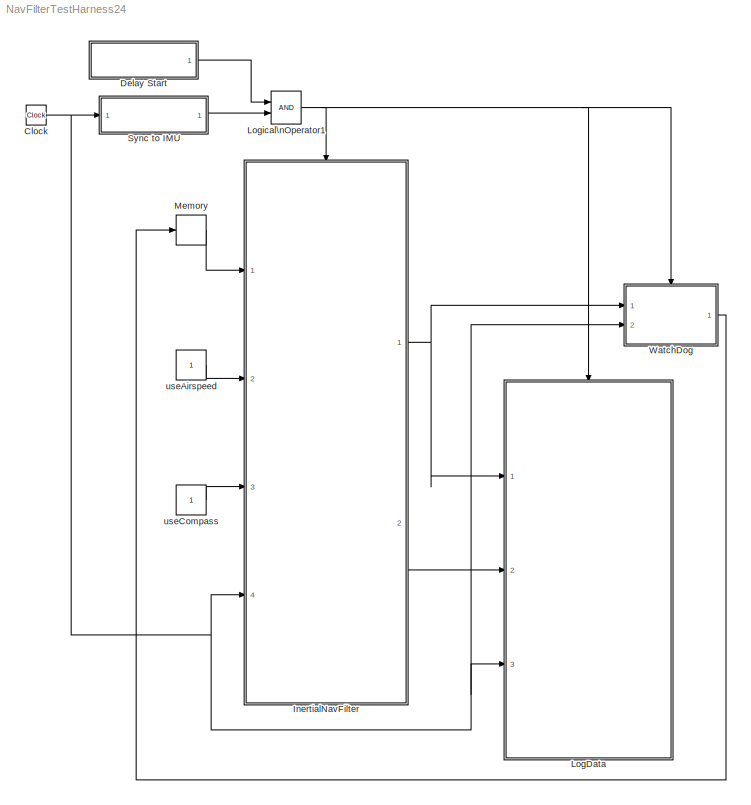
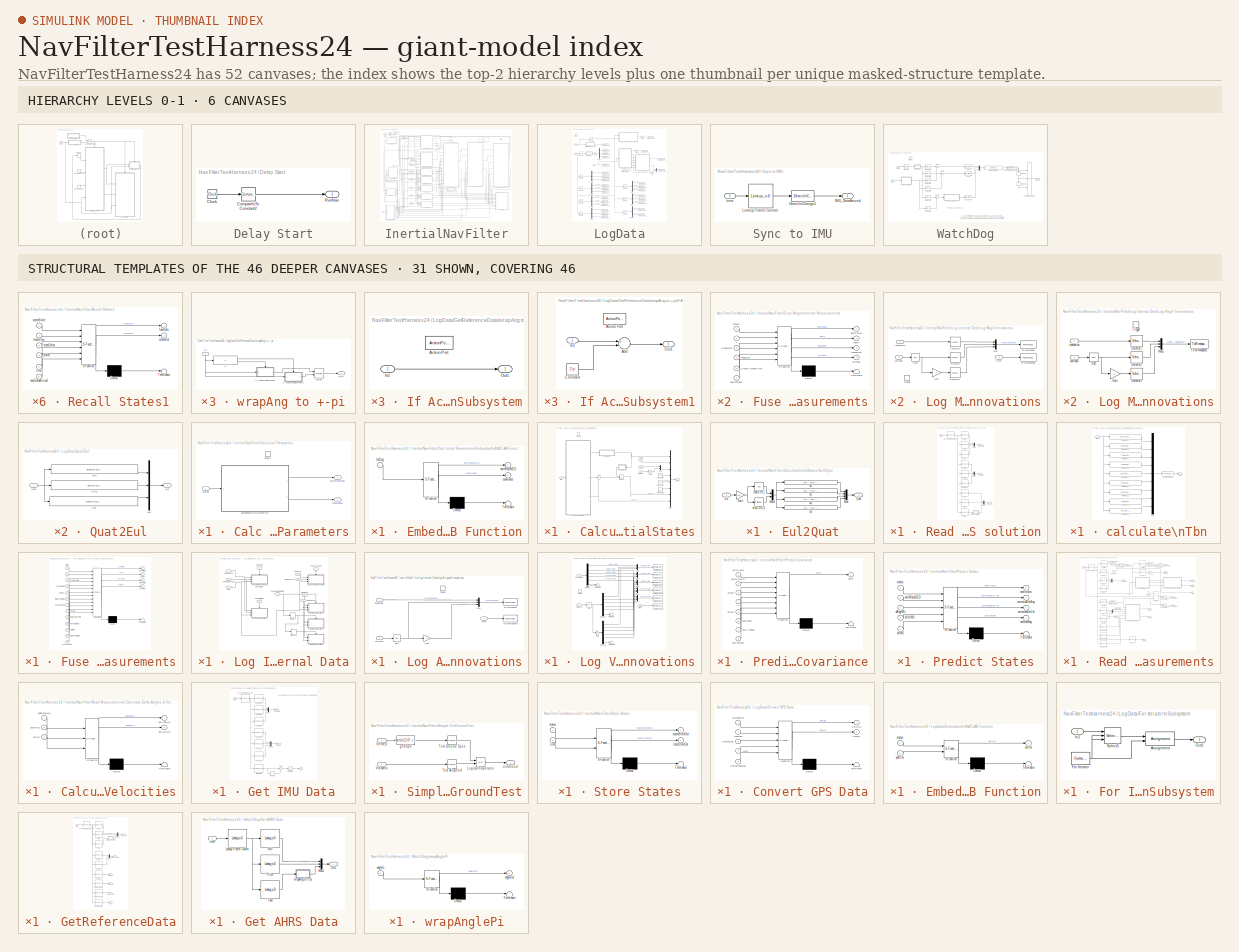
[diagram: thumbnail index - top-2 hierarchy levels (6 canvases) + 31 structural-template representatives of the remaining 46 canvases]
MODEL NavFilterTestHarness24
KIND model
BLOCK [Clock] Clock
  SID = 1708
BLOCK [SubSystem] Delay Start
  FunctionWithSeparateData = off
  MaskEnableString = on
  MaskHideContents = off
  MaskIconFrame = on
  MaskIconOpaque = on
  MaskIconRotate = none
  MaskIconUnits = autoscale
  MaskPortRotate = default
  MaskPromptString = Nav Start Time
  MaskStyleString = edit
  MaskToolTipString = on
  MaskTunableValueString = on
  MaskValueString = alignTime
  MaskVariables = navStartTime=@1;
  MaskVisibilityString = on
  MinAlgLoopOccurrences = off
  Opaque = off
  Ports = [0, 1]
  PropExecContextOutsideSubsystem = off
  RTWSystemCode = Auto
  RequestExecContextInheritance = off
  SID = 716
  TreatAsAtomicUnit = on
BLOCK [Clock] Delay Start/Clock
  SID = 370
BLOCK [Reference] Delay Start/Compare\nTo Constant2  REF=simulink/Logic and Bit\nOperations/Compare\nTo Constant
  OutDataTypeStr = boolean
  Ports = [1, 1]
  SID = 408
  SourceBlock = simulink/Logic and Bit\nOperations/Compare\nTo Constant
  SourceType = Compare To Constant
  ZeroCross = on
  const = navStartTime
  relop = >
BLOCK [Outport] Delay Start/RunNav
  IconDisplay = Port number
  SID = 717
BLOCK [SubSystem] InertialNavFilter
  FunctionWithSeparateData = off
  MaskHideContents = off
  MinAlgLoopOccurrences = off
  Opaque = off
  Ports = [4, 2, 0, 1]
  PropExecContextOutsideSubsystem = off
  RTWSystemCode = Auto
  RequestExecContextInheritance = off
  SID = 522
BLOCK [SubSystem] InertialNavFilter/Calc Initial Parameters
  FunctionWithSeparateData = off
  MaskHideContents = off
  MinAlgLoopOccurrences = off
  Opaque = off
  Ports = [1, 2, 1]
  PropExecContextOutsideSubsystem = off
  RTWSystemCode = Auto
  RequestExecContextInheritance = off
  SID = 548
BLOCK [SubSystem] InertialNavFilter/Calc Initial Parameters/Embedded\nMATLAB Function
  ErrorFcn = Stateflow.Translate.translate
  FunctionWithSeparateData = off
  MaskDescription = Embedded MATLAB block
  MaskDisplay = bgColor = Simulink.Root.ColorString2Rgb(get_param(gcbh, 'BackgroundColor')); image(imread('private/eml_membrane_16.png','png','BackgroundColor',bgColor(1:3)),'center'); disp([10 10 'calculateInitialData']);
  MaskHideContents = off
  MaskIconFrame = on
  MaskIconOpaque = off
  MaskIconRotate = none
  MaskIconUnits = normalized
  MaskPortRotate = default
  MaskSelfModifiable = on
  MaskType = Stateflow
  MinAlgLoopOccurrences = off
  Opaque = off
  PermitHierarchicalResolution = ExplicitOnly
  Ports = [1, 2]
  PropExecContextOutsideSubsystem = off
  RTWSystemCode = Auto
  RequestExecContextInheritance = off
  SFBlockType = MATLAB Function
  SID = 551
  TreatAsAtomicUnit = on
BLOCK [Demux] InertialNavFilter/Calc Initial Parameters/Embedded\nMATLAB Function/ Demux 
  Outputs = 1
  Ports = [1, 1]
  SID = 551::58
BLOCK [S-Function] InertialNavFilter/Calc Initial Parameters/Embedded\nMATLAB Function/ SFunction 
  EnableBusSupport = on
  FunctionName = sf_sfun
  PortCounts = [1 3]
  Ports = [1, 3]
  SID = 551::57
  Tag = Stateflow S-Function NavFilterTestHarness24 6
BLOCK [Terminator] InertialNavFilter/Calc Initial Parameters/Embedded\nMATLAB Function/ Terminator 
  SID = 551::60
BLOCK [Outport] InertialNavFilter/Calc Initial Parameters/Embedded\nMATLAB Function/covariance
  IconDisplay = Port number
  Port = 2
  SID = 551::7
BLOCK [Outport] InertialNavFilter/Calc Initial Parameters/Embedded\nMATLAB Function/earthRateNED
  IconDisplay = Port number
  SID = 551::34
BLOCK [Inport] InertialNavFilter/Calc Initial Parameters/Embedded\nMATLAB Function/latDeg
  IconDisplay = Port number
  SID = 551::35
BLOCK [EnablePort] InertialNavFilter/Calc Initial Parameters/Enable
  Ports = []
  SID = 1886
BLOCK [Outport] InertialNavFilter/Calc Initial Parameters/covariance
  IconDisplay = Port number
  Port = 2
  SID = 559
BLOCK [Outport] InertialNavFilter/Calc Initial Parameters/earthRateNED
  IconDisplay = Port number
  PortDimensions = 3
  SID = 561
BLOCK [Inport] InertialNavFilter/Calc Initial Parameters/latDeg
  IconDisplay = Port number
  OutDataTypeStr = single
  PortDimensions = 1
  SID = 1284
BLOCK [SubSystem] InertialNavFilter/CalculateInitialStates
  FunctionWithSeparateData = off
  MaskHideContents = off
  MinAlgLoopOccurrences = off
  Opaque = off
  Ports = [4, 1, 1]
  PropExecContextOutsideSubsystem = off
  RTWSystemCode = Auto
  RequestExecContextInheritance = off
  SID = 1549
  TreatAsAtomicUnit = on
BLOCK [Constant] InertialNavFilter/CalculateInitialStates/Constant1
  OutDataTypeStr = single
  SID = 1557
  Value = [0 0 0]
BLOCK [Constant] InertialNavFilter/CalculateInitialStates/Constant2
  OutDataTypeStr = single
  SID = 1558
  Value = [0 0 0]
BLOCK [EnablePort] InertialNavFilter/CalculateInitialStates/Enable
  Ports = []
  SID = 1556
BLOCK [SubSystem] InertialNavFilter/CalculateInitialStates/Eul2Quat
  FunctionWithSeparateData = off
  MaskHideContents = off
  MinAlgLoopOccurrences = off
  Opaque = off
  Ports = [1, 1]
  PropExecContextOutsideSubsystem = off
  RTWSystemCode = Auto
  RequestExecContextInheritance = off
  SID = 1559
BLOCK [Inport] InertialNavFilter/CalculateInitialStates/Eul2Quat/Eul
  IconDisplay = Port number
  SID = 1560
BLOCK [Gain] InertialNavFilter/CalculateInitialStates/Eul2Quat/Gain
  Gain = 0.5
  SID = 1561
BLOCK [Mux] InertialNavFilter/CalculateInitialStates/Eul2Quat/Mux
  DisplayOption = bar
  Ports = [4, 1]
  SID = 1562
BLOCK [Mux] InertialNavFilter/CalculateInitialStates/Eul2Quat/Mux1
  DisplayOption = bar
  Inputs = [3 3]
  Ports = [2, 1]
  SID = 1563
BLOCK [Outport] InertialNavFilter/CalculateInitialStates/Eul2Quat/Quat
  IconDisplay = Port number
  SID = 1570
BLOCK [Trigonometry] InertialNavFilter/CalculateInitialStates/Eul2Quat/cos(0.5*E)
  Operator = cos
  Ports = [1, 1]
  SID = 1564
BLOCK [Fcn] InertialNavFilter/CalculateInitialStates/Eul2Quat/q0
  Expr = u[1] * u[2] * u[3] + u[4] * u[5] * u[6]
  SID = 1565
BLOCK [Fcn] InertialNavFilter/CalculateInitialStates/Eul2Quat/q1
  Expr = u[4] * u[2] * u[3] - u[1] * u[5] * u[6]
  SID = 1566
BLOCK [Fcn] InertialNavFilter/CalculateInitialStates/Eul2Quat/q2
  Expr = u[1] * u[5] * u[3] + u[4] * u[2] * u[6]
  SID = 1567
BLOCK [Fcn] InertialNavFilter/CalculateInitialStates/Eul2Quat/q3
  Expr = u[1] * u[2] * u[6] - u[4] * u[5] * u[3]
  SID = 1568
BLOCK [Trigonometry] InertialNavFilter/CalculateInitialStates/Eul2Quat/sin(0.5*E)1
  Ports = [1, 1]
  SID = 1569
BLOCK [Gain] InertialNavFilter/CalculateInitialStates/Gain
  Gain = -1
  OutDataTypeStr = Inherit: Inherit via internal rule
  ParamDataTypeStr = Inherit: Inherit via internal rule
  SID = 1571
  SaturateOnIntegerOverflow = off
BLOCK [Inport] InertialNavFilter/CalculateInitialStates/HgtMea
  IconDisplay = Port number
  SID = 1551
BLOCK [Mux] InertialNavFilter/CalculateInitialStates/Mux
  DisplayOption = bar
  Inputs = 2
  Ports = [2, 1]
  SID = 1572
BLOCK [Mux] InertialNavFilter/CalculateInitialStates/Mux1
  DisplayOption = bar
  Inputs = 8
  Ports = [8, 1]
  SID = 1573
BLOCK [Inport] InertialNavFilter/CalculateInitialStates/PosNE
  IconDisplay = Port number
  Port = 3
  SID = 1555
BLOCK [Product] InertialNavFilter/CalculateInitialStates/Product
  InputSameDT = off
  Multiplication = Matrix(*)
  OutDataTypeStr = Inherit: Inherit via internal rule
  Ports = [2, 1]
  SID = 1574
  SaturateOnIntegerOverflow = off
BLOCK [SubSystem] InertialNavFilter/CalculateInitialStates/Read AHRS solution
  FunctionWithSeparateData = off
  MaskHideContents = off
  MinAlgLoopOccurrences = off
  Opaque = off
  Ports = [1, 3]
  PropExecContextOutsideSubsystem = off
  RTWSystemCode = Auto
  RequestExecContextInheritance = off
  SID = 1733
  TreatAsAtomicUnit = on
BLOCK [Outport] InertialNavFilter/CalculateInitialStates/Read AHRS solution/EulAHRS
  IconDisplay = Port number
  OutDataTypeStr = single
  SID = 1788
BLOCK [Lookup_n-D] InertialNavFilter/CalculateInitialStates/Read AHRS solution/Lookup Frame Counter
  BeginIndexSearchUsingPreviousIndexResult = on
  BreakpointsForDimension1 = IMUtime
  DiagnosticForOutOfRangeInput = Error
  InterpMethod = Flat
  NumberOfTableDimensions = 1
  Ports = [1, 1]
  RndMeth = Simplest
  SID = 1753
  Table = IMUframe
BLOCK [Outport] InertialNavFilter/CalculateInitialStates/Read AHRS solution/MagBias
  IconDisplay = Port number
  OutDataTypeStr = single
  Port = 3
  SID = 1789
BLOCK [Lookup_n-D] InertialNavFilter/CalculateInitialStates/Read AHRS solution/MagBiasX
  BeginIndexSearchUsingPreviousIndexResult = on
  BreakpointsForDimension1 = MAGframe
  InterpMethod = Flat
  NumberOfTableDimensions = 1
  OutDataTypeStr = single
  Ports = [1, 1]
  RndMeth = Simplest
  SID = 1754
  Table = MagBiasX
BLOCK [Lookup_n-D] InertialNavFilter/CalculateInitialStates/Read AHRS solution/MagBiasY
  BeginIndexSearchUsingPreviousIndexResult = on
  BreakpointsForDimension1 = MAGframe
  InterpMethod = Flat
  NumberOfTableDimensions = 1
  OutDataTypeStr = single
  Ports = [1, 1]
  RndMeth = Simplest
  SID = 1755
  Table = MagBiasY
BLOCK [Lookup_n-D] InertialNavFilter/CalculateInitialStates/Read AHRS solution/MagBiasZ
  BeginIndexSearchUsingPreviousIndexResult = on
  BreakpointsForDimension1 = MAGframe
  InterpMethod = Flat
  NumberOfTableDimensions = 1
  OutDataTypeStr = single
  Ports = [1, 1]
  RndMeth = Simplest
  SID = 1756
  Table = MagBiasZ
BLOCK [Outport] InertialNavFilter/CalculateInitialStates/Read AHRS solution/MagData
  IconDisplay = Port number
  OutDataTypeStr = single
  Port = 2
  SID = 1796
BLOCK [Lookup_n-D] InertialNavFilter/CalculateInitialStates/Read AHRS solution/MagX
  BeginIndexSearchUsingPreviousIndexResult = on
  BreakpointsForDimension1 = MAGframe
  InterpMethod = Flat
  NumberOfTableDimensions = 1
  OutDataTypeStr = single
  Ports = [1, 1]
  RndMeth = Simplest
  SID = 1757
  Table = MagX
BLOCK [Lookup_n-D] InertialNavFilter/CalculateInitialStates/Read AHRS solution/MagY
  BeginIndexSearchUsingPreviousIndexResult = on
  BreakpointsForDimension1 = MAGframe
  InterpMethod = Flat
  NumberOfTableDimensions = 1
  OutDataTypeStr = single
  Ports = [1, 1]
  RndMeth = Simplest
  SID = 1758
  Table = MagY
BLOCK [Lookup_n-D] InertialNavFilter/CalculateInitialStates/Read AHRS solution/MagZ
  BeginIndexSearchUsingPreviousIndexResult = on
  BreakpointsForDimension1 = MAGframe
  InterpMethod = Flat
  NumberOfTableDimensions = 1
  OutDataTypeStr = single
  Ports = [1, 1]
  RndMeth = Simplest
  SID = 1759
  Table = MagZ
BLOCK [Mux] InertialNavFilter/CalculateInitialStates/Read AHRS solution/Mux4
  DisplayOption = bar
  Inputs = 3
  Ports = [3, 1]
  SID = 1763
BLOCK [Mux] InertialNavFilter/CalculateInitialStates/Read AHRS solution/Mux5
  DisplayOption = bar
  Inputs = 3
  Ports = [3, 1]
  SID = 1764
BLOCK [Mux] InertialNavFilter/CalculateInitialStates/Read AHRS solution/Mux6
  DisplayOption = bar
  Inputs = 3
  Ports = [3, 1]
  SID = 1765
BLOCK [Lookup_n-D] InertialNavFilter/CalculateInitialStates/Read AHRS solution/Pitch
  BeginIndexSearchUsingPreviousIndexResult = on
  BreakpointsForDimension1 = ATTframe
  InterpMethod = Flat
  NumberOfTableDimensions = 1
  OutDataTypeStr = single
  Ports = [1, 1]
  RndMeth = Simplest
  SID = 1767
  Table = Pitch
BLOCK [Lookup_n-D] InertialNavFilter/CalculateInitialStates/Read AHRS solution/Roll
  BeginIndexSearchUsingPreviousIndexResult = on
  BreakpointsForDimension1 = ATTframe
  InterpMethod = Flat
  NumberOfTableDimensions = 1
  OutDataTypeStr = single
  Ports = [1, 1]
  RndMeth = Simplest
  SID = 1769
  Table = Roll
BLOCK [Lookup_n-D] InertialNavFilter/CalculateInitialStates/Read AHRS solution/Yaw
  BeginIndexSearchUsingPreviousIndexResult = on
  BreakpointsForDimension1 = ATTframe
  InterpMethod = Flat
  NumberOfTableDimensions = 1
  OutDataTypeStr = single
  Ports = [1, 1]
  RndMeth = Simplest
  SID = 1772
  Table = Yaw
BLOCK [Inport] InertialNavFilter/CalculateInitialStates/Read AHRS solution/time
  IconDisplay = Port number
  SID = 1734
BLOCK [SubSystem] InertialNavFilter/CalculateInitialStates/Read AHRS solution/wrapAng to +-pi
  FunctionWithSeparateData = off
  MaskHideContents = off
  MinAlgLoopOccurrences = off
  Opaque = off
  Ports = [1, 1]
  PropExecContextOutsideSubsystem = off
  RTWSystemCode = Auto
  RequestExecContextInheritance = off
  SID = 1773
BLOCK [If] InertialNavFilter/CalculateInitialStates/Read AHRS solution/wrapAng to +-pi/If
  IfExpression = u1 > single(pi)
  Ports = [1, 2]
  SID = 1775
BLOCK [SubSystem] InertialNavFilter/CalculateInitialStates/Read AHRS solution/wrapAng to +-pi/If Action\nSubsystem
  FunctionWithSeparateData = off
  MaskHideContents = off
  MinAlgLoopOccurrences = off
  Opaque = off
  Ports = [1, 1, 0, 0, 0, 0, 0, 1]
  PropExecContextOutsideSubsystem = off
  RTWSystemCode = Auto
  RequestExecContextInheritance = off
  SID = 1776
  TreatAsAtomicUnit = on
BLOCK [ActionPort] InertialNavFilter/CalculateInitialStates/Read AHRS solution/wrapAng to +-pi/If Action\nSubsystem/Action Port
  ActionType = else
  SID = 1778
BLOCK [Inport] InertialNavFilter/CalculateInitialStates/Read AHRS solution/wrapAng to +-pi/If Action\nSubsystem/In1
  IconDisplay = Port number
  SID = 1777
BLOCK [Outport] InertialNavFilter/CalculateInitialStates/Read AHRS solution/wrapAng to +-pi/If Action\nSubsystem/Out1
  IconDisplay = Port number
  SID = 1779
BLOCK [SubSystem] InertialNavFilter/CalculateInitialStates/Read AHRS solution/wrapAng to +-pi/If Action\nSubsystem1
  FunctionWithSeparateData = off
  MaskHideContents = off
  MinAlgLoopOccurrences = off
  Opaque = off
  Ports = [1, 1, 0, 0, 0, 0, 0, 1]
  PropExecContextOutsideSubsystem = off
  RTWSystemCode = Auto
  RequestExecContextInheritance = off
  SID = 1780
  TreatAsAtomicUnit = on
BLOCK [ActionPort] InertialNavFilter/CalculateInitialStates/Read AHRS solution/wrapAng to +-pi/If Action\nSubsystem1/Action Port
  ActionType = then
  SID = 1782
BLOCK [Sum] InertialNavFilter/CalculateInitialStates/Read AHRS solution/wrapAng to +-pi/If Action\nSubsystem1/Add
  InputSameDT = off
  Inputs = +-
  OutDataTypeStr = Inherit: Inherit via internal rule
  Ports = [2, 1]
  SID = 1783
  SaturateOnIntegerOverflow = off
BLOCK [Constant] InertialNavFilter/CalculateInitialStates/Read AHRS solution/wrapAng to +-pi/If Action\nSubsystem1/Constant
  OutDataTypeStr = single
  SID = 1784
  Value = 2*pi
BLOCK [Inport] InertialNavFilter/CalculateInitialStates/Read AHRS solution/wrapAng to +-pi/If Action\nSubsystem1/In1
  IconDisplay = Port number
  SID = 1781
BLOCK [Outport] InertialNavFilter/CalculateInitialStates/Read AHRS solution/wrapAng to +-pi/If Action\nSubsystem1/Out1
  IconDisplay = Port number
  SID = 1785
BLOCK [Inport] InertialNavFilter/CalculateInitialStates/Read AHRS solution/wrapAng to +-pi/In1
  IconDisplay = Port number
  OutDataTypeStr = single
  SID = 1774
BLOCK [Merge] InertialNavFilter/CalculateInitialStates/Read AHRS solution/wrapAng to +-pi/Merge
  Ports = [2, 1]
  SID = 1786
BLOCK [Outport] InertialNavFilter/CalculateInitialStates/Read AHRS solution/wrapAng to +-pi/Out1
  IconDisplay = Port number
  OutDataTypeStr = single
  SID = 1787
BLOCK [Outport] InertialNavFilter/CalculateInitialStates/States
  IconDisplay = Port number
  SID = 1591
BLOCK [Sum] InertialNavFilter/CalculateInitialStates/Sum
  IconShape = round
  InputSameDT = off
  Inputs = |+-
  OutDataTypeStr = Inherit: Inherit via internal rule
  Ports = [2, 1]
  SID = 1575
  SaturateOnIntegerOverflow = off
BLOCK [Inport] InertialNavFilter/CalculateInitialStates/VelNED
  IconDisplay = Port number
  OutDataTypeStr = single
  Port = 2
  SID = 1554
BLOCK [SubSystem] InertialNavFilter/CalculateInitialStates/calculate\nTbn
  FunctionWithSeparateData = off
  MaskHideContents = off
  MinAlgLoopOccurrences = off
  Opaque = off
  Ports = [1, 1]
  PropExecContextOutsideSubsystem = off
  RTWSystemCode = Auto
  RequestExecContextInheritance = off
  SID = 1576
BLOCK [Reshape] InertialNavFilter/CalculateInitialStates/calculate\nTbn/Asssign to Rows
  OutputDimensionality = Customize
  OutputDimensions = [3,3]
  Ports = [1, 1]
  SID = 1578
BLOCK [Mux] InertialNavFilter/CalculateInitialStates/calculate\nTbn/Mux
  DisplayOption = bar
  Inputs = 9
  Ports = [9, 1]
  SID = 1579
BLOCK [Inport] InertialNavFilter/CalculateInitialStates/calculate\nTbn/Quat
  IconDisplay = Port number
  PortDimensions = 4
  SID = 1577
BLOCK [Outport] InertialNavFilter/CalculateInitialStates/calculate\nTbn/Tbn
  IconDisplay = Port number
  SID = 1589
BLOCK [Fcn] InertialNavFilter/CalculateInitialStates/calculate\nTbn/element 1_1
  Expr = u(1)^2+u(2)^2-u(3)^2-u(4)^2
  SID = 1580
BLOCK [Fcn] InertialNavFilter/CalculateInitialStates/calculate\nTbn/element 1_2
  Expr = 2*(u(2)*u(3)-u(1)*u(4))
  SID = 1581
BLOCK [Fcn] InertialNavFilter/CalculateInitialStates/calculate\nTbn/element 1_3
  Expr = 2*(u(2)*u(4)+u(1)*u(3))
  SID = 1582
BLOCK [Fcn] InertialNavFilter/CalculateInitialStates/calculate\nTbn/element 2_1
  Expr = 2*(u(2)*u(3)+u(1)*u(4))
  SID = 1583
BLOCK [Fcn] InertialNavFilter/CalculateInitialStates/calculate\nTbn/element 2_2
  Expr = u(1)^2-u(2)^2+u(3)^2-u(4)^2
  SID = 1584
BLOCK [Fcn] InertialNavFilter/CalculateInitialStates/calculate\nTbn/element 2_3
  Expr = 2*(u(3)*u(4)-u(1)*u(2))
  SID = 1585
BLOCK [Fcn] InertialNavFilter/CalculateInitialStates/calculate\nTbn/element 3_1
  Expr = 2*(u(2)*u(4)-u(1)*u(3))
  SID = 1586
BLOCK [Fcn] InertialNavFilter/CalculateInitialStates/calculate\nTbn/element 3_2
  Expr = 2*(u(3)*u(4)+u(1)*u(2))
  SID = 1587
BLOCK [Fcn] InertialNavFilter/CalculateInitialStates/calculate\nTbn/element 3_3
  Expr = u(1)^2-u(2)^2-u(3)^2+u(4)^2
  SID = 1588
BLOCK [Inport] InertialNavFilter/CalculateInitialStates/time
  IconDisplay = Port number
  Port = 4
  SID = 1800
BLOCK [Constant] InertialNavFilter/CalculateInitialStates/windVelNE
  OutDataTypeStr = single
  SID = 1590
  Value = [0 0]
BLOCK [Constant] InertialNavFilter/Constant
  OutDataTypeStr = boolean
  SID = 1870
  Value = 0
BLOCK [Outport] InertialNavFilter/Covariance
  IconDisplay = Port number
  OutDataTypeStr = single
  Port = 2
  PortDimensions = [24,24]
  SID = 889
BLOCK [Reference] InertialNavFilter/DocBlock  REF=simulink/Model-Wide\nUtilities/DocBlock
  DocumentType = Text
  Ports = []
  SID = 1312
  SourceBlock = simulink/Model-Wide\nUtilities/DocBlock
  SourceType = DocBlock
  UserData = DataTag0
  UserDataPersistent = on
BLOCK [SubSystem] InertialNavFilter/Fuse Magnetometer Measurements
  ErrorFcn = Stateflow.Translate.translate
  FunctionWithSeparateData = off
  MaskDescription = Embedded MATLAB block
  MaskDisplay = bgColor = Simulink.Root.ColorString2Rgb(get_param(gcbh, 'BackgroundColor')); image(imread('private/eml_membrane_16.png','png','BackgroundColor',bgColor(1:3)),'center'); disp([10 10 'FuseMagnetometer']);
  MaskHideContents = off
  MaskIconFrame = on
  MaskIconOpaque = off
  MaskIconRotate = none
  MaskIconUnits = normalized
  MaskPortRotate = default
  MaskSelfModifiable = on
  MaskType = Stateflow
  MinAlgLoopOccurrences = off
  Opaque = off
  PermitHierarchicalResolution = ExplicitOnly
  Ports = [6, 4]
  PropExecContextOutsideSubsystem = off
  RTWSystemCode = Auto
  RequestExecContextInheritance = off
  SFBlockType = MATLAB Function
  SID = 830
  TreatAsAtomicUnit = on
BLOCK [Demux] InertialNavFilter/Fuse Magnetometer Measurements/ Demux 
  Outputs = 1
  Ports = [1, 1]
  SID = 830::100
BLOCK [S-Function] InertialNavFilter/Fuse Magnetometer Measurements/ SFunction 
  EnableBusSupport = on
  FunctionName = sf_sfun
  PortCounts = [6 5]
  Ports = [6, 5]
  SID = 830::99
  Tag = Stateflow S-Function NavFilterTestHarness24 9
BLOCK [Terminator] InertialNavFilter/Fuse Magnetometer Measurements/ Terminator 
  SID = 830::102
BLOCK [Inport] InertialNavFilter/Fuse Magnetometer Measurements/FuseData
  IconDisplay = Port number
  Port = 3
  SID = 830::18
BLOCK [Inport] InertialNavFilter/Fuse Magnetometer Measurements/MagData
  IconDisplay = Port number
  Port = 4
  SID = 830::20
BLOCK [Inport] InertialNavFilter/Fuse Magnetometer Measurements/P
  IconDisplay = Port number
  Port = 2
  SID = 830::3
BLOCK [Inport] InertialNavFilter/Fuse Magnetometer Measurements/StatesAtMeasTime
  IconDisplay = Port number
  Port = 5
  SID = 830::98
BLOCK [Outport] InertialNavFilter/Fuse Magnetometer Measurements/innovation
  IconDisplay = Port number
  Port = 3
  SID = 830::43
BLOCK [Outport] InertialNavFilter/Fuse Magnetometer Measurements/nextP
  IconDisplay = Port number
  Port = 2
  SID = 830::10
BLOCK [Outport] InertialNavFilter/Fuse Magnetometer Measurements/nextStates
  IconDisplay = Port number
  SID = 830::9
BLOCK [Inport] InertialNavFilter/Fuse Magnetometer Measurements/states
  IconDisplay = Port number
  SID = 830::2
BLOCK [Inport] InertialNavFilter/Fuse Magnetometer Measurements/useCompass
  IconDisplay = Port number
  Port = 6
  SID = 830::93
BLOCK [Outport] InertialNavFilter/Fuse Magnetometer Measurements/varInnov
  IconDisplay = Port number
  Port = 4
  SID = 830::82
BLOCK [SubSystem] InertialNavFilter/Fuse True Airspeed Measurements
  ErrorFcn = Stateflow.Translate.translate
  FunctionWithSeparateData = off
  MaskDescription = Embedded MATLAB block
  MaskDisplay = bgColor = Simulink.Root.ColorString2Rgb(get_param(gcbh, 'BackgroundColor')); image(imread('private/eml_membrane_16.png','png','BackgroundColor',bgColor(1:3)),'center'); disp([10 10 'FuseAirspeed']);
  MaskHideContents = off
  MaskIconFrame = on
  MaskIconOpaque = off
  MaskIconRotate = none
  MaskIconUnits = normalized
  MaskPortRotate = default
  MaskSelfModifiable = on
  MaskType = Stateflow
  MinAlgLoopOccurrences = off
  Opaque = off
  PermitHierarchicalResolution = ExplicitOnly
  Ports = [6, 4]
  PropExecContextOutsideSubsystem = off
  RTWSystemCode = Auto
  RequestExecContextInheritance = off
  SFBlockType = MATLAB Function
  SID = 710
  TreatAsAtomicUnit = on
BLOCK [Demux] InertialNavFilter/Fuse True Airspeed Measurements/ Demux 
  Outputs = 1
  Ports = [1, 1]
  SID = 710::98
BLOCK [S-Function] InertialNavFilter/Fuse True Airspeed Measurements/ SFunction 
  EnableBusSupport = on
  FunctionName = sf_sfun
  PortCounts = [6 5]
  Ports = [6, 5]
  SID = 710::97
  Tag = Stateflow S-Function NavFilterTestHarness24 4
BLOCK [Terminator] InertialNavFilter/Fuse True Airspeed Measurements/ Terminator 
  SID = 710::100
BLOCK [Inport] InertialNavFilter/Fuse True Airspeed Measurements/FuseData
  IconDisplay = Port number
  Port = 3
  SID = 710::18
BLOCK [Inport] InertialNavFilter/Fuse True Airspeed Measurements/P
  IconDisplay = Port number
  Port = 2
  SID = 710::3
BLOCK [Inport] InertialNavFilter/Fuse True Airspeed Measurements/StatesAtMeasTime
  IconDisplay = Port number
  Port = 5
  SID = 710::82
BLOCK [Inport] InertialNavFilter/Fuse True Airspeed Measurements/VtasMea
  IconDisplay = Port number
  Port = 4
  SID = 710::20
BLOCK [Outport] InertialNavFilter/Fuse True Airspeed Measurements/innovation
  IconDisplay = Port number
  Port = 3
  SID = 710::43
BLOCK [Outport] InertialNavFilter/Fuse True Airspeed Measurements/nextP
  IconDisplay = Port number
  Port = 2
  SID = 710::10
BLOCK [Outport] InertialNavFilter/Fuse True Airspeed Measurements/nextStates
  IconDisplay = Port number
  SID = 710::9
BLOCK [Inport] InertialNavFilter/Fuse True Airspeed Measurements/states
  IconDisplay = Port number
  SID = 710::2
BLOCK [Inport] InertialNavFilter/Fuse True Airspeed Measurements/useAirspeed
  IconDisplay = Port number
  Port = 6
  SID = 710::92
BLOCK [Outport] InertialNavFilter/Fuse True Airspeed Measurements/varInnov
  IconDisplay = Port number
  Port = 4
  SID = 710::83
BLOCK [SubSystem] InertialNavFilter/Fuse Vel Pos Measurements
  ErrorFcn = Stateflow.Translate.translate
  FunctionWithSeparateData = off
  MaskDescription = Embedded MATLAB block
  MaskDisplay = bgColor = Simulink.Root.ColorString2Rgb(get_param(gcbh, 'BackgroundColor')); image(imread('private/eml_membrane_16.png','png','BackgroundColor',bgColor(1:3)),'center'); disp([10 10 'FuseVelPosNED']);
  MaskHideContents = off
  MaskIconFrame = on
  MaskIconOpaque = off
  MaskIconRotate = none
  MaskIconUnits = normalized
  MaskPortRotate = default
  MaskSelfModifiable = on
  MaskType = Stateflow
  MinAlgLoopOccurrences = off
  Opaque = off
  PermitHierarchicalResolution = ExplicitOnly
  Ports = [13, 4]
  PropExecContextOutsideSubsystem = off
  RTWSystemCode = Auto
  RequestExecContextInheritance = off
  SFBlockType = MATLAB Function
  SID = 645
  TreatAsAtomicUnit = on
BLOCK [Demux] InertialNavFilter/Fuse Vel Pos Measurements/ Demux 
  Outputs = 1
  Ports = [1, 1]
  SID = 645::110
BLOCK [S-Function] InertialNavFilter/Fuse Vel Pos Measurements/ SFunction 
  EnableBusSupport = on
  FunctionName = sf_sfun
  PortCounts = [13 5]
  Ports = [13, 5]
  SID = 645::109
  Tag = Stateflow S-Function NavFilterTestHarness24 19
BLOCK [Terminator] InertialNavFilter/Fuse Vel Pos Measurements/ Terminator 
  SID = 645::112
BLOCK [Inport] InertialNavFilter/Fuse Vel Pos Measurements/FuseHgtData
  IconDisplay = Port number
  Port = 10
  SID = 645::94
BLOCK [Inport] InertialNavFilter/Fuse Vel Pos Measurements/FusePosData
  IconDisplay = Port number
  Port = 7
  SID = 645::114
BLOCK [Inport] InertialNavFilter/Fuse Vel Pos Measurements/FuseVelData
  IconDisplay = Port number
  Port = 4
  SID = 645::85
BLOCK [Inport] InertialNavFilter/Fuse Vel Pos Measurements/HgtMea
  IconDisplay = Port number
  Port = 11
  SID = 645::93
BLOCK [Inport] InertialNavFilter/Fuse Vel Pos Measurements/P
  IconDisplay = Port number
  Port = 2
  SID = 645::84
BLOCK [Inport] InertialNavFilter/Fuse Vel Pos Measurements/PosNE
  IconDisplay = Port number
  Port = 8
  SID = 645::87
BLOCK [Inport] InertialNavFilter/Fuse Vel Pos Measurements/StatesAtHgtTime
  IconDisplay = Port number
  Port = 12
  SID = 645::95
BLOCK [Inport] InertialNavFilter/Fuse Vel Pos Measurements/StatesAtPosTime
  IconDisplay = Port number
  Port = 9
  SID = 645::115
BLOCK [Inport] InertialNavFilter/Fuse Vel Pos Measurements/StatesAtVelTime
  IconDisplay = Port number
  Port = 6
  SID = 645::88
BLOCK [Inport] InertialNavFilter/Fuse Vel Pos Measurements/VelNED
  IconDisplay = Port number
  Port = 5
  SID = 645::86
BLOCK [Inport] InertialNavFilter/Fuse Vel Pos Measurements/accNavMag
  IconDisplay = Port number
  Port = 3
  SID = 645::96
BLOCK [Outport] InertialNavFilter/Fuse Vel Pos Measurements/innovation
  IconDisplay = Port number
  Port = 3
  SID = 645::91
BLOCK [Outport] InertialNavFilter/Fuse Vel Pos Measurements/nextP
  IconDisplay = Port number
  Port = 2
  SID = 645::90
BLOCK [Outport] InertialNavFilter/Fuse Vel Pos Measurements/nextStates
  IconDisplay = Port number
  SID = 645::89
BLOCK [Inport] InertialNavFilter/Fuse Vel Pos Measurements/states
  IconDisplay = Port number
  SID = 645::83
BLOCK [Inport] InertialNavFilter/Fuse Vel Pos Measurements/useAirspeed
  IconDisplay = Port number
  Port = 13
  SID = 645::113
BLOCK [Outport] InertialNavFilter/Fuse Vel Pos Measurements/varInnov
  IconDisplay = Port number
  Port = 4
  SID = 645::92
BLOCK [SubSystem] InertialNavFilter/Log Internal Data
  FunctionWithSeparateData = off
  MaskHideContents = off
  MinAlgLoopOccurrences = off
  Opaque = off
  Ports = [11]
  PropExecContextOutsideSubsystem = off
  RTWSystemCode = Auto
  RequestExecContextInheritance = off
  SID = 1432
BLOCK [Inport] InertialNavFilter/Log Internal Data/FuseAirspeed
  IconDisplay = Port number
  Port = 8
  SID = 1437
BLOCK [Inport] InertialNavFilter/Log Internal Data/FuseAltimeter
  IconDisplay = Port number
  Port = 2
  SID = 1443
BLOCK [Inport] InertialNavFilter/Log Internal Data/FuseGps
  IconDisplay = Port number
  SID = 1441
BLOCK [Inport] InertialNavFilter/Log Internal Data/FuseMagnetometer
  IconDisplay = Port number
  Port = 5
  SID = 1438
BLOCK [SubSystem] InertialNavFilter/Log Internal Data/Log Airspeed Innovations
  FunctionWithSeparateData = off
  MaskHideContents = off
  MinAlgLoopOccurrences = off
  Opaque = off
  Ports = [3, 0, 0, 1]
  PropExecContextOutsideSubsystem = off
  RTWSystemCode = Auto
  RequestExecContextInheritance = off
  SID = 763
BLOCK [Gain] InertialNavFilter/Log Internal Data/Log Airspeed Innovations/Gain
  Gain = -1
  OutDataTypeStr = Inherit: Inherit via internal rule
  ParamDataTypeStr = Inherit: Inherit via internal rule
  SID = 784
  SaturateOnIntegerOverflow = off
BLOCK [Mux] InertialNavFilter/Log Internal Data/Log Airspeed Innovations/Mux
  DisplayOption = bar
  Inputs = 3
  Ports = [3, 1]
  SID = 781
BLOCK [Sqrt] InertialNavFilter/Log Internal Data/Log Airspeed Innovations/Sqrt
  SID = 783
BLOCK [ToWorkspace] InertialNavFilter/Log Internal Data/Log Airspeed Innovations/To Workspace
  MaxDataPoints = inf
  Ports = [1]
  SID = 845
  SampleTime = -1
  VariableName = innovVtas
BLOCK [ToWorkspace] InertialNavFilter/Log Internal Data/Log Airspeed Innovations/To Workspace6
  MaxDataPoints = inf
  Ports = [1]
  SID = 885
  SampleTime = -1
  VariableName = time3
BLOCK [TriggerPort] InertialNavFilter/Log Internal Data/Log Airspeed Innovations/Trigger
  PortDimensions = 1
  Ports = []
  SID = 765
  StatesWhenEnabling = held
BLOCK [Inport] InertialNavFilter/Log Internal Data/Log Airspeed Innovations/innovation
  IconDisplay = Port number
  SID = 764
BLOCK [Inport] InertialNavFilter/Log Internal Data/Log Airspeed Innovations/time
  IconDisplay = Port number
  Port = 3
  SID = 884
BLOCK [Inport] InertialNavFilter/Log Internal Data/Log Airspeed Innovations/varInnov
  IconDisplay = Port number
  Port = 2
  SID = 780
BLOCK [SubSystem] InertialNavFilter/Log Internal Data/Log MagX Innovations
  FunctionWithSeparateData = off
  MaskHideContents = off
  MinAlgLoopOccurrences = off
  Opaque = off
  Ports = [3, 0, 0, 1]
  PropExecContextOutsideSubsystem = off
  RTWSystemCode = Auto
  RequestExecContextInheritance = off
  SID = 785
BLOCK [Gain] InertialNavFilter/Log Internal Data/Log MagX Innovations/Gain
  Gain = -1
  OutDataTypeStr = Inherit: Inherit via internal rule
  ParamDataTypeStr = Inherit: Inherit via internal rule
  SID = 792
  SaturateOnIntegerOverflow = off
BLOCK [Mux] InertialNavFilter/Log Internal Data/Log MagX Innovations/Mux
  DisplayOption = bar
  Inputs = 3
  Ports = [3, 1]
  SID = 793
BLOCK [Selector] InertialNavFilter/Log Internal Data/Log MagX Innovations/Selector
  IndexOptions = Index vector (dialog)
  Indices = 1
  InputPortWidth = 3
  OutputSizes = 1
  Ports = [1, 1]
  SID = 1349
BLOCK [Selector] InertialNavFilter/Log Internal Data/Log MagX Innovations/Selector1
  IndexOptions = Index vector (dialog)
  Indices = 1
  InputPortWidth = 3
  OutputSizes = 1
  Ports = [1, 1]
  SID = 1350
BLOCK [Selector] InertialNavFilter/Log Internal Data/Log MagX Innovations/Selector2
  IndexOptions = Index vector (dialog)
  Indices = 1
  InputPortWidth = 3
  OutputSizes = 1
  Ports = [1, 1]
  SID = 1351
BLOCK [Sqrt] InertialNavFilter/Log Internal Data/Log MagX Innovations/Sqrt
  SID = 800
BLOCK [ToWorkspace] InertialNavFilter/Log Internal Data/Log MagX Innovations/To Workspace
  MaxDataPoints = inf
  Ports = [1]
  SID = 842
  SampleTime = -1
  VariableName = innovMagX
BLOCK [ToWorkspace] InertialNavFilter/Log Internal Data/Log MagX Innovations/To Workspace6
  MaxDataPoints = inf
  Ports = [1]
  SID = 878
  SampleTime = -1
  VariableName = time2
BLOCK [TriggerPort] InertialNavFilter/Log Internal Data/Log MagX Innovations/Trigger
  PortDimensions = 1
  Ports = []
  SID = 788
  StatesWhenEnabling = held
BLOCK [Inport] InertialNavFilter/Log Internal Data/Log MagX Innovations/innovation
  IconDisplay = Port number
  SID = 786
BLOCK [Inport] InertialNavFilter/Log Internal Data/Log MagX Innovations/time
  IconDisplay = Port number
  Port = 3
  SID = 881
BLOCK [Inport] InertialNavFilter/Log Internal Data/Log MagX Innovations/varInnov
  IconDisplay = Port number
  Port = 2
  SID = 787
BLOCK [SubSystem] InertialNavFilter/Log Internal Data/Log MagY Innovations
  FunctionWithSeparateData = off
  MaskHideContents = off
  MinAlgLoopOccurrences = off
  Opaque = off
  Ports = [2, 0, 0, 1]
  PropExecContextOutsideSubsystem = off
  RTWSystemCode = Auto
  RequestExecContextInheritance = off
  SID = 1313
BLOCK [Gain] InertialNavFilter/Log Internal Data/Log MagY Innovations/Gain
  Gain = -1
  OutDataTypeStr = Inherit: Inherit via internal rule
  ParamDataTypeStr = Inherit: Inherit via internal rule
  SID = 1321
  SaturateOnIntegerOverflow = off
BLOCK [Mux] InertialNavFilter/Log Internal Data/Log MagY Innovations/Mux1
  DisplayOption = bar
  Inputs = 3
  Ports = [3, 1]
  SID = 1323
BLOCK [Selector] InertialNavFilter/Log Internal Data/Log MagY Innovations/Selector1
  IndexOptions = Index vector (dialog)
  Indices = 2
  InputPortWidth = 3
  OutputSizes = 1
  Ports = [1, 1]
  SID = 1355
BLOCK [Selector] InertialNavFilter/Log Internal Data/Log MagY Innovations/Selector2
  IndexOptions = Index vector (dialog)
  Indices = 2
  InputPortWidth = 3
  OutputSizes = 1
  Ports = [1, 1]
  SID = 1357
BLOCK [Selector] InertialNavFilter/Log Internal Data/Log MagY Innovations/Selector3
  IndexOptions = Index vector (dialog)
  Indices = 2
  InputPortWidth = 3
  OutputSizes = 1
  Ports = [1, 1]
  SID = 1358
BLOCK [Sqrt] InertialNavFilter/Log Internal Data/Log MagY Innovations/Sqrt
  SID = 1325
BLOCK [ToWorkspace] InertialNavFilter/Log Internal Data/Log MagY Innovations/To Workspace1
  MaxDataPoints = inf
  Ports = [1]
  SID = 1327
  SampleTime = -1
  VariableName = innovMagY
BLOCK [TriggerPort] InertialNavFilter/Log Internal Data/Log MagY Innovations/Trigger
  PortDimensions = 1
  Ports = []
  SID = 1317
  StatesWhenEnabling = held
BLOCK [Inport] InertialNavFilter/Log Internal Data/Log MagY Innovations/innovation
  IconDisplay = Port number
  SID = 1314
BLOCK [Inport] InertialNavFilter/Log Internal Data/Log MagY Innovations/varInnov
  IconDisplay = Port number
  Port = 2
  SID = 1315
BLOCK [SubSystem] InertialNavFilter/Log Internal Data/Log MagZ Innovations
  FunctionWithSeparateData = off
  MaskHideContents = off
  MinAlgLoopOccurrences = off
  Opaque = off
  Ports = [2, 0, 0, 1]
  PropExecContextOutsideSubsystem = off
  RTWSystemCode = Auto
  RequestExecContextInheritance = off
  SID = 1330
BLOCK [Gain] InertialNavFilter/Log Internal Data/Log MagZ Innovations/Gain
  Gain = -1
  OutDataTypeStr = Inherit: Inherit via internal rule
  ParamDataTypeStr = Inherit: Inherit via internal rule
  SID = 1338
  SaturateOnIntegerOverflow = off
BLOCK [Mux] InertialNavFilter/Log Internal Data/Log MagZ Innovations/Mux2
  DisplayOption = bar
  Inputs = 3
  Ports = [3, 1]
  SID = 1341
BLOCK [Selector] InertialNavFilter/Log Internal Data/Log MagZ Innovations/Selector1
  IndexOptions = Index vector (dialog)
  Indices = 3
  InputPortWidth = 3
  OutputSizes = 1
  Ports = [1, 1]
  SID = 1359
BLOCK [Selector] InertialNavFilter/Log Internal Data/Log MagZ Innovations/Selector2
  IndexOptions = Index vector (dialog)
  Indices = 3
  InputPortWidth = 3
  OutputSizes = 1
  Ports = [1, 1]
  SID = 1360
BLOCK [Selector] InertialNavFilter/Log Internal Data/Log MagZ Innovations/Selector3
  IndexOptions = Index vector (dialog)
  Indices = 3
  InputPortWidth = 3
  OutputSizes = 1
  Ports = [1, 1]
  SID = 1361
BLOCK [Sqrt] InertialNavFilter/Log Internal Data/Log MagZ Innovations/Sqrt
  SID = 1342
BLOCK [ToWorkspace] InertialNavFilter/Log Internal Data/Log MagZ Innovations/To Workspace2
  MaxDataPoints = inf
  Ports = [1]
  SID = 1345
  SampleTime = -1
  VariableName = innovMagZ
BLOCK [TriggerPort] InertialNavFilter/Log Internal Data/Log MagZ Innovations/Trigger
  PortDimensions = 1
  Ports = []
  SID = 1334
  StatesWhenEnabling = held
BLOCK [Inport] InertialNavFilter/Log Internal Data/Log MagZ Innovations/innovation
  IconDisplay = Port number
  SID = 1331
BLOCK [Inport] InertialNavFilter/Log Internal Data/Log MagZ Innovations/varInnov
  IconDisplay = Port number
  Port = 2
  SID = 1332
BLOCK [SubSystem] InertialNavFilter/Log Internal Data/Log PosD Innovations
  FunctionWithSeparateData = off
  MaskHideContents = off
  MinAlgLoopOccurrences = off
  Opaque = off
  Ports = [3, 0, 0, 1]
  PropExecContextOutsideSubsystem = off
  RTWSystemCode = Auto
  RequestExecContextInheritance = off
  SID = 1020
BLOCK [Gain] InertialNavFilter/Log Internal Data/Log PosD Innovations/Gain
  Gain = -1
  OutDataTypeStr = Inherit: Inherit via internal rule
  ParamDataTypeStr = Inherit: Inherit via internal rule
  SID = 1028
  SaturateOnIntegerOverflow = off
BLOCK [Mux] InertialNavFilter/Log Internal Data/Log PosD Innovations/Mux5
  DisplayOption = bar
  Inputs = 3
  Ports = [3, 1]
  SID = 1034
BLOCK [Selector] InertialNavFilter/Log Internal Data/Log PosD Innovations/Selector
  IndexOptions = Index vector (dialog)
  Indices = 6
  InputPortWidth = 6
  OutputSizes = 1
  Ports = [1, 1]
  SID = 1045
BLOCK [Selector] InertialNavFilter/Log Internal Data/Log PosD Innovations/Selector1
  IndexOptions = Index vector (dialog)
  Indices = 6
  InputPortWidth = 6
  OutputSizes = 1
  Ports = [1, 1]
  SID = 1046
BLOCK [Selector] InertialNavFilter/Log Internal Data/Log PosD Innovations/Selector2
  IndexOptions = Index vector (dialog)
  Indices = 6
  InputPortWidth = 6
  OutputSizes = 1
  Ports = [1, 1]
  SID = 1047
BLOCK [Sqrt] InertialNavFilter/Log Internal Data/Log PosD Innovations/Sqrt
  SID = 1035
BLOCK [ToWorkspace] InertialNavFilter/Log Internal Data/Log PosD Innovations/To Workspace5
  MaxDataPoints = inf
  Ports = [1]
  SID = 1041
  SampleTime = -1
  VariableName = innovPosD
BLOCK [ToWorkspace] InertialNavFilter/Log Internal Data/Log PosD Innovations/To Workspace6
  MaxDataPoints = inf
  Ports = [1]
  SID = 1042
  SampleTime = -1
  VariableName = time4
BLOCK [TriggerPort] InertialNavFilter/Log Internal Data/Log PosD Innovations/Trigger
  PortDimensions = 1
  Ports = []
  SID = 1024
  StatesWhenEnabling = held
BLOCK [Inport] InertialNavFilter/Log Internal Data/Log PosD Innovations/innovation
  IconDisplay = Port number
  SID = 1021
BLOCK [Inport] InertialNavFilter/Log Internal Data/Log PosD Innovations/time
  IconDisplay = Port number
  Port = 3
  SID = 1023
BLOCK [Inport] InertialNavFilter/Log Internal Data/Log PosD Innovations/varInnov
  IconDisplay = Port number
  Port = 2
  SID = 1022
BLOCK [SubSystem] InertialNavFilter/Log Internal Data/Log VelNED and PosNE Innovations
  FunctionWithSeparateData = off
  MaskHideContents = off
  MinAlgLoopOccurrences = off
  Opaque = off
  Ports = [3, 0, 0, 1]
  PropExecContextOutsideSubsystem = off
  RTWSystemCode = Auto
  RequestExecContextInheritance = off
  SID = 751
BLOCK [Demux] InertialNavFilter/Log Internal Data/Log VelNED and PosNE Innovations/Demux
  DisplayOption = bar
  Outputs = 6
  Ports = [1, 6]
  SID = 750
BLOCK [Demux] InertialNavFilter/Log Internal Data/Log VelNED and PosNE Innovations/Demux1
  DisplayOption = bar
  Outputs = 6
  Ports = [1, 6]
  SID = 770
BLOCK [Demux] InertialNavFilter/Log Internal Data/Log VelNED and PosNE Innovations/Demux2
  DisplayOption = bar
  Outputs = 6
  Ports = [1, 6]
  SID = 771
BLOCK [Gain] InertialNavFilter/Log Internal Data/Log VelNED and PosNE Innovations/Gain
  Gain = -1
  OutDataTypeStr = Inherit: Inherit via internal rule
  ParamDataTypeStr = Inherit: Inherit via internal rule
  SID = 772
  SaturateOnIntegerOverflow = off
BLOCK [Mux] InertialNavFilter/Log Internal Data/Log VelNED and PosNE Innovations/Mux
  DisplayOption = bar
  Inputs = 3
  Ports = [3, 1]
  SID = 773
BLOCK [Mux] InertialNavFilter/Log Internal Data/Log VelNED and PosNE Innovations/Mux1
  DisplayOption = bar
  Inputs = 3
  Ports = [3, 1]
  SID = 774
BLOCK [Mux] InertialNavFilter/Log Internal Data/Log VelNED and PosNE Innovations/Mux2
  DisplayOption = bar
  Inputs = 3
  Ports = [3, 1]
  SID = 775
BLOCK [Mux] InertialNavFilter/Log Internal Data/Log VelNED and PosNE Innovations/Mux3
  DisplayOption = bar
  Inputs = 3
  Ports = [3, 1]
  SID = 776
BLOCK [Mux] InertialNavFilter/Log Internal Data/Log VelNED and PosNE Innovations/Mux4
  DisplayOption = bar
  Inputs = 3
  Ports = [3, 1]
  SID = 777
BLOCK [Sqrt] InertialNavFilter/Log Internal Data/Log VelNED and PosNE Innovations/Sqrt
  SID = 769
BLOCK [Terminator] InertialNavFilter/Log Internal Data/Log VelNED and PosNE Innovations/Terminator
  SID = 1043
BLOCK [Terminator] InertialNavFilter/Log Internal Data/Log VelNED and PosNE Innovations/Terminator1
  SID = 1044
BLOCK [Terminator] InertialNavFilter/Log Internal Data/Log VelNED and PosNE Innovations/Terminator2
  SID = 1229
BLOCK [ToWorkspace] InertialNavFilter/Log Internal Data/Log VelNED and PosNE Innovations/To Workspace
  MaxDataPoints = inf
  Ports = [1]
  SID = 836
  SampleTime = -1
  VariableName = innovVelN
BLOCK [ToWorkspace] InertialNavFilter/Log Internal Data/Log VelNED and PosNE Innovations/To Workspace1
  MaxDataPoints = inf
  Ports = [1]
  SID = 837
  SampleTime = -1
  VariableName = innovVelE
BLOCK [ToWorkspace] InertialNavFilter/Log Internal Data/Log VelNED and PosNE Innovations/To Workspace2
  MaxDataPoints = inf
  Ports = [1]
  SID = 838
  SampleTime = -1
  VariableName = innovVelD
BLOCK [ToWorkspace] InertialNavFilter/Log Internal Data/Log VelNED and PosNE Innovations/To Workspace3
  MaxDataPoints = inf
  Ports = [1]
  SID = 839
  SampleTime = -1
  VariableName = innovPosN
BLOCK [ToWorkspace] InertialNavFilter/Log Internal Data/Log VelNED and PosNE Innovations/To Workspace4
  MaxDataPoints = inf
  Ports = [1]
  SID = 840
  SampleTime = -1
  VariableName = innovPosE
BLOCK [ToWorkspace] InertialNavFilter/Log Internal Data/Log VelNED and PosNE Innovations/To Workspace6
  MaxDataPoints = inf
  Ports = [1]
  SID = 883
  SampleTime = -1
  VariableName = time1
BLOCK [TriggerPort] InertialNavFilter/Log Internal Data/Log VelNED and PosNE Innovations/Trigger
  PortDimensions = 1
  Ports = []
  SID = 762
  StatesWhenEnabling = held
BLOCK [Inport] InertialNavFilter/Log Internal Data/Log VelNED and PosNE Innovations/innovation
  IconDisplay = Port number
  SID = 752
BLOCK [Inport] InertialNavFilter/Log Internal Data/Log VelNED and PosNE Innovations/time
  IconDisplay = Port number
  Port = 3
  SID = 882
BLOCK [Inport] InertialNavFilter/Log Internal Data/Log VelNED and PosNE Innovations/varInnov
  IconDisplay = Port number
  Port = 2
  SID = 768
BLOCK [Memory] InertialNavFilter/Log Internal Data/Memory
  InheritSampleTime = on
  SID = 1347
BLOCK [Memory] InertialNavFilter/Log Internal Data/Memory1
  InheritSampleTime = on
  SID = 1348
BLOCK [Inport] InertialNavFilter/Log Internal Data/VtasInnov
  IconDisplay = Port number
  Port = 9
  SID = 1439
BLOCK [Inport] InertialNavFilter/Log Internal Data/VtasInnovVar
  IconDisplay = Port number
  Port = 10
  SID = 1440
BLOCK [Inport] InertialNavFilter/Log Internal Data/magInnov
  IconDisplay = Port number
  Port = 6
  SID = 1433
BLOCK [Inport] InertialNavFilter/Log Internal Data/magInnovVar
  IconDisplay = Port number
  Port = 7
  SID = 1435
BLOCK [Inport] InertialNavFilter/Log Internal Data/time
  IconDisplay = Port number
  Port = 11
  SID = 1442
BLOCK [Inport] InertialNavFilter/Log Internal Data/velPosInnov
  IconDisplay = Port number
  Port = 3
  SID = 1434
BLOCK [Inport] InertialNavFilter/Log Internal Data/velPosInnovVar
  IconDisplay = Port number
  Port = 4
  SID = 1436
BLOCK [Logic] InertialNavFilter/Logical\nOperator
  AllPortsSameDT = off
  Operator = OR
  OutDataTypeStr = boolean
  Ports = [2, 1]
  SID = 1880
BLOCK [SubSystem] InertialNavFilter/Predict Covariance
  ErrorFcn = Stateflow.Translate.translate
  FunctionWithSeparateData = off
  MaskDescription = Embedded MATLAB block
  MaskDisplay = bgColor = Simulink.Root.ColorString2Rgb(get_param(gcbh, 'BackgroundColor')); image(imread('private/eml_membrane_16.png','png','BackgroundColor',bgColor(1:3)),'center'); disp([10 10 'CovariancePrediction']);
  MaskHideContents = off
  MaskIconFrame = on
  MaskIconOpaque = off
  MaskIconRotate = none
  MaskIconUnits = normalized
  MaskPortRotate = default
  MaskSelfModifiable = on
  MaskType = Stateflow
  MinAlgLoopOccurrences = off
  Opaque = off
  PermitHierarchicalResolution = ExplicitOnly
  Ports = [8, 1]
  PropExecContextOutsideSubsystem = off
  RTWSystemCode = Auto
  RequestExecContextInheritance = off
  SFBlockType = MATLAB Function
  SID = 597
  TreatAsAtomicUnit = on
BLOCK [Demux] InertialNavFilter/Predict Covariance/ Demux 
  Outputs = 1
  Ports = [1, 1]
  SID = 597::64
BLOCK [S-Function] InertialNavFilter/Predict Covariance/ SFunction 
  EnableBusSupport = on
  FunctionName = sf_sfun
  PortCounts = [8 2]
  Ports = [8, 2]
  SID = 597::63
  Tag = Stateflow S-Function NavFilterTestHarness24 3
BLOCK [Terminator] InertialNavFilter/Predict Covariance/ Terminator 
  SID = 597::66
BLOCK [Inport] InertialNavFilter/Predict Covariance/P
  IconDisplay = Port number
  Port = 4
  SID = 597::42
BLOCK [Inport] InertialNavFilter/Predict Covariance/deltaAngle
  IconDisplay = Port number
  SID = 597::1
BLOCK [Inport] InertialNavFilter/Predict Covariance/deltaVelocity
  IconDisplay = Port number
  Port = 2
  SID = 597::2
BLOCK [Inport] InertialNavFilter/Predict Covariance/dtIMU
  IconDisplay = Port number
  Port = 5
  SID = 597::43
BLOCK [Outport] InertialNavFilter/Predict Covariance/nextP
  IconDisplay = Port number
  SID = 597::9
BLOCK [Inport] InertialNavFilter/Predict Covariance/onGround
  IconDisplay = Port number
  Port = 6
  SID = 597::48
BLOCK [Inport] InertialNavFilter/Predict Covariance/states
  IconDisplay = Port number
  Port = 3
  SID = 597::41
BLOCK [Inport] InertialNavFilter/Predict Covariance/useAirspeed
  IconDisplay = Port number
  Port = 7
  SID = 597::57
BLOCK [Inport] InertialNavFilter/Predict Covariance/useCompass
  IconDisplay = Port number
  Port = 8
  SID = 597::58
BLOCK [SubSystem] InertialNavFilter/Predict States
  ErrorFcn = Stateflow.Translate.translate
  FunctionWithSeparateData = off
  MaskDescription = Embedded MATLAB block
  MaskDisplay = bgColor = Simulink.Root.ColorString2Rgb(get_param(gcbh, 'BackgroundColor')); image(imread('private/eml_membrane_16.png','png','BackgroundColor',bgColor(1:3)),'center'); disp([10 10 'UpdateStrapdownEquationsNED']);
  MaskHideContents = off
  MaskIconFrame = on
  MaskIconOpaque = off
  MaskIconRotate = none
  MaskIconUnits = normalized
  MaskPortRotate = default
  MaskSelfModifiable = on
  MaskType = Stateflow
  MinAlgLoopOccurrences = off
  Opaque = off
  PermitHierarchicalResolution = ExplicitOnly
  Ports = [5, 4]
  PropExecContextOutsideSubsystem = off
  RTWSystemCode = Auto
  RequestExecContextInheritance = off
  SFBlockType = MATLAB Function
  SID = 568
  TreatAsAtomicUnit = on
BLOCK [Demux] InertialNavFilter/Predict States/ Demux 
  Outputs = 1
  Ports = [1, 1]
  SID = 568::60
BLOCK [S-Function] InertialNavFilter/Predict States/ SFunction 
  EnableBusSupport = on
  FunctionName = sf_sfun
  PortCounts = [5 5]
  Ports = [5, 5]
  SID = 568::59
  Tag = Stateflow S-Function NavFilterTestHarness24 2
BLOCK [Terminator] InertialNavFilter/Predict States/ Terminator 
  SID = 568::62
BLOCK [Outport] InertialNavFilter/Predict States/accNavMag
  IconDisplay = Port number
  Port = 4
  SID = 568::46
BLOCK [Outport] InertialNavFilter/Predict States/correctedDelAng
  IconDisplay = Port number
  Port = 2
  SID = 568::40
BLOCK [Outport] InertialNavFilter/Predict States/correctedDelVel
  IconDisplay = Port number
  Port = 3
  SID = 568::41
BLOCK [Inport] InertialNavFilter/Predict States/dAngIMU
  IconDisplay = Port number
  Port = 3
  SID = 568::67
BLOCK [Inport] InertialNavFilter/Predict States/dVelIMU
  IconDisplay = Port number
  Port = 4
  SID = 568::68
BLOCK [Inport] InertialNavFilter/Predict States/dtIMU
  IconDisplay = Port number
  Port = 5
  SID = 568::69
BLOCK [Inport] InertialNavFilter/Predict States/earthRateNED
  IconDisplay = Port number
  Port = 2
  SID = 568::66
BLOCK [Outport] InertialNavFilter/Predict States/nextStates
  IconDisplay = Port number
  SID = 568::8
BLOCK [Inport] InertialNavFilter/Predict States/states
  IconDisplay = Port number
  SID = 568::64
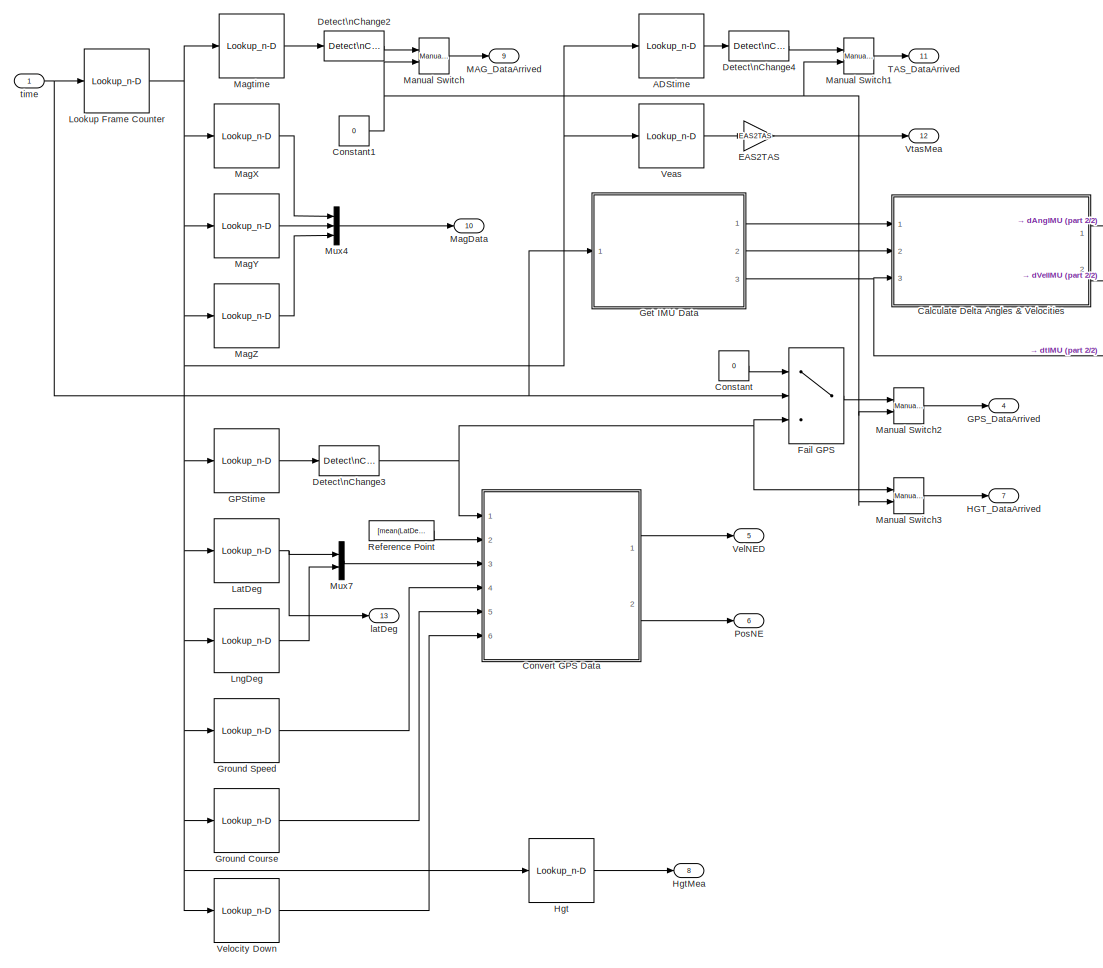
[diagram: InertialNavFilter/Read Measurements - part 1/2, most of the canvas]
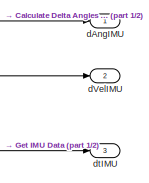
[diagram: InertialNavFilter/Read Measurements - part 2/2, top right region]
BLOCK [SubSystem] InertialNavFilter/Read Measurements
  FunctionWithSeparateData = off
  MaskHideContents = off
  MinAlgLoopOccurrences = off
  Opaque = off
  Ports = [1, 13]
  PropExecContextOutsideSubsystem = off
  RTWSystemCode = Auto
  RequestExecContextInheritance = off
  SID = 1448
  TreatAsAtomicUnit = on
BLOCK [Lookup_n-D] InertialNavFilter/Read Measurements/ADStime
  BeginIndexSearchUsingPreviousIndexResult = on
  BreakpointsForDimension1 = ADSframe
  InterpMethod = Flat
  NumberOfTableDimensions = 1
  OutDataTypeStr = single
  Ports = [1, 1]
  RndMeth = Simplest
  SID = 1545
  Table = ADStime
BLOCK [SubSystem] InertialNavFilter/Read Measurements/Calculate Delta Angles & Velocities
  ErrorFcn = Stateflow.Translate.translate
  FunctionWithSeparateData = off
  MaskDescription = Embedded MATLAB block
  MaskDisplay = bgColor = Simulink.Root.ColorString2Rgb(get_param(gcbh, 'BackgroundColor')); image(imread('private/eml_membrane_16.png','png','BackgroundColor',bgColor(1:3)),'center'); disp([10 10 'CalcDeltaAngVel']);
  MaskHideContents = off
  MaskIconFrame = on
  MaskIconOpaque = off
  MaskIconRotate = none
  MaskIconUnits = normalized
  MaskPortRotate = default
  MaskSelfModifiable = on
  MaskType = Stateflow
  MinAlgLoopOccurrences = off
  Opaque = off
  PermitHierarchicalResolution = ExplicitOnly
  Ports = [3, 2]
  PropExecContextOutsideSubsystem = off
  RTWSystemCode = Auto
  RequestExecContextInheritance = off
  SFBlockType = MATLAB Function
  SID = 1882
  TreatAsAtomicUnit = on
BLOCK [Demux] InertialNavFilter/Read Measurements/Calculate Delta Angles & Velocities/ Demux 
  Outputs = 1
  Ports = [1, 1]
  SID = 1882::60
BLOCK [S-Function] InertialNavFilter/Read Measurements/Calculate Delta Angles & Velocities/ SFunction 
  EnableBusSupport = on
  FunctionName = sf_sfun
  PortCounts = [3 3]
  Ports = [3, 3]
  SID = 1882::59
  Tag = Stateflow S-Function NavFilterTestHarness24 14
BLOCK [Terminator] InertialNavFilter/Read Measurements/Calculate Delta Angles & Velocities/ Terminator 
  SID = 1882::62
BLOCK [Inport] InertialNavFilter/Read Measurements/Calculate Delta Angles & Velocities/accelIMU
  IconDisplay = Port number
  Port = 2
  SID = 1882::66
BLOCK [Inport] InertialNavFilter/Read Measurements/Calculate Delta Angles & Velocities/angRateIMU
  IconDisplay = Port number
  SID = 1882::64
BLOCK [Outport] InertialNavFilter/Read Measurements/Calculate Delta Angles & Velocities/delAngIMU
  IconDisplay = Port number
  SID = 1882::8
BLOCK [Outport] InertialNavFilter/Read Measurements/Calculate Delta Angles & Velocities/delVelIMU
  IconDisplay = Port number
  Port = 2
  SID = 1882::40
BLOCK [Inport] InertialNavFilter/Read Measurements/Calculate Delta Angles & Velocities/dtIMU
  IconDisplay = Port number
  Port = 3
  SID = 1882::69
BLOCK [Constant] InertialNavFilter/Read Measurements/Constant
  OutDataTypeStr = boolean
  SID = 1475
  Value = 0
BLOCK [Constant] InertialNavFilter/Read Measurements/Constant1
  OutDataTypeStr = boolean
  SID = 1542
  Value = 0
BLOCK [SubSystem] InertialNavFilter/Read Measurements/Convert GPS Data
  ErrorFcn = Stateflow.Translate.translate
  FunctionWithSeparateData = off
  MaskDescription = Embedded MATLAB block
  MaskDisplay = bgColor = Simulink.Root.ColorString2Rgb(get_param(gcbh, 'BackgroundColor')); image(imread('private/eml_membrane_16.png','png','BackgroundColor',bgColor(1:3)),'center'); disp([10 10 'ConvertGpsData']);
  MaskHideContents = off
  MaskIconFrame = on
  MaskIconOpaque = off
  MaskIconRotate = none
  MaskIconUnits = normalized
  MaskPortRotate = default
  MaskSelfModifiable = on
  MaskType = Stateflow
  MinAlgLoopOccurrences = off
  Opaque = off
  PermitHierarchicalResolution = ExplicitOnly
  Ports = [6, 2]
  PropExecContextOutsideSubsystem = off
  RTWSystemCode = Auto
  RequestExecContextInheritance = off
  SFBlockType = MATLAB Function
  SID = 1537
  TreatAsAtomicUnit = on
BLOCK [Demux] InertialNavFilter/Read Measurements/Convert GPS Data/ Demux 
  Outputs = 1
  Ports = [1, 1]
  SID = 1537::64
BLOCK [S-Function] InertialNavFilter/Read Measurements/Convert GPS Data/ SFunction 
  EnableBusSupport = on
  FunctionName = sf_sfun
  PortCounts = [6 3]
  Ports = [6, 3]
  SID = 1537::63
  Tag = Stateflow S-Function NavFilterTestHarness24 13
BLOCK [Terminator] InertialNavFilter/Read Measurements/Convert GPS Data/ Terminator 
  SID = 1537::66
BLOCK [Inport] InertialNavFilter/Read Measurements/Convert GPS Data/CourseDeg
  IconDisplay = Port number
  Port = 5
  SID = 1537::56
BLOCK [Inport] InertialNavFilter/Read Measurements/Convert GPS Data/GPS_DataArrived
  IconDisplay = Port number
  SID = 1537::1
BLOCK [Inport] InertialNavFilter/Read Measurements/Convert GPS Data/GndSpd
  IconDisplay = Port number
  Port = 4
  SID = 1537::55
BLOCK [Inport] InertialNavFilter/Read Measurements/Convert GPS Data/LatLongDeg
  IconDisplay = Port number
  Port = 3
  SID = 1537::2
BLOCK [Outport] InertialNavFilter/Read Measurements/Convert GPS Data/PosNE
  IconDisplay = Port number
  Port = 2
  SID = 1537::46
BLOCK [Inport] InertialNavFilter/Read Measurements/Convert GPS Data/RefLatLongDeg
  IconDisplay = Port number
  Port = 2
  SID = 1537::58
BLOCK [Inport] InertialNavFilter/Read Measurements/Convert GPS Data/VelD
  IconDisplay = Port number
  Port = 6
  SID = 1537::57
BLOCK [Outport] InertialNavFilter/Read Measurements/Convert GPS Data/VelNED
  IconDisplay = Port number
  SID = 1537::8
BLOCK [Reference] InertialNavFilter/Read Measurements/Detect\nChange2  REF=simulink/Logic and Bit\nOperations/Detect\nChange
  InputProcessing = Inherited
  OutDataTypeStr = boolean
  Ports = [1, 1]
  SID = 1479
  SourceBlock = simulink/Logic and Bit\nOperations/Detect\nChange
  SourceType = Detect Change
  vinit = 0
BLOCK [Reference] InertialNavFilter/Read Measurements/Detect\nChange3  REF=simulink/Logic and Bit\nOperations/Detect\nChange
  InputProcessing = Inherited
  OutDataTypeStr = boolean
  Ports = [1, 1]
  SID = 1540
  SourceBlock = simulink/Logic and Bit\nOperations/Detect\nChange
  SourceType = Detect Change
  vinit = 0
BLOCK [Reference] InertialNavFilter/Read Measurements/Detect\nChange4  REF=simulink/Logic and Bit\nOperations/Detect\nChange
  InputProcessing = Inherited
  OutDataTypeStr = boolean
  Ports = [1, 1]
  SID = 1546
  SourceBlock = simulink/Logic and Bit\nOperations/Detect\nChange
  SourceType = Detect Change
  vinit = 0
BLOCK [Gain] InertialNavFilter/Read Measurements/EAS2TAS
  Gain = EAS2TAS
  OutDataTypeStr = Inherit: Inherit via internal rule
  ParamDataTypeStr = Inherit: Inherit via internal rule
  SID = 1481
  SaturateOnIntegerOverflow = off
BLOCK [Switch] InertialNavFilter/Read Measurements/Fail GPS
  InputSameDT = off
  SID = 1483
  SaturateOnIntegerOverflow = off
  Threshold = 1e6
BLOCK [Outport] InertialNavFilter/Read Measurements/GPS_DataArrived
  IconDisplay = Port number
  OutDataTypeStr = boolean
  Port = 4
  SID = 1527
BLOCK [Lookup_n-D] InertialNavFilter/Read Measurements/GPStime
  BeginIndexSearchUsingPreviousIndexResult = on
  BreakpointsForDimension1 = GPSframe
  InterpMethod = Flat
  NumberOfTableDimensions = 1
  OutDataTypeStr = single
  Ports = [1, 1]
  RndMeth = Simplest
  SID = 1539
  Table = GPStime
BLOCK [SubSystem] InertialNavFilter/Read Measurements/Get IMU Data
  FunctionWithSeparateData = off
  MaskHideContents = off
  MinAlgLoopOccurrences = off
  Opaque = off
  Ports = [1, 3]
  PropExecContextOutsideSubsystem = off
  RTWSystemCode = Auto
  RequestExecContextInheritance = off
  SID = 1803
  TreatAsAtomicUnit = on
BLOCK [Lookup_n-D] InertialNavFilter/Read Measurements/Get IMU Data/IMU log time
  BeginIndexSearchUsingPreviousIndexResult = on
  BreakpointsForDimension1 = IMUframe
  DiagnosticForOutOfRangeInput = Error
  InterpMethod = Flat
  NumberOfTableDimensions = 1
  OutDataTypeStr = single
  Ports = [1, 1]
  RndMeth = Simplest
  SID = 1808
  Table = IMUtime
BLOCK [Lookup_n-D] InertialNavFilter/Read Measurements/Get IMU Data/Lookup Frame Counter
  BeginIndexSearchUsingPreviousIndexResult = on
  BreakpointsForDimension1 = IMUtime
  DiagnosticForOutOfRangeInput = Error
  InterpMethod = Flat
  NumberOfTableDimensions = 1
  Ports = [1, 1]
  RndMeth = Simplest
  SID = 1809
  Table = IMUframe
BLOCK [Memory] InertialNavFilter/Read Measurements/Get IMU Data/Memory2
  InheritSampleTime = on
  SID = 1812
BLOCK [Mux] InertialNavFilter/Read Measurements/Get IMU Data/Mux2
  DisplayOption = bar
  Inputs = 3
  Ports = [3, 1]
  SID = 1813
BLOCK [Mux] InertialNavFilter/Read Measurements/Get IMU Data/Mux3
  DisplayOption = bar
  Inputs = 3
  Ports = [3, 1]
  SID = 1814
BLOCK [Saturate] InertialNavFilter/Read Measurements/Get IMU Data/Saturation
  InputPortMap = u0
  LowerLimit = 0
  Ports = [1, 1]
  SID = 1838
  UpperLimit = 0.04
BLOCK [Sum] InertialNavFilter/Read Measurements/Get IMU Data/Sum2
  AccumDataTypeStr = single
  IconShape = round
  InputSameDT = off
  Inputs = |+-
  OutDataTypeStr = Inherit: Inherit via internal rule
  Ports = [2, 1]
  SID = 1819
  SaturateOnIntegerOverflow = off
BLOCK [Outport] InertialNavFilter/Read Measurements/Get IMU Data/accel
  IconDisplay = Port number
  Port = 2
  SID = 1828
BLOCK [Lookup_n-D] InertialNavFilter/Read Measurements/Get IMU Data/accelX
  BeginIndexSearchUsingPreviousIndexResult = on
  BreakpointsForDimension1 = IMUframe
  DiagnosticForOutOfRangeInput = Error
  InterpMethod = Flat
  NumberOfTableDimensions = 1
  OutDataTypeStr = single
  Ports = [1, 1]
  RndMeth = Simplest
  SID = 1820
  Table = accel(:,1)
BLOCK [Lookup_n-D] InertialNavFilter/Read Measurements/Get IMU Data/accelY
  BeginIndexSearchUsingPreviousIndexResult = on
  BreakpointsForDimension1 = IMUframe
  DiagnosticForOutOfRangeInput = Error
  InterpMethod = Flat
  NumberOfTableDimensions = 1
  OutDataTypeStr = single
  Ports = [1, 1]
  RndMeth = Simplest
  SID = 1821
  Table = accel(:,2)
BLOCK [Lookup_n-D] InertialNavFilter/Read Measurements/Get IMU Data/accelZ
  BeginIndexSearchUsingPreviousIndexResult = on
  BreakpointsForDimension1 = IMUframe
  DiagnosticForOutOfRangeInput = Error
  InterpMethod = Flat
  NumberOfTableDimensions = 1
  OutDataTypeStr = single
  Ports = [1, 1]
  RndMeth = Simplest
  SID = 1822
  Table = accel(:,3)
BLOCK [Outport] InertialNavFilter/Read Measurements/Get IMU Data/angRate
  IconDisplay = Port number
  OutDataTypeStr = single
  SID = 1827
BLOCK [Lookup_n-D] InertialNavFilter/Read Measurements/Get IMU Data/angRateX
  BeginIndexSearchUsingPreviousIndexResult = on
  BreakpointsForDimension1 = IMUframe
  DiagnosticForOutOfRangeInput = Error
  InterpMethod = Flat
  NumberOfTableDimensions = 1
  OutDataTypeStr = single
  Ports = [1, 1]
  RndMeth = Simplest
  SID = 1823
  Table = angRate(:,1)
BLOCK [Lookup_n-D] InertialNavFilter/Read Measurements/Get IMU Data/angRateY
  BeginIndexSearchUsingPreviousIndexResult = on
  BreakpointsForDimension1 = IMUframe
  DiagnosticForOutOfRangeInput = Error
  InterpMethod = Flat
  NumberOfTableDimensions = 1
  OutDataTypeStr = single
  Ports = [1, 1]
  RndMeth = Simplest
  SID = 1824
  Table = angRate(:,2)
BLOCK [Lookup_n-D] InertialNavFilter/Read Measurements/Get IMU Data/angRateZ
  BeginIndexSearchUsingPreviousIndexResult = on
  BreakpointsForDimension1 = IMUframe
  DiagnosticForOutOfRangeInput = Error
  InterpMethod = Flat
  NumberOfTableDimensions = 1
  OutDataTypeStr = single
  Ports = [1, 1]
  RndMeth = Simplest
  SID = 1825
  Table = angRate(:,3)
BLOCK [Outport] InertialNavFilter/Read Measurements/Get IMU Data/dt
  IconDisplay = Port number
  OutDataTypeStr = single
  Port = 3
  SID = 1830
BLOCK [Inport] InertialNavFilter/Read Measurements/Get IMU Data/time
  IconDisplay = Port number
  SID = 1804
BLOCK [Lookup_n-D] InertialNavFilter/Read Measurements/Ground Course
  BeginIndexSearchUsingPreviousIndexResult = on
  BreakpointsForDimension1 = GPSframe
  InterpMethod = Flat
  NumberOfTableDimensions = 1
  OutDataTypeStr = single
  Ports = [1, 1]
  RndMeth = Simplest
  SID = 1484
  Table = CourseDeg
BLOCK [Lookup_n-D] InertialNavFilter/Read Measurements/Ground Speed
  BeginIndexSearchUsingPreviousIndexResult = on
  BreakpointsForDimension1 = GPSframe
  InterpMethod = Flat
  NumberOfTableDimensions = 1
  OutDataTypeStr = single
  Ports = [1, 1]
  RndMeth = Simplest
  SID = 1485
  Table = GndSpd
BLOCK [Outport] InertialNavFilter/Read Measurements/HGT_DataArrived
  IconDisplay = Port number
  OutDataTypeStr = boolean
  Port = 7
  SID = 1530
BLOCK [Lookup_n-D] InertialNavFilter/Read Measurements/Hgt
  BeginIndexSearchUsingPreviousIndexResult = on
  BreakpointsForDimension1 = GPSframe
  InterpMethod = Flat
  NumberOfTableDimensions = 1
  OutDataTypeStr = single
  Ports = [1, 1]
  RndMeth = Simplest
  SID = 1486
  Table = Hgt
BLOCK [Outport] InertialNavFilter/Read Measurements/HgtMea
  IconDisplay = Port number
  OutDataTypeStr = single
  Port = 8
  SID = 1531
BLOCK [Lookup_n-D] InertialNavFilter/Read Measurements/LatDeg
  BeginIndexSearchUsingPreviousIndexResult = on
  BreakpointsForDimension1 = GPSframe
  InterpMethod = Flat
  NumberOfTableDimensions = 1
  OutDataTypeStr = single
  Ports = [1, 1]
  RndMeth = Simplest
  SID = 1487
  Table = LatDeg
BLOCK [Lookup_n-D] InertialNavFilter/Read Measurements/LngDeg
  BeginIndexSearchUsingPreviousIndexResult = on
  BreakpointsForDimension1 = GPSframe
  InterpMethod = Flat
  NumberOfTableDimensions = 1
  OutDataTypeStr = single
  Ports = [1, 1]
  RndMeth = Simplest
  SID = 1488
  Table = LngDeg
BLOCK [Lookup_n-D] InertialNavFilter/Read Measurements/Lookup Frame Counter
  BeginIndexSearchUsingPreviousIndexResult = on
  BreakpointsForDimension1 = IMUtime
  DiagnosticForOutOfRangeInput = Error
  InterpMethod = Flat
  NumberOfTableDimensions = 1
  Ports = [1, 1]
  RndMeth = Simplest
  SID = 1489
  Table = IMUframe
BLOCK [Outport] InertialNavFilter/Read Measurements/MAG_DataArrived
  IconDisplay = Port number
  OutDataTypeStr = boolean
  Port = 9
  SID = 1524
BLOCK [Outport] InertialNavFilter/Read Measurements/MagData
  IconDisplay = Port number
  OutDataTypeStr = single
  Port = 10
  SID = 1525
BLOCK [Lookup_n-D] InertialNavFilter/Read Measurements/MagX
  BeginIndexSearchUsingPreviousIndexResult = on
  BreakpointsForDimension1 = MAGframe
  InterpMethod = Flat
  NumberOfTableDimensions = 1
  OutDataTypeStr = single
  Ports = [1, 1]
  RndMeth = Simplest
  SID = 1493
  Table = MagX
BLOCK [Lookup_n-D] InertialNavFilter/Read Measurements/MagY
  BeginIndexSearchUsingPreviousIndexResult = on
  BreakpointsForDimension1 = MAGframe
  InterpMethod = Flat
  NumberOfTableDimensions = 1
  OutDataTypeStr = single
  Ports = [1, 1]
  RndMeth = Simplest
  SID = 1494
  Table = MagY
BLOCK [Lookup_n-D] InertialNavFilter/Read Measurements/MagZ
  BeginIndexSearchUsingPreviousIndexResult = on
  BreakpointsForDimension1 = MAGframe
  InterpMethod = Flat
  NumberOfTableDimensions = 1
  OutDataTypeStr = single
  Ports = [1, 1]
  RndMeth = Simplest
  SID = 1495
  Table = MagZ
BLOCK [Lookup_n-D] InertialNavFilter/Read Measurements/Magtime
  BeginIndexSearchUsingPreviousIndexResult = on
  BreakpointsForDimension1 = MAGframe
  InterpMethod = Flat
  NumberOfTableDimensions = 1
  OutDataTypeStr = single
  Ports = [1, 1]
  RndMeth = Simplest
  SID = 1496
  Table = MAGtime
BLOCK [Reference] InertialNavFilter/Read Measurements/Manual Switch  REF=simulink/Signal\nRouting/Manual Switch
  Ports = [2, 1]
  SID = 1497
  SourceBlock = simulink/Signal\nRouting/Manual Switch
  SourceType = Manual Switch
  action = 0
  sw = 1
  varsize = off
BLOCK [Reference] InertialNavFilter/Read Measurements/Manual Switch1  REF=simulink/Signal\nRouting/Manual Switch
  Ports = [2, 1]
  SID = 1498
  SourceBlock = simulink/Signal\nRouting/Manual Switch
  SourceType = Manual Switch
  action = 0
  sw = 1
  varsize = off
BLOCK [Reference] InertialNavFilter/Read Measurements/Manual Switch2  REF=simulink/Signal\nRouting/Manual Switch
  Ports = [2, 1]
  SID = 1839
  SourceBlock = simulink/Signal\nRouting/Manual Switch
  SourceType = Manual Switch
  action = 0
  sw = 1
  varsize = off
BLOCK [Reference] InertialNavFilter/Read Measurements/Manual Switch3  REF=simulink/Signal\nRouting/Manual Switch
  Ports = [2, 1]
  SID = 1840
  SourceBlock = simulink/Signal\nRouting/Manual Switch
  SourceType = Manual Switch
  action = 0
  sw = 1
  varsize = off
BLOCK [Mux] InertialNavFilter/Read Measurements/Mux4
  DisplayOption = bar
  Inputs = 3
  Ports = [3, 1]
  SID = 1499
BLOCK [Mux] InertialNavFilter/Read Measurements/Mux7
  DisplayOption = bar
  Inputs = 2
  Ports = [2, 1]
  SID = 1502
BLOCK [Outport] InertialNavFilter/Read Measurements/PosNE
  IconDisplay = Port number
  OutDataTypeStr = single
  Port = 6
  SID = 1544
BLOCK [Constant] InertialNavFilter/Read Measurements/Reference Point
  OutDataTypeStr = single
  SID = 1541
  Value = [mean(LatDeg(10:100)),mean(LngDeg(10:100))]
BLOCK [Outport] InertialNavFilter/Read Measurements/TAS_DataArrived
  IconDisplay = Port number
  OutDataTypeStr = boolean
  Port = 11
  SID = 1528
BLOCK [Lookup_n-D] InertialNavFilter/Read Measurements/Veas
  BeginIndexSearchUsingPreviousIndexResult = on
  BreakpointsForDimension1 = ADSframe
  InterpMethod = Flat
  NumberOfTableDimensions = 1
  OutDataTypeStr = single
  Ports = [1, 1]
  RndMeth = Simplest
  SID = 1505
  Table = Veas
BLOCK [Outport] InertialNavFilter/Read Measurements/VelNED
  IconDisplay = Port number
  OutDataTypeStr = single
  Port = 5
  SID = 1543
BLOCK [Lookup_n-D] InertialNavFilter/Read Measurements/Velocity Down
  BeginIndexSearchUsingPreviousIndexResult = on
  BreakpointsForDimension1 = GPSframe
  InterpMethod = Flat
  NumberOfTableDimensions = 1
  OutDataTypeStr = single
  Ports = [1, 1]
  RndMeth = Simplest
  SID = 1506
  Table = VelD
BLOCK [Outport] InertialNavFilter/Read Measurements/VtasMea
  IconDisplay = Port number
  OutDataTypeStr = single
  Port = 12
  SID = 1529
BLOCK [Outport] InertialNavFilter/Read Measurements/dAngIMU
  IconDisplay = Port number
  SID = 1831
BLOCK [Outport] InertialNavFilter/Read Measurements/dVelIMU
  IconDisplay = Port number
  Port = 2
  SID = 1832
BLOCK [Outport] InertialNavFilter/Read Measurements/dtIMU
  IconDisplay = Port number
  Port = 3
  SID = 1833
BLOCK [Outport] InertialNavFilter/Read Measurements/latDeg
  IconDisplay = Port number
  OutDataTypeStr = single
  Port = 13
  SID = 1548
BLOCK [Inport] InertialNavFilter/Read Measurements/time
  IconDisplay = Port number
  SID = 1538
BLOCK [SubSystem] InertialNavFilter/Recall States1
  ErrorFcn = Stateflow.Translate.translate
  FunctionWithSeparateData = off
  MaskDescription = Embedded MATLAB block
  MaskDisplay = bgColor = Simulink.Root.ColorString2Rgb(get_param(gcbh, 'BackgroundColor')); image(imread('private/eml_membrane_16.png','png','BackgroundColor',bgColor(1:3)),'center'); disp([10 10 'RecallStates1']);
  MaskHideContents = off
  MaskIconFrame = on
  MaskIconOpaque = off
  MaskIconRotate = none
  MaskIconUnits = normalized
  MaskPortRotate = default
  MaskSelfModifiable = on
  MaskType = Stateflow
  MinAlgLoopOccurrences = off
  Opaque = off
  PermitHierarchicalResolution = ExplicitOnly
  Ports = [6, 2]
  PropExecContextOutsideSubsystem = off
  RTWSystemCode = Auto
  RequestExecContextInheritance = off
  SFBlockType = MATLAB Function
  SID = 1911
  TreatAsAtomicUnit = on
BLOCK [Demux] InertialNavFilter/Recall States1/ Demux 
  Outputs = 1
  Ports = [1, 1]
  SID = 1911::62
BLOCK [S-Function] InertialNavFilter/Recall States1/ SFunction 
  EnableBusSupport = on
  FunctionName = sf_sfun
  PortCounts = [6 3]
  Ports = [6, 3]
  SID = 1911::61
  Tag = Stateflow S-Function NavFilterTestHarness24 16
BLOCK [Terminator] InertialNavFilter/Recall States1/ Terminator 
  SID = 1911::64
BLOCK [Outport] InertialNavFilter/Recall States1/fuseData
  IconDisplay = Port number
  SID = 1911::75
BLOCK [Inport] InertialNavFilter/Recall States1/msecDelay
  IconDisplay = Port number
  Port = 3
  SID = 1911::1
BLOCK [Inport] InertialNavFilter/Recall States1/msecStore
  IconDisplay = Port number
  Port = 2
  SID = 1911::68
BLOCK [Inport] InertialNavFilter/Recall States1/newDataArrived
  IconDisplay = Port number
  Port = 6
  SID = 1911::74
BLOCK [Inport] InertialNavFilter/Recall States1/states
  IconDisplay = Port number
  Port = 4
  SID = 1911::71
BLOCK [Outport] InertialNavFilter/Recall States1/statesOut
  IconDisplay = Port number
  Port = 2
  SID = 1911::69
BLOCK [Inport] InertialNavFilter/Recall States1/statesStore
  IconDisplay = Port number
  SID = 1911::67
BLOCK [Inport] InertialNavFilter/Recall States1/time
  IconDisplay = Port number
  Port = 5
  SID = 1911::73
BLOCK [SubSystem] InertialNavFilter/Recall States2
  ErrorFcn = Stateflow.Translate.translate
  FunctionWithSeparateData = off
  MaskDescription = Embedded MATLAB block
  MaskDisplay = bgColor = Simulink.Root.ColorString2Rgb(get_param(gcbh, 'BackgroundColor')); image(imread('private/eml_membrane_16.png','png','BackgroundColor',bgColor(1:3)),'center'); disp([10 10 'RecallStates2']);
  MaskHideContents = off
  MaskIconFrame = on
  MaskIconOpaque = off
  MaskIconRotate = none
  MaskIconUnits = normalized
  MaskPortRotate = default
  MaskSelfModifiable = on
  MaskType = Stateflow
  MinAlgLoopOccurrences = off
  Opaque = off
  PermitHierarchicalResolution = ExplicitOnly
  Ports = [6, 2]
  PropExecContextOutsideSubsystem = off
  RTWSystemCode = Auto
  RequestExecContextInheritance = off
  SFBlockType = MATLAB Function
  SID = 1927
  TreatAsAtomicUnit = on
BLOCK [Demux] InertialNavFilter/Recall States2/ Demux 
  Outputs = 1
  Ports = [1, 1]
  SID = 1927::62
BLOCK [S-Function] InertialNavFilter/Recall States2/ SFunction 
  EnableBusSupport = on
  FunctionName = sf_sfun
  PortCounts = [6 3]
  Ports = [6, 3]
  SID = 1927::61
  Tag = Stateflow S-Function NavFilterTestHarness24 5
BLOCK [Terminator] InertialNavFilter/Recall States2/ Terminator 
  SID = 1927::64
BLOCK [Outport] InertialNavFilter/Recall States2/fuseData
  IconDisplay = Port number
  SID = 1927::75
BLOCK [Inport] InertialNavFilter/Recall States2/msecDelay
  IconDisplay = Port number
  Port = 3
  SID = 1927::1
BLOCK [Inport] InertialNavFilter/Recall States2/msecStore
  IconDisplay = Port number
  Port = 2
  SID = 1927::68
BLOCK [Inport] InertialNavFilter/Recall States2/newDataArrived
  IconDisplay = Port number
  Port = 6
  SID = 1927::74
BLOCK [Inport] InertialNavFilter/Recall States2/states
  IconDisplay = Port number
  Port = 4
  SID = 1927::71
BLOCK [Outport] InertialNavFilter/Recall States2/statesOut
  IconDisplay = Port number
  Port = 2
  SID = 1927::69
BLOCK [Inport] InertialNavFilter/Recall States2/statesStore
  IconDisplay = Port number
  SID = 1927::67
BLOCK [Inport] InertialNavFilter/Recall States2/time
  IconDisplay = Port number
  Port = 5
  SID = 1927::73
BLOCK [SubSystem] InertialNavFilter/Recall States3
  ErrorFcn = Stateflow.Translate.translate
  FunctionWithSeparateData = off
  MaskDescription = Embedded MATLAB block
  MaskDisplay = bgColor = Simulink.Root.ColorString2Rgb(get_param(gcbh, 'BackgroundColor')); image(imread('private/eml_membrane_16.png','png','BackgroundColor',bgColor(1:3)),'center'); disp([10 10 'RecallStates3']);
  MaskHideContents = off
  MaskIconFrame = on
  MaskIconOpaque = off
  MaskIconRotate = none
  MaskIconUnits = normalized
  MaskPortRotate = default
  MaskSelfModifiable = on
  MaskType = Stateflow
  MinAlgLoopOccurrences = off
  Opaque = off
  PermitHierarchicalResolution = ExplicitOnly
  Ports = [6, 2]
  PropExecContextOutsideSubsystem = off
  RTWSystemCode = Auto
  RequestExecContextInheritance = off
  SFBlockType = MATLAB Function
  SID = 1928
  TreatAsAtomicUnit = on
BLOCK [Demux] InertialNavFilter/Recall States3/ Demux 
  Outputs = 1
  Ports = [1, 1]
  SID = 1928::62
BLOCK [S-Function] InertialNavFilter/Recall States3/ SFunction 
  EnableBusSupport = on
  FunctionName = sf_sfun
  PortCounts = [6 3]
  Ports = [6, 3]
  SID = 1928::61
  Tag = Stateflow S-Function NavFilterTestHarness24 7
BLOCK [Terminator] InertialNavFilter/Recall States3/ Terminator 
  SID = 1928::64
BLOCK [Outport] InertialNavFilter/Recall States3/fuseData
  IconDisplay = Port number
  SID = 1928::75
BLOCK [Inport] InertialNavFilter/Recall States3/msecDelay
  IconDisplay = Port number
  Port = 3
  SID = 1928::1
BLOCK [Inport] InertialNavFilter/Recall States3/msecStore
  IconDisplay = Port number
  Port = 2
  SID = 1928::68
BLOCK [Inport] InertialNavFilter/Recall States3/newDataArrived
  IconDisplay = Port number
  Port = 6
  SID = 1928::74
BLOCK [Inport] InertialNavFilter/Recall States3/states
  IconDisplay = Port number
  Port = 4
  SID = 1928::71
BLOCK [Outport] InertialNavFilter/Recall States3/statesOut
  IconDisplay = Port number
  Port = 2
  SID = 1928::69
BLOCK [Inport] InertialNavFilter/Recall States3/statesStore
  IconDisplay = Port number
  SID = 1928::67
BLOCK [Inport] InertialNavFilter/Recall States3/time
  IconDisplay = Port number
  Port = 5
  SID = 1928::73
BLOCK [SubSystem] InertialNavFilter/Recall States4
  ErrorFcn = Stateflow.Translate.translate
  FunctionWithSeparateData = off
  MaskDescription = Embedded MATLAB block
  MaskDisplay = bgColor = Simulink.Root.ColorString2Rgb(get_param(gcbh, 'BackgroundColor')); image(imread('private/eml_membrane_16.png','png','BackgroundColor',bgColor(1:3)),'center'); disp([10 10 'RecallStates4']);
  MaskHideContents = off
  MaskIconFrame = on
  MaskIconOpaque = off
  MaskIconRotate = none
  MaskIconUnits = normalized
  MaskPortRotate = default
  MaskSelfModifiable = on
  MaskType = Stateflow
  MinAlgLoopOccurrences = off
  Opaque = off
  PermitHierarchicalResolution = ExplicitOnly
  Ports = [6, 2]
  PropExecContextOutsideSubsystem = off
  RTWSystemCode = Auto
  RequestExecContextInheritance = off
  SFBlockType = MATLAB Function
  SID = 1929
  TreatAsAtomicUnit = on
BLOCK [Demux] InertialNavFilter/Recall States4/ Demux 
  Outputs = 1
  Ports = [1, 1]
  SID = 1929::62
BLOCK [S-Function] InertialNavFilter/Recall States4/ SFunction 
  EnableBusSupport = on
  FunctionName = sf_sfun
  PortCounts = [6 3]
  Ports = [6, 3]
  SID = 1929::61
  Tag = Stateflow S-Function NavFilterTestHarness24 8
BLOCK [Terminator] InertialNavFilter/Recall States4/ Terminator 
  SID = 1929::64
BLOCK [Outport] InertialNavFilter/Recall States4/fuseData
  IconDisplay = Port number
  SID = 1929::75
BLOCK [Inport] InertialNavFilter/Recall States4/msecDelay
  IconDisplay = Port number
  Port = 3
  SID = 1929::1
BLOCK [Inport] InertialNavFilter/Recall States4/msecStore
  IconDisplay = Port number
  Port = 2
  SID = 1929::68
BLOCK [Inport] InertialNavFilter/Recall States4/newDataArrived
  IconDisplay = Port number
  Port = 6
  SID = 1929::74
BLOCK [Inport] InertialNavFilter/Recall States4/states
  IconDisplay = Port number
  Port = 4
  SID = 1929::71
BLOCK [Outport] InertialNavFilter/Recall States4/statesOut
  IconDisplay = Port number
  Port = 2
  SID = 1929::69
BLOCK [Inport] InertialNavFilter/Recall States4/statesStore
  IconDisplay = Port number
  SID = 1929::67
BLOCK [Inport] InertialNavFilter/Recall States4/time
  IconDisplay = Port number
  Port = 5
  SID = 1929::73
BLOCK [SubSystem] InertialNavFilter/Recall States5
  ErrorFcn = Stateflow.Translate.translate
  FunctionWithSeparateData = off
  MaskDescription = Embedded MATLAB block
  MaskDisplay = bgColor = Simulink.Root.ColorString2Rgb(get_param(gcbh, 'BackgroundColor')); image(imread('private/eml_membrane_16.png','png','BackgroundColor',bgColor(1:3)),'center'); disp([10 10 'RecallStates5']);
  MaskHideContents = off
  MaskIconFrame = on
  MaskIconOpaque = off
  MaskIconRotate = none
  MaskIconUnits = normalized
  MaskPortRotate = default
  MaskSelfModifiable = on
  MaskType = Stateflow
  MinAlgLoopOccurrences = off
  Opaque = off
  PermitHierarchicalResolution = ExplicitOnly
  Ports = [6, 2]
  PropExecContextOutsideSubsystem = off
  RTWSystemCode = Auto
  RequestExecContextInheritance = off
  SFBlockType = MATLAB Function
  SID = 1930
  TreatAsAtomicUnit = on
BLOCK [Demux] InertialNavFilter/Recall States5/ Demux 
  Outputs = 1
  Ports = [1, 1]
  SID = 1930::62
BLOCK [S-Function] InertialNavFilter/Recall States5/ SFunction 
  EnableBusSupport = on
  FunctionName = sf_sfun
  PortCounts = [6 3]
  Ports = [6, 3]
  SID = 1930::61
  Tag = Stateflow S-Function NavFilterTestHarness24 12
BLOCK [Terminator] InertialNavFilter/Recall States5/ Terminator 
  SID = 1930::64
BLOCK [Outport] InertialNavFilter/Recall States5/fuseData
  IconDisplay = Port number
  SID = 1930::75
BLOCK [Inport] InertialNavFilter/Recall States5/msecDelay
  IconDisplay = Port number
  Port = 3
  SID = 1930::1
BLOCK [Inport] InertialNavFilter/Recall States5/msecStore
  IconDisplay = Port number
  Port = 2
  SID = 1930::68
BLOCK [Inport] InertialNavFilter/Recall States5/newDataArrived
  IconDisplay = Port number
  Port = 6
  SID = 1930::74
BLOCK [Inport] InertialNavFilter/Recall States5/states
  IconDisplay = Port number
  Port = 4
  SID = 1930::71
BLOCK [Outport] InertialNavFilter/Recall States5/statesOut
  IconDisplay = Port number
  Port = 2
  SID = 1930::69
BLOCK [Inport] InertialNavFilter/Recall States5/statesStore
  IconDisplay = Port number
  SID = 1930::67
BLOCK [Inport] InertialNavFilter/Recall States5/time
  IconDisplay = Port number
  Port = 5
  SID = 1930::73
BLOCK [Inport] InertialNavFilter/Reset
  IconDisplay = Port number
  OutDataTypeStr = boolean
  PortDimensions = 1
  SID = 1193
BLOCK [SubSystem] InertialNavFilter/Simple OnGroundTest
  FunctionWithSeparateData = off
  MaskHideContents = off
  MinAlgLoopOccurrences = off
  Opaque = off
  Ports = [2, 1]
  PropExecContextOutsideSubsystem = off
  RTWSystemCode = Auto
  RequestExecContextInheritance = off
  SID = 1423
  TreatAsAtomicUnit = on
BLOCK [Logic] InertialNavFilter/Simple OnGroundTest/Logical\nOperator
  AllPortsSameDT = off
  OutDataTypeStr = boolean
  Ports = [2, 1]
  SID = 1426
BLOCK [Reference] InertialNavFilter/Simple OnGroundTest/Test Airspeed  REF=simulink/Logic and Bit\nOperations/Compare\nTo Constant
  OutDataTypeStr = boolean
  Ports = [1, 1]
  SID = 1427
  SourceBlock = simulink/Logic and Bit\nOperations/Compare\nTo Constant
  SourceType = Compare To Constant
  ZeroCross = on
  const = 8
  relop = <
BLOCK [Reference] InertialNavFilter/Simple OnGroundTest/Test Ground Spee  REF=simulink/Logic and Bit\nOperations/Compare\nTo Constant
  OutDataTypeStr = boolean
  Ports = [1, 1]
  SID = 1428
  SourceBlock = simulink/Logic and Bit\nOperations/Compare\nTo Constant
  SourceType = Compare To Constant
  ZeroCross = on
  const = 2
  relop = <
BLOCK [Inport] InertialNavFilter/Simple OnGroundTest/VelNED
  IconDisplay = Port number
  SID = 1424
BLOCK [Inport] InertialNavFilter/Simple OnGroundTest/VtasMea
  IconDisplay = Port number
  Port = 2
  SID = 1425
BLOCK [Fcn] InertialNavFilter/Simple OnGroundTest/gndSpd
  Expr = sqrt(u(1)^2 + u(2)^2)
  SID = 1429
BLOCK [Outport] InertialNavFilter/Simple OnGroundTest/onGround
  IconDisplay = Port number
  SID = 1430
BLOCK [Outport] InertialNavFilter/States
  IconDisplay = Port number
  OutDataTypeStr = single
  PortDimensions = 24
  SID = 569
BLOCK [SubSystem] InertialNavFilter/Store States
  ErrorFcn = Stateflow.Translate.translate
  FunctionWithSeparateData = off
  MaskDescription = Embedded MATLAB block
  MaskDisplay = bgColor = Simulink.Root.ColorString2Rgb(get_param(gcbh, 'BackgroundColor')); image(imread('private/eml_membrane_16.png','png','BackgroundColor',bgColor(1:3)),'center'); disp([10 10 'StoreStates']);
  MaskHideContents = off
  MaskIconFrame = on
  MaskIconOpaque = off
  MaskIconRotate = none
  MaskIconUnits = normalized
  MaskPortRotate = default
  MaskSelfModifiable = on
  MaskType = Stateflow
  MinAlgLoopOccurrences = off
  Opaque = off
  PermitHierarchicalResolution = ExplicitOnly
  Ports = [2, 2]
  PropExecContextOutsideSubsystem = off
  RTWSystemCode = Auto
  RequestExecContextInheritance = off
  SFBlockType = MATLAB Function
  SID = 1910
  TreatAsAtomicUnit = on
BLOCK [Demux] InertialNavFilter/Store States/ Demux 
  Outputs = 1
  Ports = [1, 1]
  SID = 1910::62
BLOCK [S-Function] InertialNavFilter/Store States/ SFunction 
  EnableBusSupport = on
  FunctionName = sf_sfun
  PortCounts = [2 3]
  Ports = [2, 3]
  SID = 1910::61
  Tag = Stateflow S-Function NavFilterTestHarness24 15
BLOCK [Terminator] InertialNavFilter/Store States/ Terminator 
  SID = 1910::64
BLOCK [Outport] InertialNavFilter/Store States/msecStoreOut
  IconDisplay = Port number
  Port = 2
  SID = 1910::66
BLOCK [Inport] InertialNavFilter/Store States/states
  IconDisplay = Port number
  SID = 1910::1
BLOCK [Outport] InertialNavFilter/Store States/statesStoreOut
  IconDisplay = Port number
  SID = 1910::65
BLOCK [Inport] InertialNavFilter/Store States/time
  IconDisplay = Port number
  Port = 2
  SID = 1910::2
BLOCK [TriggerPort] InertialNavFilter/Trigger
  PortDimensions = 1
  Ports = []
  SID = 572
  StatesWhenEnabling = held
BLOCK [UnitDelay] InertialNavFilter/Unit Delay
  InputProcessing = Elements as channels (sample based)
  SID = 1872
  SampleTime = -1
  X0 = 1
BLOCK [Reference] InertialNavFilter/Unit Delay\nResettable\nExternal IC  REF=simulink/Additional Math\n& Discrete/Additional\nDiscrete/Unit Delay\nResettable\nExternal IC
  Ports = [3, 1]
  SID = 1225
  SourceBlock = simulink/Additional Math\n& Discrete/Additional\nDiscrete/Unit Delay\nResettable\nExternal IC
  SourceType = Unit Delay Resettable External Initial Condition
  tsamp = -1
BLOCK [Reference] InertialNavFilter/Unit Delay\nResettable\nExternal IC1  REF=simulink/Additional Math\n& Discrete/Additional\nDiscrete/Unit Delay\nResettable\nExternal IC
  Ports = [3, 1]
  SID = 1226
  SourceBlock = simulink/Additional Math\n& Discrete/Additional\nDiscrete/Unit Delay\nResettable\nExternal IC
  SourceType = Unit Delay Resettable External Initial Condition
  tsamp = -1
BLOCK [Constant] InertialNavFilter/delay1
  OutDataTypeStr = int32
  SID = 1294
  SampleTime = -1
  Value = msecVelDelay
BLOCK [Constant] InertialNavFilter/delay2
  OutDataTypeStr = int32
  SID = 1931
  SampleTime = -1
  Value = msecPosDelay
BLOCK [Constant] InertialNavFilter/delay3
  OutDataTypeStr = int32
  SID = 1932
  SampleTime = -1
  Value = msecHgtDelay
BLOCK [Constant] InertialNavFilter/delay4
  OutDataTypeStr = int32
  SID = 1933
  SampleTime = -1
  Value = msecMagDelay
BLOCK [Constant] InertialNavFilter/delay5
  OutDataTypeStr = int32
  SID = 1934
  SampleTime = -1
  Value = msecTasDelay
BLOCK [Inport] InertialNavFilter/time
  IconDisplay = Port number
  OutDataTypeStr = double
  Port = 4
  PortDimensions = 1
  SID = 886
BLOCK [Inport] InertialNavFilter/useAirspeed
  IconDisplay = Port number
  OutDataTypeStr = boolean
  Port = 2
  PortDimensions = 1
  SID = 1287
BLOCK [Inport] InertialNavFilter/useCompass
  IconDisplay = Port number
  OutDataTypeStr = boolean
  Port = 3
  PortDimensions = 1
  SID = 1288
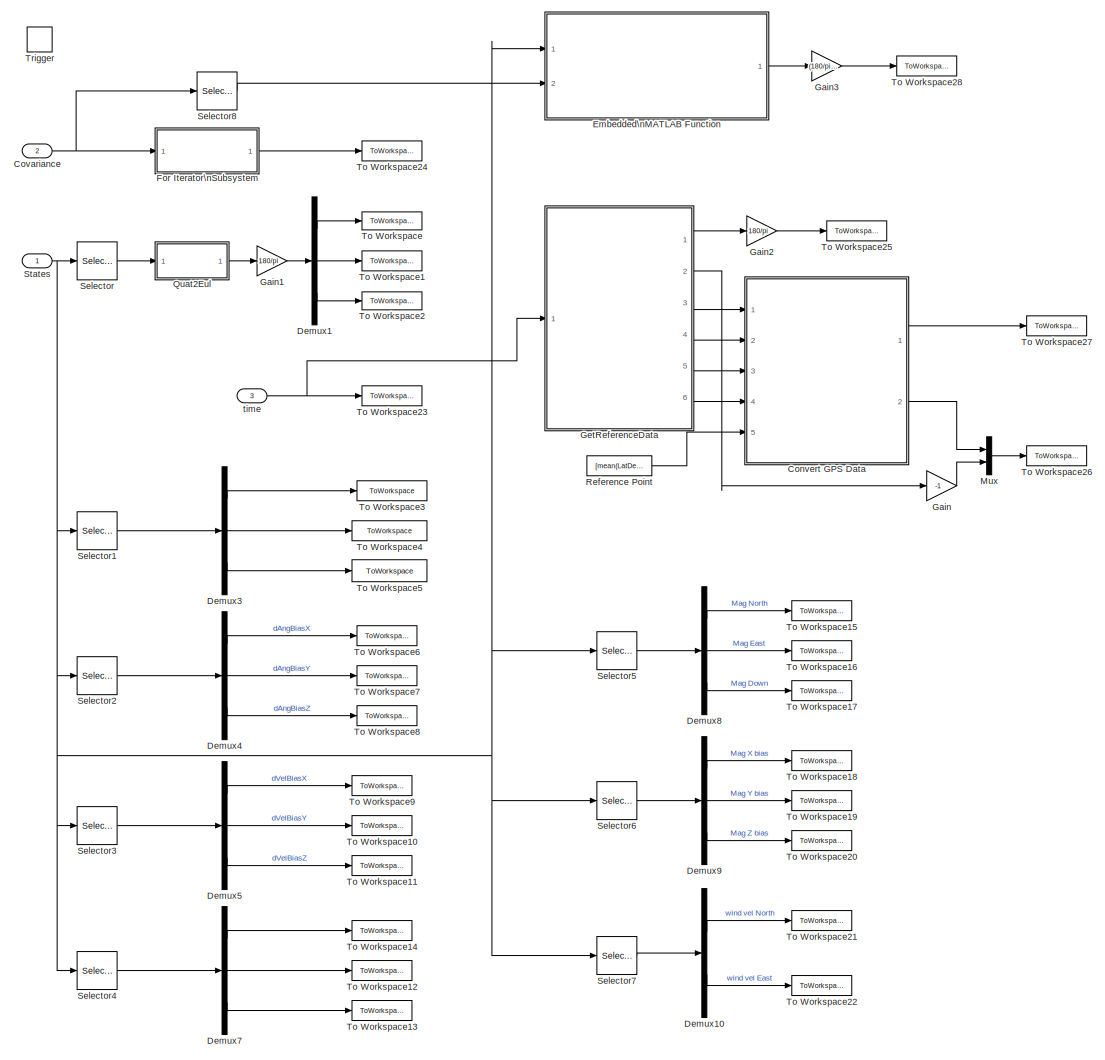
[diagram: LogData - part 1/1, most of the canvas]
BLOCK [SubSystem] LogData
  FunctionWithSeparateData = off
  MaskHideContents = off
  MinAlgLoopOccurrences = off
  Opaque = off
  Ports = [3, 0, 0, 1]
  PropExecContextOutsideSubsystem = off
  RTWSystemCode = Auto
  RequestExecContextInheritance = off
  SID = 583
BLOCK [SubSystem] LogData/Convert GPS Data
  ErrorFcn = Stateflow.Translate.translate
  FunctionWithSeparateData = off
  MaskDescription = Embedded MATLAB block
  MaskDisplay = bgColor = Simulink.Root.ColorString2Rgb(get_param(gcbh, 'BackgroundColor')); image(imread('private/eml_membrane_16.png','png','BackgroundColor',bgColor(1:3)),'center'); disp([10 10 'ConvertGpsData']);
  MaskHideContents = off
  MaskIconFrame = on
  MaskIconOpaque = off
  MaskIconRotate = none
  MaskIconUnits = normalized
  MaskPortRotate = default
  MaskSelfModifiable = on
  MaskType = Stateflow
  MinAlgLoopOccurrences = off
  Opaque = off
  PermitHierarchicalResolution = ExplicitOnly
  Ports = [5, 2]
  PropExecContextOutsideSubsystem = off
  RTWSystemCode = Auto
  RequestExecContextInheritance = off
  SFBlockType = MATLAB Function
  SID = 1277
  TreatAsAtomicUnit = on
BLOCK [Demux] LogData/Convert GPS Data/ Demux 
  Outputs = 1
  Ports = [1, 1]
  SID = 1277::64
BLOCK [S-Function] LogData/Convert GPS Data/ SFunction 
  EnableBusSupport = on
  FunctionName = sf_sfun
  PortCounts = [5 3]
  Ports = [5, 3]
  SID = 1277::63
  Tag = Stateflow S-Function NavFilterTestHarness24 11
BLOCK [Terminator] LogData/Convert GPS Data/ Terminator 
  SID = 1277::66
BLOCK [Inport] LogData/Convert GPS Data/CourseDeg
  IconDisplay = Port number
  Port = 3
  SID = 1277::56
BLOCK [Inport] LogData/Convert GPS Data/GndSpd
  IconDisplay = Port number
  Port = 2
  SID = 1277::55
BLOCK [Inport] LogData/Convert GPS Data/LatLongDeg
  IconDisplay = Port number
  SID = 1277::2
BLOCK [Outport] LogData/Convert GPS Data/PosNE
  IconDisplay = Port number
  Port = 2
  SID = 1277::46
BLOCK [Inport] LogData/Convert GPS Data/RefLatLongDeg
  IconDisplay = Port number
  Port = 5
  SID = 1277::58
BLOCK [Inport] LogData/Convert GPS Data/VelD
  IconDisplay = Port number
  Port = 4
  SID = 1277::57
BLOCK [Outport] LogData/Convert GPS Data/VelNED
  IconDisplay = Port number
  SID = 1277::8
BLOCK [Inport] LogData/Covariance
  IconDisplay = Port number
  Port = 2
  PortDimensions = [24,24]
  SID = 977
BLOCK [Demux] LogData/Demux1
  DisplayOption = bar
  Outputs = 3
  Ports = [1, 3]
  SID = 577
BLOCK [Demux] LogData/Demux10
  DisplayOption = bar
  Outputs = 2
  Ports = [1, 2]
  SID = 746
BLOCK [Demux] LogData/Demux3
  DisplayOption = bar
  Outputs = 3
  Ports = [1, 3]
  SID = 652
BLOCK [Demux] LogData/Demux4
  DisplayOption = bar
  Outputs = 3
  Ports = [1, 3]
  SID = 659
BLOCK [Demux] LogData/Demux5
  DisplayOption = bar
  Outputs = 3
  Ports = [1, 3]
  SID = 660
BLOCK [Demux] LogData/Demux7
  DisplayOption = bar
  Outputs = 3
  Ports = [1, 3]
  SID = 669
BLOCK [Demux] LogData/Demux8
  DisplayOption = bar
  Outputs = 3
  Ports = [1, 3]
  SID = 678
BLOCK [Demux] LogData/Demux9
  DisplayOption = bar
  Outputs = 3
  Ports = [1, 3]
  SID = 679
BLOCK [SubSystem] LogData/Embedded\nMATLAB Function
  ErrorFcn = Stateflow.Translate.translate
  FunctionWithSeparateData = off
  MaskDescription = Embedded MATLAB block
  MaskDisplay = bgColor = Simulink.Root.ColorString2Rgb(get_param(gcbh, 'BackgroundColor')); image(imread('private/eml_membrane_16.png','png','BackgroundColor',bgColor(1:3)),'center'); disp([10 10 'calcEulerVariances']);
  MaskHideContents = off
  MaskIconFrame = on
  MaskIconOpaque = off
  MaskIconRotate = none
  MaskIconUnits = normalized
  MaskPortRotate = default
  MaskSelfModifiable = on
  MaskType = Stateflow
  MinAlgLoopOccurrences = off
  Opaque = off
  PermitHierarchicalResolution = ExplicitOnly
  Ports = [2, 1]
  PropExecContextOutsideSubsystem = off
  RTWSystemCode = Auto
  RequestExecContextInheritance = off
  SFBlockType = MATLAB Function
  SID = 1254
  TreatAsAtomicUnit = on
BLOCK [Demux] LogData/Embedded\nMATLAB Function/ Demux 
  Outputs = 1
  Ports = [1, 1]
  SID = 1254::59
BLOCK [S-Function] LogData/Embedded\nMATLAB Function/ SFunction 
  EnableBusSupport = on
  FunctionName = sf_sfun
  PortCounts = [2 2]
  Ports = [2, 2]
  SID = 1254::58
  Tag = Stateflow S-Function NavFilterTestHarness24 10
BLOCK [Terminator] LogData/Embedded\nMATLAB Function/ Terminator 
  SID = 1254::61
BLOCK [Outport] LogData/Embedded\nMATLAB Function/eulVar
  IconDisplay = Port number
  SID = 1254::7
BLOCK [Inport] LogData/Embedded\nMATLAB Function/quatCov
  IconDisplay = Port number
  Port = 2
  SID = 1254::49
BLOCK [Inport] LogData/Embedded\nMATLAB Function/states
  IconDisplay = Port number
  SID = 1254::35
BLOCK [SubSystem] LogData/For Iterator\nSubsystem
  FunctionWithSeparateData = off
  MaskHideContents = off
  MinAlgLoopOccurrences = off
  Opaque = off
  Ports = [1, 1]
  PropExecContextOutsideSubsystem = off
  RTWSystemCode = Auto
  RequestExecContextInheritance = off
  SID = 1256
  TreatAsAtomicUnit = on
BLOCK [Assignment] LogData/For Iterator\nSubsystem/Assignment
  IndexOptions = Index vector (port)
  Indices = 1
  OutputInitialize = Specify size for each dimension in table
  OutputSizes = 24
  Ports = [2, 1]
  SID = 1258
BLOCK [ForIterator] LogData/For Iterator\nSubsystem/For Iterator
  IterationLimit = 24
  Ports = [0, 1]
  SID = 1259
BLOCK [Inport] LogData/For Iterator\nSubsystem/In1
  IconDisplay = Port number
  SID = 1257
BLOCK [Outport] LogData/For Iterator\nSubsystem/Out1
  IconDisplay = Port number
  SID = 1261
BLOCK [Selector] LogData/For Iterator\nSubsystem/Select5
  IndexOptions = Index vector (port),Index vector (port)
  Indices = 1,1
  InputPortWidth = 3
  NumberOfDimensions = 2
  OutputSizes = 1,1
  Ports = [3, 1]
  SID = 1260
BLOCK [Gain] LogData/Gain
  Gain = -1
  OutDataTypeStr = Inherit: Inherit via internal rule
  ParamDataTypeStr = Inherit: Inherit via internal rule
  SID = 988
  SaturateOnIntegerOverflow = off
BLOCK [Gain] LogData/Gain1
  Gain = 180/pi
  OutDataTypeStr = Inherit: Inherit via internal rule
  ParamDataTypeStr = Inherit: Inherit via internal rule
  SID = 594
  SaturateOnIntegerOverflow = off
BLOCK [Gain] LogData/Gain2
  Gain = 180/pi
  OutDataTypeStr = Inherit: Inherit via internal rule
  ParamDataTypeStr = Inherit: Inherit via internal rule
  SID = 989
  SaturateOnIntegerOverflow = off
BLOCK [Gain] LogData/Gain3
  Gain = (180/pi)^2
  OutDataTypeStr = Inherit: Inherit via internal rule
  ParamDataTypeStr = Inherit: Inherit via internal rule
  SID = 1263
  SaturateOnIntegerOverflow = off
BLOCK [SubSystem] LogData/GetReferenceData
  FunctionWithSeparateData = off
  MaskHideContents = off
  MinAlgLoopOccurrences = off
  Opaque = off
  Ports = [1, 6]
  PropExecContextOutsideSubsystem = off
  RTWSystemCode = Auto
  RequestExecContextInheritance = off
  SID = 1617
  TreatAsAtomicUnit = on
BLOCK [Outport] LogData/GetReferenceData/CourseDeg
  IconDisplay = Port number
  OutDataTypeStr = single
  Port = 5
  SID = 1704
BLOCK [Outport] LogData/GetReferenceData/EulAHRS
  IconDisplay = Port number
  OutDataTypeStr = single
  SID = 1692
BLOCK [Outport] LogData/GetReferenceData/GndSpd
  IconDisplay = Port number
  OutDataTypeStr = single
  Port = 4
  SID = 1703
BLOCK [Lookup_n-D] LogData/GetReferenceData/Ground Course
  BeginIndexSearchUsingPreviousIndexResult = on
  BreakpointsForDimension1 = GPSframe
  InterpMethod = Flat
  NumberOfTableDimensions = 1
  OutDataTypeStr = single
  Ports = [1, 1]
  RndMeth = Simplest
  SID = 1653
  Table = CourseDeg
BLOCK [Lookup_n-D] LogData/GetReferenceData/Ground Speed
  BeginIndexSearchUsingPreviousIndexResult = on
  BreakpointsForDimension1 = GPSframe
  InterpMethod = Flat
  NumberOfTableDimensions = 1
  OutDataTypeStr = single
  Ports = [1, 1]
  RndMeth = Simplest
  SID = 1654
  Table = GndSpd
BLOCK [Lookup_n-D] LogData/GetReferenceData/Hgt
  BeginIndexSearchUsingPreviousIndexResult = on
  BreakpointsForDimension1 = GPSframe
  InterpMethod = Flat
  NumberOfTableDimensions = 1
  OutDataTypeStr = single
  Ports = [1, 1]
  RndMeth = Simplest
  SID = 1655
  Table = Hgt
BLOCK [Outport] LogData/GetReferenceData/HgtMea
  IconDisplay = Port number
  OutDataTypeStr = single
  Port = 2
  SID = 1700
BLOCK [Lookup_n-D] LogData/GetReferenceData/LatDeg
  BeginIndexSearchUsingPreviousIndexResult = on
  BreakpointsForDimension1 = GPSframe
  InterpMethod = Flat
  NumberOfTableDimensions = 1
  OutDataTypeStr = single
  Ports = [1, 1]
  RndMeth = Simplest
  SID = 1656
  Table = LatDeg
BLOCK [Outport] LogData/GetReferenceData/LatLongDeg
  IconDisplay = Port number
  OutDataTypeStr = single
  Port = 3
  SID = 1702
BLOCK [Lookup_n-D] LogData/GetReferenceData/LngDeg
  BeginIndexSearchUsingPreviousIndexResult = on
  BreakpointsForDimension1 = GPSframe
  InterpMethod = Flat
  NumberOfTableDimensions = 1
  OutDataTypeStr = single
  Ports = [1, 1]
  RndMeth = Simplest
  SID = 1657
  Table = LngDeg
BLOCK [Lookup_n-D] LogData/GetReferenceData/Lookup Frame Counter
  BeginIndexSearchUsingPreviousIndexResult = on
  BreakpointsForDimension1 = IMUtime
  DiagnosticForOutOfRangeInput = Error
  InterpMethod = Flat
  NumberOfTableDimensions = 1
  Ports = [1, 1]
  RndMeth = Simplest
  SID = 1658
  Table = IMUframe
BLOCK [Mux] LogData/GetReferenceData/Mux5
  DisplayOption = bar
  Inputs = 3
  Ports = [3, 1]
  SID = 1669
BLOCK [Mux] LogData/GetReferenceData/Mux7
  DisplayOption = bar
  Inputs = 2
  Ports = [2, 1]
  SID = 1671
BLOCK [Lookup_n-D] LogData/GetReferenceData/Pitch
  BeginIndexSearchUsingPreviousIndexResult = on
  BreakpointsForDimension1 = ATTframe
  InterpMethod = Flat
  NumberOfTableDimensions = 1
  OutDataTypeStr = single
  Ports = [1, 1]
  RndMeth = Simplest
  SID = 1672
  Table = Pitch
BLOCK [Lookup_n-D] LogData/GetReferenceData/Roll
  BeginIndexSearchUsingPreviousIndexResult = on
  BreakpointsForDimension1 = ATTframe
  InterpMethod = Flat
  NumberOfTableDimensions = 1
  OutDataTypeStr = single
  Ports = [1, 1]
  RndMeth = Simplest
  SID = 1673
  Table = Roll
BLOCK [Outport] LogData/GetReferenceData/VelD
  IconDisplay = Port number
  OutDataTypeStr = single
  Port = 6
  SID = 1705
BLOCK [Lookup_n-D] LogData/GetReferenceData/Velocity Down
  BeginIndexSearchUsingPreviousIndexResult = on
  BreakpointsForDimension1 = GPSframe
  InterpMethod = Flat
  NumberOfTableDimensions = 1
  OutDataTypeStr = single
  Ports = [1, 1]
  RndMeth = Simplest
  SID = 1675
  Table = VelD
BLOCK [Lookup_n-D] LogData/GetReferenceData/Yaw
  BeginIndexSearchUsingPreviousIndexResult = on
  BreakpointsForDimension1 = ATTframe
  InterpMethod = Flat
  NumberOfTableDimensions = 1
  OutDataTypeStr = single
  Ports = [1, 1]
  RndMeth = Simplest
  SID = 1676
  Table = Yaw
BLOCK [Inport] LogData/GetReferenceData/time
  IconDisplay = Port number
  SID = 1706
BLOCK [SubSystem] LogData/GetReferenceData/wrapAng to +-pi
  FunctionWithSeparateData = off
  MaskHideContents = off
  MinAlgLoopOccurrences = off
  Opaque = off
  Ports = [1, 1]
  PropExecContextOutsideSubsystem = off
  RTWSystemCode = Auto
  RequestExecContextInheritance = off
  SID = 1677
BLOCK [If] LogData/GetReferenceData/wrapAng to +-pi/If
  IfExpression = u1 > single(pi)
  Ports = [1, 2]
  SID = 1679
BLOCK [SubSystem] LogData/GetReferenceData/wrapAng to +-pi/If Action\nSubsystem
  FunctionWithSeparateData = off
  MaskHideContents = off
  MinAlgLoopOccurrences = off
  Opaque = off
  Ports = [1, 1, 0, 0, 0, 0, 0, 1]
  PropExecContextOutsideSubsystem = off
  RTWSystemCode = Auto
  RequestExecContextInheritance = off
  SID = 1680
  TreatAsAtomicUnit = on
BLOCK [ActionPort] LogData/GetReferenceData/wrapAng to +-pi/If Action\nSubsystem/Action Port
  ActionType = else
  SID = 1682
BLOCK [Inport] LogData/GetReferenceData/wrapAng to +-pi/If Action\nSubsystem/In1
  IconDisplay = Port number
  SID = 1681
BLOCK [Outport] LogData/GetReferenceData/wrapAng to +-pi/If Action\nSubsystem/Out1
  IconDisplay = Port number
  SID = 1683
BLOCK [SubSystem] LogData/GetReferenceData/wrapAng to +-pi/If Action\nSubsystem1
  FunctionWithSeparateData = off
  MaskHideContents = off
  MinAlgLoopOccurrences = off
  Opaque = off
  Ports = [1, 1, 0, 0, 0, 0, 0, 1]
  PropExecContextOutsideSubsystem = off
  RTWSystemCode = Auto
  RequestExecContextInheritance = off
  SID = 1684
  TreatAsAtomicUnit = on
BLOCK [ActionPort] LogData/GetReferenceData/wrapAng to +-pi/If Action\nSubsystem1/Action Port
  ActionType = then
  SID = 1686
BLOCK [Sum] LogData/GetReferenceData/wrapAng to +-pi/If Action\nSubsystem1/Add
  InputSameDT = off
  Inputs = +-
  OutDataTypeStr = Inherit: Inherit via internal rule
  Ports = [2, 1]
  SID = 1687
  SaturateOnIntegerOverflow = off
BLOCK [Constant] LogData/GetReferenceData/wrapAng to +-pi/If Action\nSubsystem1/Constant
  OutDataTypeStr = single
  SID = 1688
  Value = 2*pi
BLOCK [Inport] LogData/GetReferenceData/wrapAng to +-pi/If Action\nSubsystem1/In1
  IconDisplay = Port number
  SID = 1685
BLOCK [Outport] LogData/GetReferenceData/wrapAng to +-pi/If Action\nSubsystem1/Out1
  IconDisplay = Port number
  SID = 1689
BLOCK [Inport] LogData/GetReferenceData/wrapAng to +-pi/In1
  IconDisplay = Port number
  OutDataTypeStr = single
  SID = 1678
BLOCK [Merge] LogData/GetReferenceData/wrapAng to +-pi/Merge
  Ports = [2, 1]
  SID = 1690
BLOCK [Outport] LogData/GetReferenceData/wrapAng to +-pi/Out1
  IconDisplay = Port number
  OutDataTypeStr = single
  SID = 1691
BLOCK [Mux] LogData/Mux
  DisplayOption = bar
  Inputs = 2
  Ports = [2, 1]
  SID = 986
BLOCK [SubSystem] LogData/Quat2Eul
  FunctionWithSeparateData = off
  MaskHideContents = off
  MinAlgLoopOccurrences = off
  Opaque = off
  Ports = [1, 1]
  PropExecContextOutsideSubsystem = off
  RTWSystemCode = Auto
  RequestExecContextInheritance = off
  SID = 401
BLOCK [Outport] LogData/Quat2Eul/Eul
  IconDisplay = Port number
  SID = 407
BLOCK [Mux] LogData/Quat2Eul/Mux
  DisplayOption = bar
  Inputs = 3
  Ports = [3, 1]
  SID = 403
BLOCK [Fcn] LogData/Quat2Eul/Pitch
  Expr = -asin(2*(u[2]*u[4]-u[1]*u[3]))
  SID = 406
BLOCK [Inport] LogData/Quat2Eul/Quat
  IconDisplay = Port number
  PortDimensions = 4
  SID = 402
BLOCK [Fcn] LogData/Quat2Eul/Roll
  Expr = atan2(2*(u[3]*u[4]+u[1]*u[2] ) , u[1]^2-u[2]^2-u[3]^2+u[4]^2)
  SID = 404
BLOCK [Fcn] LogData/Quat2Eul/Yaw
  Expr = atan2(2*(u[2]*u[3]+u[1]*u[4] ) , u[1]^2+u[2]^2-u[3]^2-u[4]^2)
  SID = 405
BLOCK [Constant] LogData/Reference Point
  OutDataTypeStr = single
  SID = 1707
  Value = [mean(LatDeg(10:100)),mean(LngDeg(10:100))]
BLOCK [Selector] LogData/Selector
  IndexOptions = Index vector (dialog)
  Indices = [1:4]
  InputPortWidth = 24
  OutputSizes = 1
  Ports = [1, 1]
  SID = 575
BLOCK [Selector] LogData/Selector1
  IndexOptions = Index vector (dialog)
  Indices = [5:7]
  InputPortWidth = 24
  OutputSizes = 1
  Ports = [1, 1]
  SID = 646
BLOCK [Selector] LogData/Selector2
  IndexOptions = Index vector (dialog)
  Indices = [11:13]
  InputPortWidth = 24
  OutputSizes = 1
  Ports = [1, 1]
  SID = 657
BLOCK [Selector] LogData/Selector3
  IndexOptions = Index vector (dialog)
  Indices = [14:16]
  InputPortWidth = 24
  OutputSizes = 1
  Ports = [1, 1]
  SID = 658
BLOCK [Selector] LogData/Selector4
  IndexOptions = Index vector (dialog)
  Indices = [8:10]
  InputPortWidth = 24
  OutputSizes = 1
  Ports = [1, 1]
  SID = 673
BLOCK [Selector] LogData/Selector5
  IndexOptions = Index vector (dialog)
  Indices = [19:21]
  InputPortWidth = 24
  OutputSizes = 1
  Ports = [1, 1]
  SID = 680
BLOCK [Selector] LogData/Selector6
  IndexOptions = Index vector (dialog)
  Indices = [22:24]
  InputPortWidth = 24
  OutputSizes = 1
  Ports = [1, 1]
  SID = 681
BLOCK [Selector] LogData/Selector7
  IndexOptions = Index vector (dialog)
  Indices = [17:18]
  InputPortWidth = 24
  OutputSizes = 1
  Ports = [1, 1]
  SID = 747
BLOCK [Selector] LogData/Selector8
  IndexOptions = Index vector (dialog),Index vector (dialog)
  Indices = [1:4],[1:4]
  InputPortWidth = 3
  NumberOfDimensions = 2
  OutputSizes = 1,1
  Ports = [1, 1]
  SID = 1262
BLOCK [Inport] LogData/States
  IconDisplay = Port number
  SID = 585
BLOCK [ToWorkspace] LogData/To Workspace
  MaxDataPoints = inf
  Ports = [1]
  SID = 846
  SampleTime = -1
  VariableName = roll_est
BLOCK [ToWorkspace] LogData/To Workspace1
  MaxDataPoints = inf
  Ports = [1]
  SID = 847
  SampleTime = -1
  VariableName = pitch_est
BLOCK [ToWorkspace] LogData/To Workspace10
  MaxDataPoints = inf
  Ports = [1]
  SID = 858
  SampleTime = -1
  VariableName = dVelBiasY_est
BLOCK [ToWorkspace] LogData/To Workspace11
  MaxDataPoints = inf
  Ports = [1]
  SID = 859
  SampleTime = -1
  VariableName = dVelBiasZ_est
BLOCK [ToWorkspace] LogData/To Workspace12
  MaxDataPoints = inf
  Ports = [1]
  SID = 860
  SampleTime = -1
  VariableName = posE_est
BLOCK [ToWorkspace] LogData/To Workspace13
  MaxDataPoints = inf
  Ports = [1]
  SID = 861
  SampleTime = -1
  VariableName = posD_est
BLOCK [ToWorkspace] LogData/To Workspace14
  MaxDataPoints = inf
  Ports = [1]
  SID = 862
  SampleTime = -1
  VariableName = posN_est
BLOCK [ToWorkspace] LogData/To Workspace15
  MaxDataPoints = inf
  Ports = [1]
  SID = 864
  SampleTime = -1
  VariableName = magN_est
BLOCK [ToWorkspace] LogData/To Workspace16
  MaxDataPoints = inf
  Ports = [1]
  SID = 865
  SampleTime = -1
  VariableName = magE_est
BLOCK [ToWorkspace] LogData/To Workspace17
  MaxDataPoints = inf
  Ports = [1]
  SID = 866
  SampleTime = -1
  VariableName = magD_est
BLOCK [ToWorkspace] LogData/To Workspace18
  MaxDataPoints = inf
  Ports = [1]
  SID = 868
  SampleTime = -1
  VariableName = magX_est
BLOCK [ToWorkspace] LogData/To Workspace19
  MaxDataPoints = inf
  Ports = [1]
  SID = 869
  SampleTime = -1
  VariableName = magY_est
BLOCK [ToWorkspace] LogData/To Workspace2
  MaxDataPoints = inf
  Ports = [1]
  SID = 848
  SampleTime = -1
  VariableName = yaw_est
BLOCK [ToWorkspace] LogData/To Workspace20
  MaxDataPoints = inf
  Ports = [1]
  SID = 870
  SampleTime = -1
  VariableName = magZ_est
BLOCK [ToWorkspace] LogData/To Workspace21
  MaxDataPoints = inf
  Ports = [1]
  SID = 871
  SampleTime = -1
  VariableName = velWN_est
BLOCK [ToWorkspace] LogData/To Workspace22
  MaxDataPoints = inf
  Ports = [1]
  SID = 872
  SampleTime = -1
  VariableName = velWE_est
BLOCK [ToWorkspace] LogData/To Workspace23
  MaxDataPoints = inf
  Ports = [1]
  SID = 874
  SampleTime = -1
  VariableName = time_est
BLOCK [ToWorkspace] LogData/To Workspace24
  MaxDataPoints = inf
  Ports = [1]
  SID = 978
  SampleTime = -1
  VariableName = variance_est
BLOCK [ToWorkspace] LogData/To Workspace25
  MaxDataPoints = inf
  Ports = [1]
  SID = 983
  SampleTime = -1
  VariableName = euler_ref
BLOCK [ToWorkspace] LogData/To Workspace26
  MaxDataPoints = inf
  Ports = [1]
  SID = 984
  SampleTime = -1
  VariableName = posNED_ref
BLOCK [ToWorkspace] LogData/To Workspace27
  MaxDataPoints = inf
  Ports = [1]
  SID = 987
  SampleTime = -1
  VariableName = velNED_ref
BLOCK [ToWorkspace] LogData/To Workspace28
  MaxDataPoints = inf
  Ports = [1]
  SID = 1255
  SampleTime = -1
  VariableName = euler_var
BLOCK [ToWorkspace] LogData/To Workspace3
  MaxDataPoints = inf
  Ports = [1]
  SID = 849
  SampleTime = -1
  VariableName = velN_est
BLOCK [ToWorkspace] LogData/To Workspace4
  MaxDataPoints = inf
  Ports = [1]
  SID = 850
  SampleTime = -1
  VariableName = velE_est
BLOCK [ToWorkspace] LogData/To Workspace5
  MaxDataPoints = inf
  Ports = [1]
  SID = 851
  SampleTime = -1
  VariableName = velD_est
BLOCK [ToWorkspace] LogData/To Workspace6
  MaxDataPoints = inf
  Ports = [1]
  SID = 852
  SampleTime = -1
  VariableName = dAngBiasX_est
BLOCK [ToWorkspace] LogData/To Workspace7
  MaxDataPoints = inf
  Ports = [1]
  SID = 855
  SampleTime = -1
  VariableName = dAngBiasY_est
BLOCK [ToWorkspace] LogData/To Workspace8
  MaxDataPoints = inf
  Ports = [1]
  SID = 856
  SampleTime = -1
  VariableName = dAngBiasZ_est
BLOCK [ToWorkspace] LogData/To Workspace9
  MaxDataPoints = inf
  Ports = [1]
  SID = 857
  SampleTime = -1
  VariableName = dVelBiasX_est
BLOCK [TriggerPort] LogData/Trigger
  PortDimensions = 1
  Ports = []
  SID = 586
  StatesWhenEnabling = held
BLOCK [Inport] LogData/time
  IconDisplay = Port number
  OutDataTypeStr = double
  Port = 3
  PortDimensions = 1
  SID = 888
BLOCK [Logic] Logical\nOperator1
  AllPortsSameDT = off
  OutDataTypeStr = boolean
  Ports = [2, 1]
  SID = 587
BLOCK [Memory] Memory
  InheritSampleTime = on
  SID = 1224
BLOCK [SubSystem] Sync to IMU
  FunctionWithSeparateData = off
  MaskHideContents = off
  MinAlgLoopOccurrences = off
  Opaque = off
  Ports = [1, 1]
  PropExecContextOutsideSubsystem = off
  RTWSystemCode = Auto
  RequestExecContextInheritance = off
  SID = 1394
  TreatAsAtomicUnit = on
BLOCK [Reference] Sync to IMU/Detect\nChange1  REF=simulink/Logic and Bit\nOperations/Detect\nChange
  InputProcessing = Inherited
  OutDataTypeStr = boolean
  Ports = [1, 1]
  SID = 1396
  SourceBlock = simulink/Logic and Bit\nOperations/Detect\nChange
  SourceType = Detect Change
  vinit = 0
BLOCK [Outport] Sync to IMU/IMU_DataArrived
  IconDisplay = Port number
  OutDataTypeStr = boolean
  SID = 1417
BLOCK [Lookup_n-D] Sync to IMU/Lookup Frame Counter
  BeginIndexSearchUsingPreviousIndexResult = on
  BreakpointsForDimension1 = IMUtime
  DiagnosticForOutOfRangeInput = Error
  InterpMethod = Flat
  NumberOfTableDimensions = 1
  Ports = [1, 1]
  RndMeth = Simplest
  SID = 1399
  Table = IMUframe
BLOCK [Inport] Sync to IMU/time
  IconDisplay = Port number
  SID = 1801
BLOCK [SubSystem] WatchDog
  FunctionWithSeparateData = off
  MaskHideContents = off
  MinAlgLoopOccurrences = off
  Opaque = off
  Ports = [2, 1, 0, 1]
  PropExecContextOutsideSubsystem = off
  RTWSystemCode = Auto
  RequestExecContextInheritance = off
  SID = 1195
  TreatAsAtomicUnit = on
BLOCK [Reference] WatchDog/Compare\nTo Constant  REF=simulink/Logic and Bit\nOperations/Compare\nTo Constant
  OutDataTypeStr = boolean
  Ports = [1, 1]
  SID = 1219
  SourceBlock = simulink/Logic and Bit\nOperations/Compare\nTo Constant
  SourceType = Compare To Constant
  ZeroCross = on
  const = (30*pi/180)^2
  relop = >
BLOCK [SubSystem] WatchDog/Get AHRS Data
  FunctionWithSeparateData = off
  MaskHideContents = off
  MinAlgLoopOccurrences = off
  Opaque = off
  Ports = [1, 1]
  PropExecContextOutsideSubsystem = off
  RTWSystemCode = Auto
  RequestExecContextInheritance = off
  SID = 1730
BLOCK [Lookup_n-D] WatchDog/Get AHRS Data/Lookup Frame Counter
  BeginIndexSearchUsingPreviousIndexResult = on
  BreakpointsForDimension1 = IMUtime
  DiagnosticForOutOfRangeInput = Error
  InterpMethod = Flat
  NumberOfTableDimensions = 1
  Ports = [1, 1]
  RndMeth = Simplest
  SID = 1710
  Table = IMUframe
BLOCK [Mux] WatchDog/Get AHRS Data/Mux5
  DisplayOption = bar
  Inputs = 3
  Ports = [3, 1]
  SID = 1711
BLOCK [Outport] WatchDog/Get AHRS Data/Out1
  IconDisplay = Port number
  SID = 1732
BLOCK [Lookup_n-D] WatchDog/Get AHRS Data/Pitch
  BeginIndexSearchUsingPreviousIndexResult = on
  BreakpointsForDimension1 = ATTframe
  InterpMethod = Flat
  NumberOfTableDimensions = 1
  OutDataTypeStr = single
  Ports = [1, 1]
  RndMeth = Simplest
  SID = 1712
  Table = Pitch
BLOCK [Lookup_n-D] WatchDog/Get AHRS Data/Roll
  BeginIndexSearchUsingPreviousIndexResult = on
  BreakpointsForDimension1 = ATTframe
  InterpMethod = Flat
  NumberOfTableDimensions = 1
  OutDataTypeStr = single
  Ports = [1, 1]
  RndMeth = Simplest
  SID = 1713
  Table = Roll
BLOCK [Lookup_n-D] WatchDog/Get AHRS Data/Yaw
  BeginIndexSearchUsingPreviousIndexResult = on
  BreakpointsForDimension1 = ATTframe
  InterpMethod = Flat
  NumberOfTableDimensions = 1
  OutDataTypeStr = single
  Ports = [1, 1]
  RndMeth = Simplest
  SID = 1714
  Table = Yaw
BLOCK [Inport] WatchDog/Get AHRS Data/time
  IconDisplay = Port number
  SID = 1731
BLOCK [SubSystem] WatchDog/Get AHRS Data/wrapAng to +-pi
  FunctionWithSeparateData = off
  MaskHideContents = off
  MinAlgLoopOccurrences = off
  Opaque = off
  Ports = [1, 1]
  PropExecContextOutsideSubsystem = off
  RTWSystemCode = Auto
  RequestExecContextInheritance = off
  SID = 1715
BLOCK [If] WatchDog/Get AHRS Data/wrapAng to +-pi/If
  IfExpression = u1 > single(pi)
  Ports = [1, 2]
  SID = 1717
BLOCK [SubSystem] WatchDog/Get AHRS Data/wrapAng to +-pi/If Action\nSubsystem
  FunctionWithSeparateData = off
  MaskHideContents = off
  MinAlgLoopOccurrences = off
  Opaque = off
  Ports = [1, 1, 0, 0, 0, 0, 0, 1]
  PropExecContextOutsideSubsystem = off
  RTWSystemCode = Auto
  RequestExecContextInheritance = off
  SID = 1718
  TreatAsAtomicUnit = on
BLOCK [ActionPort] WatchDog/Get AHRS Data/wrapAng to +-pi/If Action\nSubsystem/Action Port
  ActionType = else
  SID = 1720
BLOCK [Inport] WatchDog/Get AHRS Data/wrapAng to +-pi/If Action\nSubsystem/In1
  IconDisplay = Port number
  SID = 1719
BLOCK [Outport] WatchDog/Get AHRS Data/wrapAng to +-pi/If Action\nSubsystem/Out1
  IconDisplay = Port number
  SID = 1721
BLOCK [SubSystem] WatchDog/Get AHRS Data/wrapAng to +-pi/If Action\nSubsystem1
  FunctionWithSeparateData = off
  MaskHideContents = off
  MinAlgLoopOccurrences = off
  Opaque = off
  Ports = [1, 1, 0, 0, 0, 0, 0, 1]
  PropExecContextOutsideSubsystem = off
  RTWSystemCode = Auto
  RequestExecContextInheritance = off
  SID = 1722
  TreatAsAtomicUnit = on
BLOCK [ActionPort] WatchDog/Get AHRS Data/wrapAng to +-pi/If Action\nSubsystem1/Action Port
  ActionType = then
  SID = 1724
BLOCK [Sum] WatchDog/Get AHRS Data/wrapAng to +-pi/If Action\nSubsystem1/Add
  InputSameDT = off
  Inputs = +-
  OutDataTypeStr = Inherit: Inherit via internal rule
  Ports = [2, 1]
  SID = 1725
  SaturateOnIntegerOverflow = off
BLOCK [Constant] WatchDog/Get AHRS Data/wrapAng to +-pi/If Action\nSubsystem1/Constant
  OutDataTypeStr = single
  SID = 1726
  Value = 2*pi
BLOCK [Inport] WatchDog/Get AHRS Data/wrapAng to +-pi/If Action\nSubsystem1/In1
  IconDisplay = Port number
  SID = 1723
BLOCK [Outport] WatchDog/Get AHRS Data/wrapAng to +-pi/If Action\nSubsystem1/Out1
  IconDisplay = Port number
  SID = 1727
BLOCK [Inport] WatchDog/Get AHRS Data/wrapAng to +-pi/In1
  IconDisplay = Port number
  OutDataTypeStr = single
  SID = 1716
BLOCK [Merge] WatchDog/Get AHRS Data/wrapAng to +-pi/Merge
  Ports = [2, 1]
  SID = 1728
BLOCK [Outport] WatchDog/Get AHRS Data/wrapAng to +-pi/Out1
  IconDisplay = Port number
  OutDataTypeStr = single
  SID = 1729
BLOCK [DiscreteTransferFcn] WatchDog/LPF1
  Denominator = [1 -0.996]
  InputPortMap = u0
  Numerator = 0.004
  Ports = [1, 1]
  SID = 1236
BLOCK [DiscreteTransferFcn] WatchDog/LPF2
  Denominator = [1 -0.996]
  InputPortMap = u0
  Numerator = 0.004
  Ports = [1, 1]
  SID = 1240
BLOCK [DiscreteTransferFcn] WatchDog/LPF3
  Denominator = [1 -0.996]
  InputPortMap = u0
  Numerator = 0.004
  Ports = [1, 1]
  SID = 1241
BLOCK [Logic] WatchDog/Logical\nOperator
  AllPortsSameDT = off
  Inputs = 3
  OutDataTypeStr = boolean
  Ports = [3, 1]
  SID = 1220
BLOCK [Memory] WatchDog/Memory
  InheritSampleTime = on
  SID = 1221
BLOCK [Memory] WatchDog/Memory1
  InheritSampleTime = on
  SID = 1222
BLOCK [Mux] WatchDog/Mux
  DisplayOption = bar
  Inputs = 3
  Ports = [3, 1]
  SID = 1218
BLOCK [SubSystem] WatchDog/Quat2Eul
  FunctionWithSeparateData = off
  MaskHideContents = off
  MinAlgLoopOccurrences = off
  Opaque = off
  Ports = [1, 1]
  PropExecContextOutsideSubsystem = off
  RTWSystemCode = Auto
  RequestExecContextInheritance = off
  SID = 1200
BLOCK [Outport] WatchDog/Quat2Eul/Eul
  IconDisplay = Port number
  SID = 1206
BLOCK [Mux] WatchDog/Quat2Eul/Mux
  DisplayOption = bar
  Inputs = 3
  Ports = [3, 1]
  SID = 1202
BLOCK [Fcn] WatchDog/Quat2Eul/phi
  Expr = atan2(2*(u[3]*u[4]+u[1]*u[2] ) , u[1]^2-u[2]^2-u[3]^2+u[4]^2)
  SID = 1203
BLOCK [Fcn] WatchDog/Quat2Eul/psi
  Expr = atan2(2*(u[2]*u[3]+u[1]*u[4] ) , u[1]^2+u[2]^2-u[3]^2-u[4]^2)
  SID = 1204
BLOCK [Inport] WatchDog/Quat2Eul/q
  IconDisplay = Port number
  PortDimensions = 4
  SID = 1201
BLOCK [Fcn] WatchDog/Quat2Eul/theta
  Expr = -asin(2*(u[2]*u[4]-u[1]*u[3]))
  SID = 1205
BLOCK [Outport] WatchDog/Reset
  IconDisplay = Port number
  OutDataTypeStr = boolean
  PortDimensions = 1
  SID = 1197
BLOCK [Selector] WatchDog/Selector
  IndexOptions = Index vector (dialog)
  Indices = [1:4]
  InputPortWidth = 24
  OutputSizes = 1
  Ports = [1, 1]
  SID = 1207
BLOCK [Selector] WatchDog/Selector1
  IndexOptions = Index vector (dialog)
  Indices = 1
  InputPortWidth = 3
  OutputSizes = 1
  Ports = [1, 1]
  SID = 1209
BLOCK [Selector] WatchDog/Selector2
  IndexOptions = Index vector (dialog)
  Indices = 1
  InputPortWidth = 3
  OutputSizes = 1
  Ports = [1, 1]
  SID = 1210
BLOCK [Selector] WatchDog/Selector3
  IndexOptions = Index vector (dialog)
  Indices = 3
  InputPortWidth = 3
  OutputSizes = 1
  Ports = [1, 1]
  SID = 1212
BLOCK [Selector] WatchDog/Selector4
  IndexOptions = Index vector (dialog)
  Indices = 3
  InputPortWidth = 3
  OutputSizes = 1
  Ports = [1, 1]
  SID = 1214
BLOCK [Selector] WatchDog/Selector5
  IndexOptions = Index vector (dialog)
  Indices = 2
  InputPortWidth = 3
  OutputSizes = 1
  Ports = [1, 1]
  SID = 1230
BLOCK [Selector] WatchDog/Selector6
  IndexOptions = Index vector (dialog)
  Indices = 2
  InputPortWidth = 3
  OutputSizes = 1
  Ports = [1, 1]
  SID = 1231
BLOCK [Inport] WatchDog/States
  IconDisplay = Port number
  SID = 1196
BLOCK [Sum] WatchDog/Sum
  IconShape = round
  InputSameDT = off
  Inputs = |+-
  OutDataTypeStr = Inherit: Inherit via internal rule
  Ports = [2, 1]
  SID = 1211
  SaturateOnIntegerOverflow = off
BLOCK [Sum] WatchDog/Sum1
  IconShape = round
  InputSameDT = off
  Inputs = |+-
  OutDataTypeStr = Inherit: Inherit via internal rule
  Ports = [2, 1]
  SID = 1215
  SaturateOnIntegerOverflow = off
BLOCK [Sum] WatchDog/Sum2
  IconShape = round
  InputSameDT = off
  Inputs = |+-
  OutDataTypeStr = Inherit: Inherit via internal rule
  Ports = [2, 1]
  SID = 1232
  SaturateOnIntegerOverflow = off
BLOCK [TriggerPort] WatchDog/Trigger
  PortDimensions = 1
  Ports = []
  SID = 1198
  StatesWhenEnabling = held
BLOCK [Fcn] WatchDog/mag squared
  Expr = u(1)^2 + u(2)^2 + u(3)^2
  SID = 1217
BLOCK [Inport] WatchDog/time
  IconDisplay = Port number
  Port = 2
  SID = 1709
BLOCK [SubSystem] WatchDog/wrapAnglePi
  ErrorFcn = Stateflow.Translate.translate
  FunctionWithSeparateData = off
  MaskDescription = Embedded MATLAB block
  MaskDisplay = bgColor = Simulink.Root.ColorString2Rgb(get_param(gcbh, 'BackgroundColor')); image(imread('private/eml_membrane_16.png','png','BackgroundColor',bgColor(1:3)),'center'); disp([10 10 'wrapAnglePi']);
  MaskHideContents = off
  MaskIconFrame = on
  MaskIconOpaque = off
  MaskIconRotate = none
  MaskIconUnits = normalized
  MaskPortRotate = default
  MaskSelfModifiable = on
  MaskType = Stateflow
  MinAlgLoopOccurrences = off
  Opaque = off
  PermitHierarchicalResolution = ExplicitOnly
  Ports = [1, 1]
  PropExecContextOutsideSubsystem = off
  RTWSystemCode = Auto
  RequestExecContextInheritance = off
  SFBlockType = MATLAB Function
  SID = 1216
  TreatAsAtomicUnit = on
BLOCK [Demux] WatchDog/wrapAnglePi/ Demux 
  Outputs = 1
  Ports = [1, 1]
  SID = 1216::60
BLOCK [S-Function] WatchDog/wrapAnglePi/ SFunction 
  EnableBusSupport = on
  FunctionName = sf_sfun
  PortCounts = [1 2]
  Ports = [1, 2]
  SID = 1216::59
  Tag = Stateflow S-Function NavFilterTestHarness24 1
BLOCK [Terminator] WatchDog/wrapAnglePi/ Terminator 
  SID = 1216::62
BLOCK [Inport] WatchDog/wrapAnglePi/angleIn
  IconDisplay = Port number
  SID = 1216::1
BLOCK [Outport] WatchDog/wrapAnglePi/angleOut
  IconDisplay = Port number
  SID = 1216::46
BLOCK [Constant] useAirspeed
  OutDataTypeStr = boolean
  SID = 1291
BLOCK [Constant] useCompass
  OutDataTypeStr = boolean
  SID = 1292
ANNOTATION InertialNavFilter/Read Measurements/Get IMU Data: Convert to delta angles and velocities using trapezoidal integration
ANNOTATION WatchDog: Proof of Concept Watchdog
ANNOTATION WatchDog: Reset the filter if the orientation diverges from the the complementary filter orientation by more than 30 degrees for three successive samples\nNeed to replace this by a quaternion or DCM calculation to prevent potential false triggering during aerobatics when pitch angle goes through 90 deg\nDon't have quaternions or DCM logged from the AHRS complementary filter
NET Clock:1 -> InertialNavFilter:4, LogData:3, Sync to IMU:1, WatchDog:2
LINE Delay Start/Clock:1 -> Delay Start/Compare\nTo Constant2:1
LINE Delay Start/Compare\nTo Constant2:1 -> Delay Start/RunNav:1
LINE Delay Start:1 -> Logical\nOperator1:1
LINE InertialNavFilter/Calc Initial Parameters/Embedded\nMATLAB Function/ Demux :1 -> InertialNavFilter/Calc Initial Parameters/Embedded\nMATLAB Function/ Terminator :1
LINE InertialNavFilter/Calc Initial Parameters/Embedded\nMATLAB Function/ SFunction :1 -> InertialNavFilter/Calc Initial Parameters/Embedded\nMATLAB Function/ Demux :1
LINE InertialNavFilter/Calc Initial Parameters/Embedded\nMATLAB Function/ SFunction :2 -> InertialNavFilter/Calc Initial Parameters/Embedded\nMATLAB Function/earthRateNED:1
LINE InertialNavFilter/Calc Initial Parameters/Embedded\nMATLAB Function/ SFunction :3 -> InertialNavFilter/Calc Initial Parameters/Embedded\nMATLAB Function/covariance:1
LINE InertialNavFilter/Calc Initial Parameters/Embedded\nMATLAB Function/latDeg:1 -> InertialNavFilter/Calc Initial Parameters/Embedded\nMATLAB Function/ SFunction :1
LINE InertialNavFilter/Calc Initial Parameters/Embedded\nMATLAB Function:1 -> InertialNavFilter/Calc Initial Parameters/earthRateNED:1
LINE InertialNavFilter/Calc Initial Parameters/Embedded\nMATLAB Function:2 -> InertialNavFilter/Calc Initial Parameters/covariance:1
LINE InertialNavFilter/Calc Initial Parameters/latDeg:1 -> InertialNavFilter/Calc Initial Parameters/Embedded\nMATLAB Function:1
LINE InertialNavFilter/Calc Initial Parameters:1 -> InertialNavFilter/Predict States:2
LINE InertialNavFilter/Calc Initial Parameters:2 -> InertialNavFilter/Unit Delay\nResettable\nExternal IC1:3
LINE InertialNavFilter/CalculateInitialStates/Constant1:1 -> InertialNavFilter/CalculateInitialStates/Mux1:4
LINE InertialNavFilter/CalculateInitialStates/Constant2:1 -> InertialNavFilter/CalculateInitialStates/Mux1:5
LINE InertialNavFilter/CalculateInitialStates/Eul2Quat/Eul:1 -> InertialNavFilter/CalculateInitialStates/Eul2Quat/Gain:1
NET InertialNavFilter/CalculateInitialStates/Eul2Quat/Gain:1 -> InertialNavFilter/CalculateInitialStates/Eul2Quat/cos(0.5*E):1, InertialNavFilter/CalculateInitialStates/Eul2Quat/sin(0.5*E)1:1
NET InertialNavFilter/CalculateInitialStates/Eul2Quat/Mux1:1 -> InertialNavFilter/CalculateInitialStates/Eul2Quat/q0:1, InertialNavFilter/CalculateInitialStates/Eul2Quat/q1:1, InertialNavFilter/CalculateInitialStates/Eul2Quat/q2:1, InertialNavFilter/CalculateInitialStates/Eul2Quat/q3:1
LINE InertialNavFilter/CalculateInitialStates/Eul2Quat/Mux:1 -> InertialNavFilter/CalculateInitialStates/Eul2Quat/Quat:1
LINE InertialNavFilter/CalculateInitialStates/Eul2Quat/cos(0.5*E):1 -> InertialNavFilter/CalculateInitialStates/Eul2Quat/Mux1:1
LINE InertialNavFilter/CalculateInitialStates/Eul2Quat/q0:1 -> InertialNavFilter/CalculateInitialStates/Eul2Quat/Mux:1
LINE InertialNavFilter/CalculateInitialStates/Eul2Quat/q1:1 -> InertialNavFilter/CalculateInitialStates/Eul2Quat/Mux:2
LINE InertialNavFilter/CalculateInitialStates/Eul2Quat/q2:1 -> InertialNavFilter/CalculateInitialStates/Eul2Quat/Mux:3
LINE InertialNavFilter/CalculateInitialStates/Eul2Quat/q3:1 -> InertialNavFilter/CalculateInitialStates/Eul2Quat/Mux:4
LINE InertialNavFilter/CalculateInitialStates/Eul2Quat/sin(0.5*E)1:1 -> InertialNavFilter/CalculateInitialStates/Eul2Quat/Mux1:2
NET InertialNavFilter/CalculateInitialStates/Eul2Quat:1 -> InertialNavFilter/CalculateInitialStates/Mux1:1, InertialNavFilter/CalculateInitialStates/calculate\nTbn:1
LINE InertialNavFilter/CalculateInitialStates/Gain:1 -> InertialNavFilter/CalculateInitialStates/Mux:2
LINE InertialNavFilter/CalculateInitialStates/HgtMea:1 -> InertialNavFilter/CalculateInitialStates/Gain:1
LINE InertialNavFilter/CalculateInitialStates/Mux1:1 -> InertialNavFilter/CalculateInitialStates/States:1
LINE InertialNavFilter/CalculateInitialStates/Mux:1 -> InertialNavFilter/CalculateInitialStates/Mux1:3
LINE InertialNavFilter/CalculateInitialStates/PosNE:1 -> InertialNavFilter/CalculateInitialStates/Mux:1
LINE InertialNavFilter/CalculateInitialStates/Product:1 -> InertialNavFilter/CalculateInitialStates/Mux1:7
NET InertialNavFilter/CalculateInitialStates/Read AHRS solution/Lookup Frame Counter:1 -> InertialNavFilter/CalculateInitialStates/Read AHRS solution/MagBiasX:1, InertialNavFilter/CalculateInitialStates/Read AHRS solution/MagBiasY:1, InertialNavFilter/CalculateInitialStates/Read AHRS solution/MagBiasZ:1, InertialNavFilter/CalculateInitialStates/Read AHRS solution/MagX:1, InertialNavFilter/CalculateInitialStates/Read AHRS solution/MagY:1, InertialNavFilter/CalculateInitialStates/Read AHRS solution/MagZ:1, InertialNavFilter/CalculateInitialStates/Read AHRS solution/Pitch:1, InertialNavFilter/CalculateInitialStates/Read AHRS solution/Roll:1, InertialNavFilter/CalculateInitialStates/Read AHRS solution/Yaw:1
LINE InertialNavFilter/CalculateInitialStates/Read AHRS solution/MagBiasX:1 -> InertialNavFilter/CalculateInitialStates/Read AHRS solution/Mux6:1
LINE InertialNavFilter/CalculateInitialStates/Read AHRS solution/MagBiasY:1 -> InertialNavFilter/CalculateInitialStates/Read AHRS solution/Mux6:2
LINE InertialNavFilter/CalculateInitialStates/Read AHRS solution/MagBiasZ:1 -> InertialNavFilter/CalculateInitialStates/Read AHRS solution/Mux6:3
LINE InertialNavFilter/CalculateInitialStates/Read AHRS solution/MagX:1 -> InertialNavFilter/CalculateInitialStates/Read AHRS solution/Mux4:1
LINE InertialNavFilter/CalculateInitialStates/Read AHRS solution/MagY:1 -> InertialNavFilter/CalculateInitialStates/Read AHRS solution/Mux4:2
LINE InertialNavFilter/CalculateInitialStates/Read AHRS solution/MagZ:1 -> InertialNavFilter/CalculateInitialStates/Read AHRS solution/Mux4:3
LINE InertialNavFilter/CalculateInitialStates/Read AHRS solution/Mux4:1 -> InertialNavFilter/CalculateInitialStates/Read AHRS solution/MagData:1
LINE InertialNavFilter/CalculateInitialStates/Read AHRS solution/Mux5:1 -> InertialNavFilter/CalculateInitialStates/Read AHRS solution/EulAHRS:1
LINE InertialNavFilter/CalculateInitialStates/Read AHRS solution/Mux6:1 -> InertialNavFilter/CalculateInitialStates/Read AHRS solution/MagBias:1
LINE InertialNavFilter/CalculateInitialStates/Read AHRS solution/Pitch:1 -> InertialNavFilter/CalculateInitialStates/Read AHRS solution/Mux5:2
LINE InertialNavFilter/CalculateInitialStates/Read AHRS solution/Roll:1 -> InertialNavFilter/CalculateInitialStates/Read AHRS solution/Mux5:1
LINE InertialNavFilter/CalculateInitialStates/Read AHRS solution/Yaw:1 -> InertialNavFilter/CalculateInitialStates/Read AHRS solution/wrapAng to +-pi:1
LINE InertialNavFilter/CalculateInitialStates/Read AHRS solution/time:1 -> InertialNavFilter/CalculateInitialStates/Read AHRS solution/Lookup Frame Counter:1
LINE InertialNavFilter/CalculateInitialStates/Read AHRS solution/wrapAng to +-pi/If Action\nSubsystem/In1:1 -> InertialNavFilter/CalculateInitialStates/Read AHRS solution/wrapAng to +-pi/If Action\nSubsystem/Out1:1
LINE InertialNavFilter/CalculateInitialStates/Read AHRS solution/wrapAng to +-pi/If Action\nSubsystem1/Add:1 -> InertialNavFilter/CalculateInitialStates/Read AHRS solution/wrapAng to +-pi/If Action\nSubsystem1/Out1:1
LINE InertialNavFilter/CalculateInitialStates/Read AHRS solution/wrapAng to +-pi/If Action\nSubsystem1/Constant:1 -> InertialNavFilter/CalculateInitialStates/Read AHRS solution/wrapAng to +-pi/If Action\nSubsystem1/Add:2
LINE InertialNavFilter/CalculateInitialStates/Read AHRS solution/wrapAng to +-pi/If Action\nSubsystem1/In1:1 -> InertialNavFilter/CalculateInitialStates/Read AHRS solution/wrapAng to +-pi/If Action\nSubsystem1/Add:1
LINE InertialNavFilter/CalculateInitialStates/Read AHRS solution/wrapAng to +-pi/If Action\nSubsystem1:1 -> InertialNavFilter/CalculateInitialStates/Read AHRS solution/wrapAng to +-pi/Merge:2
LINE InertialNavFilter/CalculateInitialStates/Read AHRS solution/wrapAng to +-pi/If Action\nSubsystem:1 -> InertialNavFilter/CalculateInitialStates/Read AHRS solution/wrapAng to +-pi/Merge:1
LINE InertialNavFilter/CalculateInitialStates/Read AHRS solution/wrapAng to +-pi/If:1 -> InertialNavFilter/CalculateInitialStates/Read AHRS solution/wrapAng to +-pi/If Action\nSubsystem1:ifaction
LINE InertialNavFilter/CalculateInitialStates/Read AHRS solution/wrapAng to +-pi/If:2 -> InertialNavFilter/CalculateInitialStates/Read AHRS solution/wrapAng to +-pi/If Action\nSubsystem:ifaction
NET InertialNavFilter/CalculateInitialStates/Read AHRS solution/wrapAng to +-pi/In1:1 -> InertialNavFilter/CalculateInitialStates/Read AHRS solution/wrapAng to +-pi/If Action\nSubsystem1:1, InertialNavFilter/CalculateInitialStates/Read AHRS solution/wrapAng to +-pi/If Action\nSubsystem:1, InertialNavFilter/CalculateInitialStates/Read AHRS solution/wrapAng to +-pi/If:1
LINE InertialNavFilter/CalculateInitialStates/Read AHRS solution/wrapAng to +-pi/Merge:1 -> InertialNavFilter/CalculateInitialStates/Read AHRS solution/wrapAng to +-pi/Out1:1
LINE InertialNavFilter/CalculateInitialStates/Read AHRS solution/wrapAng to +-pi:1 -> InertialNavFilter/CalculateInitialStates/Read AHRS solution/Mux5:3
LINE InertialNavFilter/CalculateInitialStates/Read AHRS solution:1 -> InertialNavFilter/CalculateInitialStates/Eul2Quat:1
LINE InertialNavFilter/CalculateInitialStates/Read AHRS solution:2 -> InertialNavFilter/CalculateInitialStates/Sum:1
NET InertialNavFilter/CalculateInitialStates/Read AHRS solution:3 -> InertialNavFilter/CalculateInitialStates/Mux1:8, InertialNavFilter/CalculateInitialStates/Sum:2
LINE InertialNavFilter/CalculateInitialStates/Sum:1 -> InertialNavFilter/CalculateInitialStates/Product:2
LINE InertialNavFilter/CalculateInitialStates/VelNED:1 -> InertialNavFilter/CalculateInitialStates/Mux1:2
LINE InertialNavFilter/CalculateInitialStates/calculate\nTbn/Asssign to Rows:1 -> InertialNavFilter/CalculateInitialStates/calculate\nTbn/Tbn:1
LINE InertialNavFilter/CalculateInitialStates/calculate\nTbn/Mux:1 -> InertialNavFilter/CalculateInitialStates/calculate\nTbn/Asssign to Rows:1
NET InertialNavFilter/CalculateInitialStates/calculate\nTbn/Quat:1 -> InertialNavFilter/CalculateInitialStates/calculate\nTbn/element 1_1:1, InertialNavFilter/CalculateInitialStates/calculate\nTbn/element 1_2:1, InertialNavFilter/CalculateInitialStates/calculate\nTbn/element 1_3:1, InertialNavFilter/CalculateInitialStates/calculate\nTbn/element 2_1:1, InertialNavFilter/CalculateInitialStates/calculate\nTbn/element 2_2:1, InertialNavFilter/CalculateInitialStates/calculate\nTbn/element 2_3:1, InertialNavFilter/CalculateInitialStates/calculate\nTbn/element 3_1:1, InertialNavFilter/CalculateInitialStates/calculate\nTbn/element 3_2:1, InertialNavFilter/CalculateInitialStates/calculate\nTbn/element 3_3:1
LINE InertialNavFilter/CalculateInitialStates/calculate\nTbn/element 1_1:1 -> InertialNavFilter/CalculateInitialStates/calculate\nTbn/Mux:1
LINE InertialNavFilter/CalculateInitialStates/calculate\nTbn/element 1_2:1 -> InertialNavFilter/CalculateInitialStates/calculate\nTbn/Mux:4
LINE InertialNavFilter/CalculateInitialStates/calculate\nTbn/element 1_3:1 -> InertialNavFilter/CalculateInitialStates/calculate\nTbn/Mux:7
LINE InertialNavFilter/CalculateInitialStates/calculate\nTbn/element 2_1:1 -> InertialNavFilter/CalculateInitialStates/calculate\nTbn/Mux:2
LINE InertialNavFilter/CalculateInitialStates/calculate\nTbn/element 2_2:1 -> InertialNavFilter/CalculateInitialStates/calculate\nTbn/Mux:5
LINE InertialNavFilter/CalculateInitialStates/calculate\nTbn/element 2_3:1 -> InertialNavFilter/CalculateInitialStates/calculate\nTbn/Mux:8
LINE InertialNavFilter/CalculateInitialStates/calculate\nTbn/element 3_1:1 -> InertialNavFilter/CalculateInitialStates/calculate\nTbn/Mux:3
LINE InertialNavFilter/CalculateInitialStates/calculate\nTbn/element 3_2:1 -> InertialNavFilter/CalculateInitialStates/calculate\nTbn/Mux:6
LINE InertialNavFilter/CalculateInitialStates/calculate\nTbn/element 3_3:1 -> InertialNavFilter/CalculateInitialStates/calculate\nTbn/Mux:9
LINE InertialNavFilter/CalculateInitialStates/calculate\nTbn:1 -> InertialNavFilter/CalculateInitialStates/Product:1
LINE InertialNavFilter/CalculateInitialStates/time:1 -> InertialNavFilter/CalculateInitialStates/Read AHRS solution:1
LINE InertialNavFilter/CalculateInitialStates/windVelNE:1 -> InertialNavFilter/CalculateInitialStates/Mux1:6
LINE InertialNavFilter/CalculateInitialStates:1 -> InertialNavFilter/Unit Delay\nResettable\nExternal IC:3
LINE InertialNavFilter/Constant:1 -> InertialNavFilter/Unit Delay:1
LINE InertialNavFilter/Fuse Magnetometer Measurements/ Demux :1 -> InertialNavFilter/Fuse Magnetometer Measurements/ Terminator :1
LINE InertialNavFilter/Fuse Magnetometer Measurements/ SFunction :1 -> InertialNavFilter/Fuse Magnetometer Measurements/ Demux :1
LINE InertialNavFilter/Fuse Magnetometer Measurements/ SFunction :2 -> InertialNavFilter/Fuse Magnetometer Measurements/nextStates:1
LINE InertialNavFilter/Fuse Magnetometer Measurements/ SFunction :3 -> InertialNavFilter/Fuse Magnetometer Measurements/nextP:1
LINE InertialNavFilter/Fuse Magnetometer Measurements/ SFunction :4 -> InertialNavFilter/Fuse Magnetometer Measurements/innovation:1
LINE InertialNavFilter/Fuse Magnetometer Measurements/ SFunction :5 -> InertialNavFilter/Fuse Magnetometer Measurements/varInnov:1
LINE InertialNavFilter/Fuse Magnetometer Measurements/FuseData:1 -> InertialNavFilter/Fuse Magnetometer Measurements/ SFunction :3
LINE InertialNavFilter/Fuse Magnetometer Measurements/MagData:1 -> InertialNavFilter/Fuse Magnetometer Measurements/ SFunction :4
LINE InertialNavFilter/Fuse Magnetometer Measurements/P:1 -> InertialNavFilter/Fuse Magnetometer Measurements/ SFunction :2
LINE InertialNavFilter/Fuse Magnetometer Measurements/StatesAtMeasTime:1 -> InertialNavFilter/Fuse Magnetometer Measurements/ SFunction :5
LINE InertialNavFilter/Fuse Magnetometer Measurements/states:1 -> InertialNavFilter/Fuse Magnetometer Measurements/ SFunction :1
LINE InertialNavFilter/Fuse Magnetometer Measurements/useCompass:1 -> InertialNavFilter/Fuse Magnetometer Measurements/ SFunction :6
LINE InertialNavFilter/Fuse Magnetometer Measurements:1 -> InertialNavFilter/Fuse True Airspeed Measurements:1
LINE InertialNavFilter/Fuse Magnetometer Measurements:2 -> InertialNavFilter/Fuse True Airspeed Measurements:2
LINE InertialNavFilter/Fuse Magnetometer Measurements:3 -> InertialNavFilter/Log Internal Data:6
LINE InertialNavFilter/Fuse Magnetometer Measurements:4 -> InertialNavFilter/Log Internal Data:7
LINE InertialNavFilter/Fuse True Airspeed Measurements/ Demux :1 -> InertialNavFilter/Fuse True Airspeed Measurements/ Terminator :1
LINE InertialNavFilter/Fuse True Airspeed Measurements/ SFunction :1 -> InertialNavFilter/Fuse True Airspeed Measurements/ Demux :1
LINE InertialNavFilter/Fuse True Airspeed Measurements/ SFunction :2 -> InertialNavFilter/Fuse True Airspeed Measurements/nextStates:1
LINE InertialNavFilter/Fuse True Airspeed Measurements/ SFunction :3 -> InertialNavFilter/Fuse True Airspeed Measurements/nextP:1
LINE InertialNavFilter/Fuse True Airspeed Measurements/ SFunction :4 -> InertialNavFilter/Fuse True Airspeed Measurements/innovation:1
LINE InertialNavFilter/Fuse True Airspeed Measurements/ SFunction :5 -> InertialNavFilter/Fuse True Airspeed Measurements/varInnov:1
LINE InertialNavFilter/Fuse True Airspeed Measurements/FuseData:1 -> InertialNavFilter/Fuse True Airspeed Measurements/ SFunction :3
LINE InertialNavFilter/Fuse True Airspeed Measurements/P:1 -> InertialNavFilter/Fuse True Airspeed Measurements/ SFunction :2
LINE InertialNavFilter/Fuse True Airspeed Measurements/StatesAtMeasTime:1 -> InertialNavFilter/Fuse True Airspeed Measurements/ SFunction :5
LINE InertialNavFilter/Fuse True Airspeed Measurements/VtasMea:1 -> InertialNavFilter/Fuse True Airspeed Measurements/ SFunction :4
LINE InertialNavFilter/Fuse True Airspeed Measurements/states:1 -> InertialNavFilter/Fuse True Airspeed Measurements/ SFunction :1
LINE InertialNavFilter/Fuse True Airspeed Measurements/useAirspeed:1 -> InertialNavFilter/Fuse True Airspeed Measurements/ SFunction :6
LINE InertialNavFilter/Fuse True Airspeed Measurements:1 -> InertialNavFilter/Unit Delay\nResettable\nExternal IC:1
LINE InertialNavFilter/Fuse True Airspeed Measurements:2 -> InertialNavFilter/Unit Delay\nResettable\nExternal IC1:1
LINE InertialNavFilter/Fuse True Airspeed Measurements:3 -> InertialNavFilter/Log Internal Data:9
LINE InertialNavFilter/Fuse True Airspeed Measurements:4 -> InertialNavFilter/Log Internal Data:10
LINE InertialNavFilter/Fuse Vel Pos Measurements/ Demux :1 -> InertialNavFilter/Fuse Vel Pos Measurements/ Terminator :1
LINE InertialNavFilter/Fuse Vel Pos Measurements/ SFunction :1 -> InertialNavFilter/Fuse Vel Pos Measurements/ Demux :1
LINE InertialNavFilter/Fuse Vel Pos Measurements/ SFunction :2 -> InertialNavFilter/Fuse Vel Pos Measurements/nextStates:1
LINE InertialNavFilter/Fuse Vel Pos Measurements/ SFunction :3 -> InertialNavFilter/Fuse Vel Pos Measurements/nextP:1
LINE InertialNavFilter/Fuse Vel Pos Measurements/ SFunction :4 -> InertialNavFilter/Fuse Vel Pos Measurements/innovation:1
LINE InertialNavFilter/Fuse Vel Pos Measurements/ SFunction :5 -> InertialNavFilter/Fuse Vel Pos Measurements/varInnov:1
LINE InertialNavFilter/Fuse Vel Pos Measurements/FuseHgtData:1 -> InertialNavFilter/Fuse Vel Pos Measurements/ SFunction :10
LINE InertialNavFilter/Fuse Vel Pos Measurements/FusePosData:1 -> InertialNavFilter/Fuse Vel Pos Measurements/ SFunction :7
LINE InertialNavFilter/Fuse Vel Pos Measurements/FuseVelData:1 -> InertialNavFilter/Fuse Vel Pos Measurements/ SFunction :4
LINE InertialNavFilter/Fuse Vel Pos Measurements/HgtMea:1 -> InertialNavFilter/Fuse Vel Pos Measurements/ SFunction :11
LINE InertialNavFilter/Fuse Vel Pos Measurements/P:1 -> InertialNavFilter/Fuse Vel Pos Measurements/ SFunction :2
LINE InertialNavFilter/Fuse Vel Pos Measurements/PosNE:1 -> InertialNavFilter/Fuse Vel Pos Measurements/ SFunction :8
LINE InertialNavFilter/Fuse Vel Pos Measurements/StatesAtHgtTime:1 -> InertialNavFilter/Fuse Vel Pos Measurements/ SFunction :12
LINE InertialNavFilter/Fuse Vel Pos Measurements/StatesAtPosTime:1 -> InertialNavFilter/Fuse Vel Pos Measurements/ SFunction :9
LINE InertialNavFilter/Fuse Vel Pos Measurements/StatesAtVelTime:1 -> InertialNavFilter/Fuse Vel Pos Measurements/ SFunction :6
LINE InertialNavFilter/Fuse Vel Pos Measurements/VelNED:1 -> InertialNavFilter/Fuse Vel Pos Measurements/ SFunction :5
LINE InertialNavFilter/Fuse Vel Pos Measurements/accNavMag:1 -> InertialNavFilter/Fuse Vel Pos Measurements/ SFunction :3
LINE InertialNavFilter/Fuse Vel Pos Measurements/states:1 -> InertialNavFilter/Fuse Vel Pos Measurements/ SFunction :1
LINE InertialNavFilter/Fuse Vel Pos Measurements/useAirspeed:1 -> InertialNavFilter/Fuse Vel Pos Measurements/ SFunction :13
LINE InertialNavFilter/Fuse Vel Pos Measurements:1 -> InertialNavFilter/Fuse Magnetometer Measurements:1
LINE InertialNavFilter/Fuse Vel Pos Measurements:2 -> InertialNavFilter/Fuse Magnetometer Measurements:2
LINE InertialNavFilter/Fuse Vel Pos Measurements:3 -> InertialNavFilter/Log Internal Data:3
LINE InertialNavFilter/Fuse Vel Pos Measurements:4 -> InertialNavFilter/Log Internal Data:4
LINE InertialNavFilter/Log Internal Data/FuseAirspeed:1 -> InertialNavFilter/Log Internal Data/Log Airspeed Innovations:trigger
LINE InertialNavFilter/Log Internal Data/FuseAltimeter:1 -> InertialNavFilter/Log Internal Data/Log PosD Innovations:trigger
LINE InertialNavFilter/Log Internal Data/FuseGps:1 -> InertialNavFilter/Log Internal Data/Log VelNED and PosNE Innovations:trigger
NET InertialNavFilter/Log Internal Data/FuseMagnetometer:1 -> InertialNavFilter/Log Internal Data/Log MagX Innovations:trigger, InertialNavFilter/Log Internal Data/Memory:1
LINE InertialNavFilter/Log Internal Data/Log Airspeed Innovations/Gain:1 -> InertialNavFilter/Log Internal Data/Log Airspeed Innovations/Mux:3
LINE InertialNavFilter/Log Internal Data/Log Airspeed Innovations/Mux:1 -> InertialNavFilter/Log Internal Data/Log Airspeed Innovations/To Workspace:1
NET InertialNavFilter/Log Internal Data/Log Airspeed Innovations/Sqrt:1 -> InertialNavFilter/Log Internal Data/Log Airspeed Innovations/Gain:1, InertialNavFilter/Log Internal Data/Log Airspeed Innovations/Mux:2
LINE InertialNavFilter/Log Internal Data/Log Airspeed Innovations/innovation:1 -> InertialNavFilter/Log Internal Data/Log Airspeed Innovations/Mux:1
LINE InertialNavFilter/Log Internal Data/Log Airspeed Innovations/time:1 -> InertialNavFilter/Log Internal Data/Log Airspeed Innovations/To Workspace6:1
LINE InertialNavFilter/Log Internal Data/Log Airspeed Innovations/varInnov:1 -> InertialNavFilter/Log Internal Data/Log Airspeed Innovations/Sqrt:1
LINE InertialNavFilter/Log Internal Data/Log MagX Innovations/Gain:1 -> InertialNavFilter/Log Internal Data/Log MagX Innovations/Selector1:1
LINE InertialNavFilter/Log Internal Data/Log MagX Innovations/Mux:1 -> InertialNavFilter/Log Internal Data/Log MagX Innovations/To Workspace:1
LINE InertialNavFilter/Log Internal Data/Log MagX Innovations/Selector1:1 -> InertialNavFilter/Log Internal Data/Log MagX Innovations/Mux:3
LINE InertialNavFilter/Log Internal Data/Log MagX Innovations/Selector2:1 -> InertialNavFilter/Log Internal Data/Log MagX Innovations/Mux:1
LINE InertialNavFilter/Log Internal Data/Log MagX Innovations/Selector:1 -> InertialNavFilter/Log Internal Data/Log MagX Innovations/Mux:2
NET InertialNavFilter/Log Internal Data/Log MagX Innovations/Sqrt:1 -> InertialNavFilter/Log Internal Data/Log MagX Innovations/Gain:1, InertialNavFilter/Log Internal Data/Log MagX Innovations/Selector:1
LINE InertialNavFilter/Log Internal Data/Log MagX Innovations/innovation:1 -> InertialNavFilter/Log Internal Data/Log MagX Innovations/Selector2:1
LINE InertialNavFilter/Log Internal Data/Log MagX Innovations/time:1 -> InertialNavFilter/Log Internal Data/Log MagX Innovations/To Workspace6:1
LINE InertialNavFilter/Log Internal Data/Log MagX Innovations/varInnov:1 -> InertialNavFilter/Log Internal Data/Log MagX Innovations/Sqrt:1
LINE InertialNavFilter/Log Internal Data/Log MagY Innovations/Gain:1 -> InertialNavFilter/Log Internal Data/Log MagY Innovations/Selector3:1
LINE InertialNavFilter/Log Internal Data/Log MagY Innovations/Mux1:1 -> InertialNavFilter/Log Internal Data/Log MagY Innovations/To Workspace1:1
LINE InertialNavFilter/Log Internal Data/Log MagY Innovations/Selector1:1 -> InertialNavFilter/Log Internal Data/Log MagY Innovations/Mux1:1
LINE InertialNavFilter/Log Internal Data/Log MagY Innovations/Selector2:1 -> InertialNavFilter/Log Internal Data/Log MagY Innovations/Mux1:2
LINE InertialNavFilter/Log Internal Data/Log MagY Innovations/Selector3:1 -> InertialNavFilter/Log Internal Data/Log MagY Innovations/Mux1:3
NET InertialNavFilter/Log Internal Data/Log MagY Innovations/Sqrt:1 -> InertialNavFilter/Log Internal Data/Log MagY Innovations/Gain:1, InertialNavFilter/Log Internal Data/Log MagY Innovations/Selector2:1
LINE InertialNavFilter/Log Internal Data/Log MagY Innovations/innovation:1 -> InertialNavFilter/Log Internal Data/Log MagY Innovations/Selector1:1
LINE InertialNavFilter/Log Internal Data/Log MagY Innovations/varInnov:1 -> InertialNavFilter/Log Internal Data/Log MagY Innovations/Sqrt:1
LINE InertialNavFilter/Log Internal Data/Log MagZ Innovations/Gain:1 -> InertialNavFilter/Log Internal Data/Log MagZ Innovations/Selector3:1
LINE InertialNavFilter/Log Internal Data/Log MagZ Innovations/Mux2:1 -> InertialNavFilter/Log Internal Data/Log MagZ Innovations/To Workspace2:1
LINE InertialNavFilter/Log Internal Data/Log MagZ Innovations/Selector1:1 -> InertialNavFilter/Log Internal Data/Log MagZ Innovations/Mux2:1
LINE InertialNavFilter/Log Internal Data/Log MagZ Innovations/Selector2:1 -> InertialNavFilter/Log Internal Data/Log MagZ Innovations/Mux2:2
LINE InertialNavFilter/Log Internal Data/Log MagZ Innovations/Selector3:1 -> InertialNavFilter/Log Internal Data/Log MagZ Innovations/Mux2:3
NET InertialNavFilter/Log Internal Data/Log MagZ Innovations/Sqrt:1 -> InertialNavFilter/Log Internal Data/Log MagZ Innovations/Gain:1, InertialNavFilter/Log Internal Data/Log MagZ Innovations/Selector2:1
LINE InertialNavFilter/Log Internal Data/Log MagZ Innovations/innovation:1 -> InertialNavFilter/Log Internal Data/Log MagZ Innovations/Selector1:1
LINE InertialNavFilter/Log Internal Data/Log MagZ Innovations/varInnov:1 -> InertialNavFilter/Log Internal Data/Log MagZ Innovations/Sqrt:1
LINE InertialNavFilter/Log Internal Data/Log PosD Innovations/Gain:1 -> InertialNavFilter/Log Internal Data/Log PosD Innovations/Selector2:1
LINE InertialNavFilter/Log Internal Data/Log PosD Innovations/Mux5:1 -> InertialNavFilter/Log Internal Data/Log PosD Innovations/To Workspace5:1
LINE InertialNavFilter/Log Internal Data/Log PosD Innovations/Selector1:1 -> InertialNavFilter/Log Internal Data/Log PosD Innovations/Mux5:2
LINE InertialNavFilter/Log Internal Data/Log PosD Innovations/Selector2:1 -> InertialNavFilter/Log Internal Data/Log PosD Innovations/Mux5:3
LINE InertialNavFilter/Log Internal Data/Log PosD Innovations/Selector:1 -> InertialNavFilter/Log Internal Data/Log PosD Innovations/Mux5:1
NET InertialNavFilter/Log Internal Data/Log PosD Innovations/Sqrt:1 -> InertialNavFilter/Log Internal Data/Log PosD Innovations/Gain:1, InertialNavFilter/Log Internal Data/Log PosD Innovations/Selector1:1
LINE InertialNavFilter/Log Internal Data/Log PosD Innovations/innovation:1 -> InertialNavFilter/Log Internal Data/Log PosD Innovations/Selector:1
LINE InertialNavFilter/Log Internal Data/Log PosD Innovations/time:1 -> InertialNavFilter/Log Internal Data/Log PosD Innovations/To Workspace6:1
LINE InertialNavFilter/Log Internal Data/Log PosD Innovations/varInnov:1 -> InertialNavFilter/Log Internal Data/Log PosD Innovations/Sqrt:1
LINE InertialNavFilter/Log Internal Data/Log VelNED and PosNE Innovations/Demux1:1 -> InertialNavFilter/Log Internal Data/Log VelNED and PosNE Innovations/Mux:2
LINE InertialNavFilter/Log Internal Data/Log VelNED and PosNE Innovations/Demux1:2 -> InertialNavFilter/Log Internal Data/Log VelNED and PosNE Innovations/Mux1:2
LINE InertialNavFilter/Log Internal Data/Log VelNED and PosNE Innovations/Demux1:3 -> InertialNavFilter/Log Internal Data/Log VelNED and PosNE Innovations/Mux2:2
LINE InertialNavFilter/Log Internal Data/Log VelNED and PosNE Innovations/Demux1:4 -> InertialNavFilter/Log Internal Data/Log VelNED and PosNE Innovations/Mux3:2
LINE InertialNavFilter/Log Internal Data/Log VelNED and PosNE Innovations/Demux1:5 -> InertialNavFilter/Log Internal Data/Log VelNED and PosNE Innovations/Mux4:2
LINE InertialNavFilter/Log Internal Data/Log VelNED and PosNE Innovations/Demux1:6 -> InertialNavFilter/Log Internal Data/Log VelNED and PosNE Innovations/Terminator:1
LINE InertialNavFilter/Log Internal Data/Log VelNED and PosNE Innovations/Demux2:1 -> InertialNavFilter/Log Internal Data/Log VelNED and PosNE Innovations/Mux:3
LINE InertialNavFilter/Log Internal Data/Log VelNED and PosNE Innovations/Demux2:2 -> InertialNavFilter/Log Internal Data/Log VelNED and PosNE Innovations/Mux1:3
LINE InertialNavFilter/Log Internal Data/Log VelNED and PosNE Innovations/Demux2:3 -> InertialNavFilter/Log Internal Data/Log VelNED and PosNE Innovations/Mux2:3
LINE InertialNavFilter/Log Internal Data/Log VelNED and PosNE Innovations/Demux2:4 -> InertialNavFilter/Log Internal Data/Log VelNED and PosNE Innovations/Mux3:3
LINE InertialNavFilter/Log Internal Data/Log VelNED and PosNE Innovations/Demux2:5 -> InertialNavFilter/Log Internal Data/Log VelNED and PosNE Innovations/Mux4:3
LINE InertialNavFilter/Log Internal Data/Log VelNED and PosNE Innovations/Demux2:6 -> InertialNavFilter/Log Internal Data/Log VelNED and PosNE Innovations/Terminator1:1
LINE InertialNavFilter/Log Internal Data/Log VelNED and PosNE Innovations/Demux:1 -> InertialNavFilter/Log Internal Data/Log VelNED and PosNE Innovations/Mux:1
LINE InertialNavFilter/Log Internal Data/Log VelNED and PosNE Innovations/Demux:2 -> InertialNavFilter/Log Internal Data/Log VelNED and PosNE Innovations/Mux1:1
LINE InertialNavFilter/Log Internal Data/Log VelNED and PosNE Innovations/Demux:3 -> InertialNavFilter/Log Internal Data/Log VelNED and PosNE Innovations/Mux2:1
LINE InertialNavFilter/Log Internal Data/Log VelNED and PosNE Innovations/Demux:4 -> InertialNavFilter/Log Internal Data/Log VelNED and PosNE Innovations/Mux3:1
LINE InertialNavFilter/Log Internal Data/Log VelNED and PosNE Innovations/Demux:5 -> InertialNavFilter/Log Internal Data/Log VelNED and PosNE Innovations/Mux4:1
LINE InertialNavFilter/Log Internal Data/Log VelNED and PosNE Innovations/Demux:6 -> InertialNavFilter/Log Internal Data/Log VelNED and PosNE Innovations/Terminator2:1
LINE InertialNavFilter/Log Internal Data/Log VelNED and PosNE Innovations/Gain:1 -> InertialNavFilter/Log Internal Data/Log VelNED and PosNE Innovations/Demux2:1
LINE InertialNavFilter/Log Internal Data/Log VelNED and PosNE Innovations/Mux1:1 -> InertialNavFilter/Log Internal Data/Log VelNED and PosNE Innovations/To Workspace1:1
LINE InertialNavFilter/Log Internal Data/Log VelNED and PosNE Innovations/Mux2:1 -> InertialNavFilter/Log Internal Data/Log VelNED and PosNE Innovations/To Workspace2:1
LINE InertialNavFilter/Log Internal Data/Log VelNED and PosNE Innovations/Mux3:1 -> InertialNavFilter/Log Internal Data/Log VelNED and PosNE Innovations/To Workspace3:1
LINE InertialNavFilter/Log Internal Data/Log VelNED and PosNE Innovations/Mux4:1 -> InertialNavFilter/Log Internal Data/Log VelNED and PosNE Innovations/To Workspace4:1
LINE InertialNavFilter/Log Internal Data/Log VelNED and PosNE Innovations/Mux:1 -> InertialNavFilter/Log Internal Data/Log VelNED and PosNE Innovations/To Workspace:1
NET InertialNavFilter/Log Internal Data/Log VelNED and PosNE Innovations/Sqrt:1 -> InertialNavFilter/Log Internal Data/Log VelNED and PosNE Innovations/Demux1:1, InertialNavFilter/Log Internal Data/Log VelNED and PosNE Innovations/Gain:1
LINE InertialNavFilter/Log Internal Data/Log VelNED and PosNE Innovations/innovation:1 -> InertialNavFilter/Log Internal Data/Log VelNED and PosNE Innovations/Demux:1
LINE InertialNavFilter/Log Internal Data/Log VelNED and PosNE Innovations/time:1 -> InertialNavFilter/Log Internal Data/Log VelNED and PosNE Innovations/To Workspace6:1
LINE InertialNavFilter/Log Internal Data/Log VelNED and PosNE Innovations/varInnov:1 -> InertialNavFilter/Log Internal Data/Log VelNED and PosNE Innovations/Sqrt:1
LINE InertialNavFilter/Log Internal Data/Memory1:1 -> InertialNavFilter/Log Internal Data/Log MagZ Innovations:trigger
NET InertialNavFilter/Log Internal Data/Memory:1 -> InertialNavFilter/Log Internal Data/Log MagY Innovations:trigger, InertialNavFilter/Log Internal Data/Memory1:1
LINE InertialNavFilter/Log Internal Data/VtasInnov:1 -> InertialNavFilter/Log Internal Data/Log Airspeed Innovations:1
LINE InertialNavFilter/Log Internal Data/VtasInnovVar:1 -> InertialNavFilter/Log Internal Data/Log Airspeed Innovations:2
NET InertialNavFilter/Log Internal Data/magInnov:1 -> InertialNavFilter/Log Internal Data/Log MagX Innovations:1, InertialNavFilter/Log Internal Data/Log MagY Innovations:1, InertialNavFilter/Log Internal Data/Log MagZ Innovations:1
NET InertialNavFilter/Log Internal Data/magInnovVar:1 -> InertialNavFilter/Log Internal Data/Log MagX Innovations:2, InertialNavFilter/Log Internal Data/Log MagY Innovations:2, InertialNavFilter/Log Internal Data/Log MagZ Innovations:2
NET InertialNavFilter/Log Internal Data/time:1 -> InertialNavFilter/Log Internal Data/Log Airspeed Innovations:3, InertialNavFilter/Log Internal Data/Log MagX Innovations:3, InertialNavFilter/Log Internal Data/Log PosD Innovations:3, InertialNavFilter/Log Internal Data/Log VelNED and PosNE Innovations:3
NET InertialNavFilter/Log Internal Data/velPosInnov:1 -> InertialNavFilter/Log Internal Data/Log PosD Innovations:1, InertialNavFilter/Log Internal Data/Log VelNED and PosNE Innovations:1
NET InertialNavFilter/Log Internal Data/velPosInnovVar:1 -> InertialNavFilter/Log Internal Data/Log PosD Innovations:2, InertialNavFilter/Log Internal Data/Log VelNED and PosNE Innovations:2
NET InertialNavFilter/Logical\nOperator:1 -> InertialNavFilter/Calc Initial Parameters:enable, InertialNavFilter/CalculateInitialStates:enable, InertialNavFilter/Unit Delay\nResettable\nExternal IC1:2, InertialNavFilter/Unit Delay\nResettable\nExternal IC:2
LINE InertialNavFilter/Predict Covariance/ Demux :1 -> InertialNavFilter/Predict Covariance/ Terminator :1
LINE InertialNavFilter/Predict Covariance/ SFunction :1 -> InertialNavFilter/Predict Covariance/ Demux :1
LINE InertialNavFilter/Predict Covariance/ SFunction :2 -> InertialNavFilter/Predict Covariance/nextP:1
LINE InertialNavFilter/Predict Covariance/P:1 -> InertialNavFilter/Predict Covariance/ SFunction :4
LINE InertialNavFilter/Predict Covariance/deltaAngle:1 -> InertialNavFilter/Predict Covariance/ SFunction :1
LINE InertialNavFilter/Predict Covariance/deltaVelocity:1 -> InertialNavFilter/Predict Covariance/ SFunction :2
LINE InertialNavFilter/Predict Covariance/dtIMU:1 -> InertialNavFilter/Predict Covariance/ SFunction :5
LINE InertialNavFilter/Predict Covariance/onGround:1 -> InertialNavFilter/Predict Covariance/ SFunction :6
LINE InertialNavFilter/Predict Covariance/states:1 -> InertialNavFilter/Predict Covariance/ SFunction :3
LINE InertialNavFilter/Predict Covariance/useAirspeed:1 -> InertialNavFilter/Predict Covariance/ SFunction :7
LINE InertialNavFilter/Predict Covariance/useCompass:1 -> InertialNavFilter/Predict Covariance/ SFunction :8
NET InertialNavFilter/Predict Covariance:1 -> InertialNavFilter/Covariance:1, InertialNavFilter/Fuse Vel Pos Measurements:2
LINE InertialNavFilter/Predict States/ Demux :1 -> InertialNavFilter/Predict States/ Terminator :1
LINE InertialNavFilter/Predict States/ SFunction :1 -> InertialNavFilter/Predict States/ Demux :1
LINE InertialNavFilter/Predict States/ SFunction :2 -> InertialNavFilter/Predict States/nextStates:1
LINE InertialNavFilter/Predict States/ SFunction :3 -> InertialNavFilter/Predict States/correctedDelAng:1
LINE InertialNavFilter/Predict States/ SFunction :4 -> InertialNavFilter/Predict States/correctedDelVel:1
LINE InertialNavFilter/Predict States/ SFunction :5 -> InertialNavFilter/Predict States/accNavMag:1
LINE InertialNavFilter/Predict States/dAngIMU:1 -> InertialNavFilter/Predict States/ SFunction :3
LINE InertialNavFilter/Predict States/dVelIMU:1 -> InertialNavFilter/Predict States/ SFunction :4
LINE InertialNavFilter/Predict States/dtIMU:1 -> InertialNavFilter/Predict States/ SFunction :5
LINE InertialNavFilter/Predict States/earthRateNED:1 -> InertialNavFilter/Predict States/ SFunction :2
LINE InertialNavFilter/Predict States/states:1 -> InertialNavFilter/Predict States/ SFunction :1
NET InertialNavFilter/Predict States:1 -> InertialNavFilter/Fuse Vel Pos Measurements:1, InertialNavFilter/Recall States1:4, InertialNavFilter/Recall States2:4, InertialNavFilter/Recall States3:4, InertialNavFilter/Recall States4:4, InertialNavFilter/Recall States5:4, InertialNavFilter/States:1
LINE InertialNavFilter/Predict States:2 -> InertialNavFilter/Predict Covariance:1
LINE InertialNavFilter/Predict States:3 -> InertialNavFilter/Predict Covariance:2
LINE InertialNavFilter/Predict States:4 -> InertialNavFilter/Fuse Vel Pos Measurements:3
LINE InertialNavFilter/Read Measurements/ADStime:1 -> InertialNavFilter/Read Measurements/Detect\nChange4:1
LINE InertialNavFilter/Read Measurements/Calculate Delta Angles & Velocities/ Demux :1 -> InertialNavFilter/Read Measurements/Calculate Delta Angles & Velocities/ Terminator :1
LINE InertialNavFilter/Read Measurements/Calculate Delta Angles & Velocities/ SFunction :1 -> InertialNavFilter/Read Measurements/Calculate Delta Angles & Velocities/ Demux :1
LINE InertialNavFilter/Read Measurements/Calculate Delta Angles & Velocities/ SFunction :2 -> InertialNavFilter/Read Measurements/Calculate Delta Angles & Velocities/delAngIMU:1
LINE InertialNavFilter/Read Measurements/Calculate Delta Angles & Velocities/ SFunction :3 -> InertialNavFilter/Read Measurements/Calculate Delta Angles & Velocities/delVelIMU:1
LINE InertialNavFilter/Read Measurements/Calculate Delta Angles & Velocities/accelIMU:1 -> InertialNavFilter/Read Measurements/Calculate Delta Angles & Velocities/ SFunction :2
LINE InertialNavFilter/Read Measurements/Calculate Delta Angles & Velocities/angRateIMU:1 -> InertialNavFilter/Read Measurements/Calculate Delta Angles & Velocities/ SFunction :1
LINE InertialNavFilter/Read Measurements/Calculate Delta Angles & Velocities/dtIMU:1 -> InertialNavFilter/Read Measurements/Calculate Delta Angles & Velocities/ SFunction :3
LINE InertialNavFilter/Read Measurements/Calculate Delta Angles & Velocities:1 -> InertialNavFilter/Read Measurements/dAngIMU:1
LINE InertialNavFilter/Read Measurements/Calculate Delta Angles & Velocities:2 -> InertialNavFilter/Read Measurements/dVelIMU:1
NET InertialNavFilter/Read Measurements/Constant1:1 -> InertialNavFilter/Read Measurements/Manual Switch1:2, InertialNavFilter/Read Measurements/Manual Switch2:2, InertialNavFilter/Read Measurements/Manual Switch3:2, InertialNavFilter/Read Measurements/Manual Switch:2
LINE InertialNavFilter/Read Measurements/Constant:1 -> InertialNavFilter/Read Measurements/Fail GPS:1
LINE InertialNavFilter/Read Measurements/Convert GPS Data/ Demux :1 -> InertialNavFilter/Read Measurements/Convert GPS Data/ Terminator :1
LINE InertialNavFilter/Read Measurements/Convert GPS Data/ SFunction :1 -> InertialNavFilter/Read Measurements/Convert GPS Data/ Demux :1
LINE InertialNavFilter/Read Measurements/Convert GPS Data/ SFunction :2 -> InertialNavFilter/Read Measurements/Convert GPS Data/VelNED:1
LINE InertialNavFilter/Read Measurements/Convert GPS Data/ SFunction :3 -> InertialNavFilter/Read Measurements/Convert GPS Data/PosNE:1
LINE InertialNavFilter/Read Measurements/Convert GPS Data/CourseDeg:1 -> InertialNavFilter/Read Measurements/Convert GPS Data/ SFunction :5
LINE InertialNavFilter/Read Measurements/Convert GPS Data/GPS_DataArrived:1 -> InertialNavFilter/Read Measurements/Convert GPS Data/ SFunction :1
LINE InertialNavFilter/Read Measurements/Convert GPS Data/GndSpd:1 -> InertialNavFilter/Read Measurements/Convert GPS Data/ SFunction :4
LINE InertialNavFilter/Read Measurements/Convert GPS Data/LatLongDeg:1 -> InertialNavFilter/Read Measurements/Convert GPS Data/ SFunction :3
LINE InertialNavFilter/Read Measurements/Convert GPS Data/RefLatLongDeg:1 -> InertialNavFilter/Read Measurements/Convert GPS Data/ SFunction :2
LINE InertialNavFilter/Read Measurements/Convert GPS Data/VelD:1 -> InertialNavFilter/Read Measurements/Convert GPS Data/ SFunction :6
LINE InertialNavFilter/Read Measurements/Convert GPS Data:1 -> InertialNavFilter/Read Measurements/VelNED:1
LINE InertialNavFilter/Read Measurements/Convert GPS Data:2 -> InertialNavFilter/Read Measurements/PosNE:1
LINE InertialNavFilter/Read Measurements/Detect\nChange2:1 -> InertialNavFilter/Read Measurements/Manual Switch:1
NET InertialNavFilter/Read Measurements/Detect\nChange3:1 -> InertialNavFilter/Read Measurements/Convert GPS Data:1, InertialNavFilter/Read Measurements/Fail GPS:3, InertialNavFilter/Read Measurements/Manual Switch3:1
LINE InertialNavFilter/Read Measurements/Detect\nChange4:1 -> InertialNavFilter/Read Measurements/Manual Switch1:1
LINE InertialNavFilter/Read Measurements/EAS2TAS:1 -> InertialNavFilter/Read Measurements/VtasMea:1
LINE InertialNavFilter/Read Measurements/Fail GPS:1 -> InertialNavFilter/Read Measurements/Manual Switch2:1
LINE InertialNavFilter/Read Measurements/GPStime:1 -> InertialNavFilter/Read Measurements/Detect\nChange3:1
NET InertialNavFilter/Read Measurements/Get IMU Data/IMU log time:1 -> InertialNavFilter/Read Measurements/Get IMU Data/Memory2:1, InertialNavFilter/Read Measurements/Get IMU Data/Sum2:1
NET InertialNavFilter/Read Measurements/Get IMU Data/Lookup Frame Counter:1 -> InertialNavFilter/Read Measurements/Get IMU Data/IMU log time:1, InertialNavFilter/Read Measurements/Get IMU Data/accelX:1, InertialNavFilter/Read Measurements/Get IMU Data/accelY:1, InertialNavFilter/Read Measurements/Get IMU Data/accelZ:1, InertialNavFilter/Read Measurements/Get IMU Data/angRateX:1, InertialNavFilter/Read Measurements/Get IMU Data/angRateY:1, InertialNavFilter/Read Measurements/Get IMU Data/angRateZ:1
LINE InertialNavFilter/Read Measurements/Get IMU Data/Memory2:1 -> InertialNavFilter/Read Measurements/Get IMU Data/Sum2:2
LINE InertialNavFilter/Read Measurements/Get IMU Data/Mux2:1 -> InertialNavFilter/Read Measurements/Get IMU Data/angRate:1
LINE InertialNavFilter/Read Measurements/Get IMU Data/Mux3:1 -> InertialNavFilter/Read Measurements/Get IMU Data/accel:1
LINE InertialNavFilter/Read Measurements/Get IMU Data/Saturation:1 -> InertialNavFilter/Read Measurements/Get IMU Data/dt:1
LINE InertialNavFilter/Read Measurements/Get IMU Data/Sum2:1 -> InertialNavFilter/Read Measurements/Get IMU Data/Saturation:1
LINE InertialNavFilter/Read Measurements/Get IMU Data/accelX:1 -> InertialNavFilter/Read Measurements/Get IMU Data/Mux3:1
LINE InertialNavFilter/Read Measurements/Get IMU Data/accelY:1 -> InertialNavFilter/Read Measurements/Get IMU Data/Mux3:2
LINE InertialNavFilter/Read Measurements/Get IMU Data/accelZ:1 -> InertialNavFilter/Read Measurements/Get IMU Data/Mux3:3
LINE InertialNavFilter/Read Measurements/Get IMU Data/angRateX:1 -> InertialNavFilter/Read Measurements/Get IMU Data/Mux2:1
LINE InertialNavFilter/Read Measurements/Get IMU Data/angRateY:1 -> InertialNavFilter/Read Measurements/Get IMU Data/Mux2:2
LINE InertialNavFilter/Read Measurements/Get IMU Data/angRateZ:1 -> InertialNavFilter/Read Measurements/Get IMU Data/Mux2:3
LINE InertialNavFilter/Read Measurements/Get IMU Data/time:1 -> InertialNavFilter/Read Measurements/Get IMU Data/Lookup Frame Counter:1
LINE InertialNavFilter/Read Measurements/Get IMU Data:1 -> InertialNavFilter/Read Measurements/Calculate Delta Angles & Velocities:1
LINE InertialNavFilter/Read Measurements/Get IMU Data:2 -> InertialNavFilter/Read Measurements/Calculate Delta Angles & Velocities:2
NET InertialNavFilter/Read Measurements/Get IMU Data:3 -> InertialNavFilter/Read Measurements/Calculate Delta Angles & Velocities:3, InertialNavFilter/Read Measurements/dtIMU:1
LINE InertialNavFilter/Read Measurements/Ground Course:1 -> InertialNavFilter/Read Measurements/Convert GPS Data:5
LINE InertialNavFilter/Read Measurements/Ground Speed:1 -> InertialNavFilter/Read Measurements/Convert GPS Data:4
LINE InertialNavFilter/Read Measurements/Hgt:1 -> InertialNavFilter/Read Measurements/HgtMea:1
NET InertialNavFilter/Read Measurements/LatDeg:1 -> InertialNavFilter/Read Measurements/Mux7:1, InertialNavFilter/Read Measurements/latDeg:1
LINE InertialNavFilter/Read Measurements/LngDeg:1 -> InertialNavFilter/Read Measurements/Mux7:2
NET InertialNavFilter/Read Measurements/Lookup Frame Counter:1 -> InertialNavFilter/Read Measurements/ADStime:1, InertialNavFilter/Read Measurements/GPStime:1, InertialNavFilter/Read Measurements/Ground Course:1, InertialNavFilter/Read Measurements/Ground Speed:1, InertialNavFilter/Read Measurements/Hgt:1, InertialNavFilter/Read Measurements/LatDeg:1, InertialNavFilter/Read Measurements/LngDeg:1, InertialNavFilter/Read Measurements/MagX:1, InertialNavFilter/Read Measurements/MagY:1, InertialNavFilter/Read Measurements/MagZ:1, InertialNavFilter/Read Measurements/Magtime:1, InertialNavFilter/Read Measurements/Veas:1, InertialNavFilter/Read Measurements/Velocity Down:1
LINE InertialNavFilter/Read Measurements/MagX:1 -> InertialNavFilter/Read Measurements/Mux4:1
LINE InertialNavFilter/Read Measurements/MagY:1 -> InertialNavFilter/Read Measurements/Mux4:2
LINE InertialNavFilter/Read Measurements/MagZ:1 -> InertialNavFilter/Read Measurements/Mux4:3
LINE InertialNavFilter/Read Measurements/Magtime:1 -> InertialNavFilter/Read Measurements/Detect\nChange2:1
LINE InertialNavFilter/Read Measurements/Manual Switch1:1 -> InertialNavFilter/Read Measurements/TAS_DataArrived:1
LINE InertialNavFilter/Read Measurements/Manual Switch2:1 -> InertialNavFilter/Read Measurements/GPS_DataArrived:1
LINE InertialNavFilter/Read Measurements/Manual Switch3:1 -> InertialNavFilter/Read Measurements/HGT_DataArrived:1
LINE InertialNavFilter/Read Measurements/Manual Switch:1 -> InertialNavFilter/Read Measurements/MAG_DataArrived:1
LINE InertialNavFilter/Read Measurements/Mux4:1 -> InertialNavFilter/Read Measurements/MagData:1
LINE InertialNavFilter/Read Measurements/Mux7:1 -> InertialNavFilter/Read Measurements/Convert GPS Data:3
LINE InertialNavFilter/Read Measurements/Reference Point:1 -> InertialNavFilter/Read Measurements/Convert GPS Data:2
LINE InertialNavFilter/Read Measurements/Veas:1 -> InertialNavFilter/Read Measurements/EAS2TAS:1
LINE InertialNavFilter/Read Measurements/Velocity Down:1 -> InertialNavFilter/Read Measurements/Convert GPS Data:6
NET InertialNavFilter/Read Measurements/time:1 -> InertialNavFilter/Read Measurements/Fail GPS:2, InertialNavFilter/Read Measurements/Get IMU Data:1, InertialNavFilter/Read Measurements/Lookup Frame Counter:1
LINE InertialNavFilter/Read Measurements:1 -> InertialNavFilter/Predict States:3
LINE InertialNavFilter/Read Measurements:10 -> InertialNavFilter/Fuse Magnetometer Measurements:4
LINE InertialNavFilter/Read Measurements:11 -> InertialNavFilter/Recall States5:6
NET InertialNavFilter/Read Measurements:12 -> InertialNavFilter/Fuse True Airspeed Measurements:4, InertialNavFilter/Simple OnGroundTest:2
LINE InertialNavFilter/Read Measurements:13 -> InertialNavFilter/Calc Initial Parameters:1
LINE InertialNavFilter/Read Measurements:2 -> InertialNavFilter/Predict States:4
NET InertialNavFilter/Read Measurements:3 -> InertialNavFilter/Predict Covariance:5, InertialNavFilter/Predict States:5
NET InertialNavFilter/Read Measurements:4 -> InertialNavFilter/Log Internal Data:1, InertialNavFilter/Recall States1:6, InertialNavFilter/Recall States2:6
NET InertialNavFilter/Read Measurements:5 -> InertialNavFilter/CalculateInitialStates:2, InertialNavFilter/Fuse Vel Pos Measurements:5, InertialNavFilter/Simple OnGroundTest:1
NET InertialNavFilter/Read Measurements:6 -> InertialNavFilter/CalculateInitialStates:3, InertialNavFilter/Fuse Vel Pos Measurements:8
LINE InertialNavFilter/Read Measurements:7 -> InertialNavFilter/Recall States3:6
NET InertialNavFilter/Read Measurements:8 -> InertialNavFilter/CalculateInitialStates:1, InertialNavFilter/Fuse Vel Pos Measurements:11
LINE InertialNavFilter/Read Measurements:9 -> InertialNavFilter/Recall States4:6
LINE InertialNavFilter/Recall States1/ Demux :1 -> InertialNavFilter/Recall States1/ Terminator :1
LINE InertialNavFilter/Recall States1/ SFunction :1 -> InertialNavFilter/Recall States1/ Demux :1
LINE InertialNavFilter/Recall States1/ SFunction :2 -> InertialNavFilter/Recall States1/fuseData:1
LINE InertialNavFilter/Recall States1/ SFunction :3 -> InertialNavFilter/Recall States1/statesOut:1
LINE InertialNavFilter/Recall States1/msecDelay:1 -> InertialNavFilter/Recall States1/ SFunction :3
LINE InertialNavFilter/Recall States1/msecStore:1 -> InertialNavFilter/Recall States1/ SFunction :2
LINE InertialNavFilter/Recall States1/newDataArrived:1 -> InertialNavFilter/Recall States1/ SFunction :6
LINE InertialNavFilter/Recall States1/states:1 -> InertialNavFilter/Recall States1/ SFunction :4
LINE InertialNavFilter/Recall States1/statesStore:1 -> InertialNavFilter/Recall States1/ SFunction :1
LINE InertialNavFilter/Recall States1/time:1 -> InertialNavFilter/Recall States1/ SFunction :5
LINE InertialNavFilter/Recall States1:1 -> InertialNavFilter/Fuse Vel Pos Measurements:4
LINE InertialNavFilter/Recall States1:2 -> InertialNavFilter/Fuse Vel Pos Measurements:6
LINE InertialNavFilter/Recall States2/ Demux :1 -> InertialNavFilter/Recall States2/ Terminator :1
LINE InertialNavFilter/Recall States2/ SFunction :1 -> InertialNavFilter/Recall States2/ Demux :1
LINE InertialNavFilter/Recall States2/ SFunction :2 -> InertialNavFilter/Recall States2/fuseData:1
LINE InertialNavFilter/Recall States2/ SFunction :3 -> InertialNavFilter/Recall States2/statesOut:1
LINE InertialNavFilter/Recall States2/msecDelay:1 -> InertialNavFilter/Recall States2/ SFunction :3
LINE InertialNavFilter/Recall States2/msecStore:1 -> InertialNavFilter/Recall States2/ SFunction :2
LINE InertialNavFilter/Recall States2/newDataArrived:1 -> InertialNavFilter/Recall States2/ SFunction :6
LINE InertialNavFilter/Recall States2/states:1 -> InertialNavFilter/Recall States2/ SFunction :4
LINE InertialNavFilter/Recall States2/statesStore:1 -> InertialNavFilter/Recall States2/ SFunction :1
LINE InertialNavFilter/Recall States2/time:1 -> InertialNavFilter/Recall States2/ SFunction :5
LINE InertialNavFilter/Recall States2:1 -> InertialNavFilter/Fuse Vel Pos Measurements:7
LINE InertialNavFilter/Recall States2:2 -> InertialNavFilter/Fuse Vel Pos Measurements:9
LINE InertialNavFilter/Recall States3/ Demux :1 -> InertialNavFilter/Recall States3/ Terminator :1
LINE InertialNavFilter/Recall States3/ SFunction :1 -> InertialNavFilter/Recall States3/ Demux :1
LINE InertialNavFilter/Recall States3/ SFunction :2 -> InertialNavFilter/Recall States3/fuseData:1
LINE InertialNavFilter/Recall States3/ SFunction :3 -> InertialNavFilter/Recall States3/statesOut:1
LINE InertialNavFilter/Recall States3/msecDelay:1 -> InertialNavFilter/Recall States3/ SFunction :3
LINE InertialNavFilter/Recall States3/msecStore:1 -> InertialNavFilter/Recall States3/ SFunction :2
LINE InertialNavFilter/Recall States3/newDataArrived:1 -> InertialNavFilter/Recall States3/ SFunction :6
LINE InertialNavFilter/Recall States3/states:1 -> InertialNavFilter/Recall States3/ SFunction :4
LINE InertialNavFilter/Recall States3/statesStore:1 -> InertialNavFilter/Recall States3/ SFunction :1
LINE InertialNavFilter/Recall States3/time:1 -> InertialNavFilter/Recall States3/ SFunction :5
NET InertialNavFilter/Recall States3:1 -> InertialNavFilter/Fuse Vel Pos Measurements:10, InertialNavFilter/Log Internal Data:2
LINE InertialNavFilter/Recall States3:2 -> InertialNavFilter/Fuse Vel Pos Measurements:12
LINE InertialNavFilter/Recall States4/ Demux :1 -> InertialNavFilter/Recall States4/ Terminator :1
LINE InertialNavFilter/Recall States4/ SFunction :1 -> InertialNavFilter/Recall States4/ Demux :1
LINE InertialNavFilter/Recall States4/ SFunction :2 -> InertialNavFilter/Recall States4/fuseData:1
LINE InertialNavFilter/Recall States4/ SFunction :3 -> InertialNavFilter/Recall States4/statesOut:1
LINE InertialNavFilter/Recall States4/msecDelay:1 -> InertialNavFilter/Recall States4/ SFunction :3
LINE InertialNavFilter/Recall States4/msecStore:1 -> InertialNavFilter/Recall States4/ SFunction :2
LINE InertialNavFilter/Recall States4/newDataArrived:1 -> InertialNavFilter/Recall States4/ SFunction :6
LINE InertialNavFilter/Recall States4/states:1 -> InertialNavFilter/Recall States4/ SFunction :4
LINE InertialNavFilter/Recall States4/statesStore:1 -> InertialNavFilter/Recall States4/ SFunction :1
LINE InertialNavFilter/Recall States4/time:1 -> InertialNavFilter/Recall States4/ SFunction :5
NET InertialNavFilter/Recall States4:1 -> InertialNavFilter/Fuse Magnetometer Measurements:3, InertialNavFilter/Log Internal Data:5
LINE InertialNavFilter/Recall States4:2 -> InertialNavFilter/Fuse Magnetometer Measurements:5
LINE InertialNavFilter/Recall States5/ Demux :1 -> InertialNavFilter/Recall States5/ Terminator :1
LINE InertialNavFilter/Recall States5/ SFunction :1 -> InertialNavFilter/Recall States5/ Demux :1
LINE InertialNavFilter/Recall States5/ SFunction :2 -> InertialNavFilter/Recall States5/fuseData:1
LINE InertialNavFilter/Recall States5/ SFunction :3 -> InertialNavFilter/Recall States5/statesOut:1
LINE InertialNavFilter/Recall States5/msecDelay:1 -> InertialNavFilter/Recall States5/ SFunction :3
LINE InertialNavFilter/Recall States5/msecStore:1 -> InertialNavFilter/Recall States5/ SFunction :2
LINE InertialNavFilter/Recall States5/newDataArrived:1 -> InertialNavFilter/Recall States5/ SFunction :6
LINE InertialNavFilter/Recall States5/states:1 -> InertialNavFilter/Recall States5/ SFunction :4
LINE InertialNavFilter/Recall States5/statesStore:1 -> InertialNavFilter/Recall States5/ SFunction :1
LINE InertialNavFilter/Recall States5/time:1 -> InertialNavFilter/Recall States5/ SFunction :5
NET InertialNavFilter/Recall States5:1 -> InertialNavFilter/Fuse True Airspeed Measurements:3, InertialNavFilter/Log Internal Data:8
LINE InertialNavFilter/Recall States5:2 -> InertialNavFilter/Fuse True Airspeed Measurements:5
LINE InertialNavFilter/Reset:1 -> InertialNavFilter/Logical\nOperator:2
LINE InertialNavFilter/Simple OnGroundTest/Logical\nOperator:1 -> InertialNavFilter/Simple OnGroundTest/onGround:1
LINE InertialNavFilter/Simple OnGroundTest/Test Airspeed:1 -> InertialNavFilter/Simple OnGroundTest/Logical\nOperator:2
LINE InertialNavFilter/Simple OnGroundTest/Test Ground Spee:1 -> InertialNavFilter/Simple OnGroundTest/Logical\nOperator:1
LINE InertialNavFilter/Simple OnGroundTest/VelNED:1 -> InertialNavFilter/Simple OnGroundTest/gndSpd:1
LINE InertialNavFilter/Simple OnGroundTest/VtasMea:1 -> InertialNavFilter/Simple OnGroundTest/Test Airspeed:1
LINE InertialNavFilter/Simple OnGroundTest/gndSpd:1 -> InertialNavFilter/Simple OnGroundTest/Test Ground Spee:1
LINE InertialNavFilter/Simple OnGroundTest:1 -> InertialNavFilter/Predict Covariance:6
LINE InertialNavFilter/Store States/ Demux :1 -> InertialNavFilter/Store States/ Terminator :1
LINE InertialNavFilter/Store States/ SFunction :1 -> InertialNavFilter/Store States/ Demux :1
LINE InertialNavFilter/Store States/ SFunction :2 -> InertialNavFilter/Store States/statesStoreOut:1
LINE InertialNavFilter/Store States/ SFunction :3 -> InertialNavFilter/Store States/msecStoreOut:1
LINE InertialNavFilter/Store States/states:1 -> InertialNavFilter/Store States/ SFunction :1
LINE InertialNavFilter/Store States/time:1 -> InertialNavFilter/Store States/ SFunction :2
NET InertialNavFilter/Store States:1 -> InertialNavFilter/Recall States1:1, InertialNavFilter/Recall States2:1, InertialNavFilter/Recall States3:1, InertialNavFilter/Recall States4:1, InertialNavFilter/Recall States5:1
NET InertialNavFilter/Store States:2 -> InertialNavFilter/Recall States1:2, InertialNavFilter/Recall States2:2, InertialNavFilter/Recall States3:2, InertialNavFilter/Recall States4:2, InertialNavFilter/Recall States5:2
LINE InertialNavFilter/Unit Delay:1 -> InertialNavFilter/Logical\nOperator:1
LINE InertialNavFilter/Unit Delay\nResettable\nExternal IC1:1 -> InertialNavFilter/Predict Covariance:4
NET InertialNavFilter/Unit Delay\nResettable\nExternal IC:1 -> InertialNavFilter/Predict Covariance:3, InertialNavFilter/Predict States:1, InertialNavFilter/Store States:1
LINE InertialNavFilter/delay1:1 -> InertialNavFilter/Recall States1:3
LINE InertialNavFilter/delay2:1 -> InertialNavFilter/Recall States2:3
LINE InertialNavFilter/delay3:1 -> InertialNavFilter/Recall States3:3
LINE InertialNavFilter/delay4:1 -> InertialNavFilter/Recall States4:3
LINE InertialNavFilter/delay5:1 -> InertialNavFilter/Recall States5:3
NET InertialNavFilter/time:1 -> InertialNavFilter/CalculateInitialStates:4, InertialNavFilter/Log Internal Data:11, InertialNavFilter/Read Measurements:1, InertialNavFilter/Recall States1:5, InertialNavFilter/Recall States2:5, InertialNavFilter/Recall States3:5, InertialNavFilter/Recall States4:5, InertialNavFilter/Recall States5:5, InertialNavFilter/Store States:2
NET InertialNavFilter/useAirspeed:1 -> InertialNavFilter/Fuse True Airspeed Measurements:6, InertialNavFilter/Fuse Vel Pos Measurements:13, InertialNavFilter/Predict Covariance:7
NET InertialNavFilter/useCompass:1 -> InertialNavFilter/Fuse Magnetometer Measurements:6, InertialNavFilter/Predict Covariance:8
NET InertialNavFilter:1 -> LogData:1, WatchDog:1
LINE InertialNavFilter:2 -> LogData:2
LINE LogData/Convert GPS Data/ Demux :1 -> LogData/Convert GPS Data/ Terminator :1
LINE LogData/Convert GPS Data/ SFunction :1 -> LogData/Convert GPS Data/ Demux :1
LINE LogData/Convert GPS Data/ SFunction :2 -> LogData/Convert GPS Data/VelNED:1
LINE LogData/Convert GPS Data/ SFunction :3 -> LogData/Convert GPS Data/PosNE:1
LINE LogData/Convert GPS Data/CourseDeg:1 -> LogData/Convert GPS Data/ SFunction :3
LINE LogData/Convert GPS Data/GndSpd:1 -> LogData/Convert GPS Data/ SFunction :2
LINE LogData/Convert GPS Data/LatLongDeg:1 -> LogData/Convert GPS Data/ SFunction :1
LINE LogData/Convert GPS Data/RefLatLongDeg:1 -> LogData/Convert GPS Data/ SFunction :5
LINE LogData/Convert GPS Data/VelD:1 -> LogData/Convert GPS Data/ SFunction :4
LINE LogData/Convert GPS Data:1 -> LogData/To Workspace27:1
LINE LogData/Convert GPS Data:2 -> LogData/Mux:1
NET LogData/Covariance:1 -> LogData/For Iterator\nSubsystem:1, LogData/Selector8:1
LINE LogData/Demux10:1 -> LogData/To Workspace21:1
LINE LogData/Demux10:2 -> LogData/To Workspace22:1
LINE LogData/Demux1:1 -> LogData/To Workspace:1
LINE LogData/Demux1:2 -> LogData/To Workspace1:1
LINE LogData/Demux1:3 -> LogData/To Workspace2:1
LINE LogData/Demux3:1 -> LogData/To Workspace3:1
LINE LogData/Demux3:2 -> LogData/To Workspace4:1
LINE LogData/Demux3:3 -> LogData/To Workspace5:1
LINE LogData/Demux4:1 -> LogData/To Workspace6:1
LINE LogData/Demux4:2 -> LogData/To Workspace7:1
LINE LogData/Demux4:3 -> LogData/To Workspace8:1
LINE LogData/Demux5:1 -> LogData/To Workspace9:1
LINE LogData/Demux5:2 -> LogData/To Workspace10:1
LINE LogData/Demux5:3 -> LogData/To Workspace11:1
LINE LogData/Demux7:1 -> LogData/To Workspace14:1
LINE LogData/Demux7:2 -> LogData/To Workspace12:1
LINE LogData/Demux7:3 -> LogData/To Workspace13:1
LINE LogData/Demux8:1 -> LogData/To Workspace15:1
LINE LogData/Demux8:2 -> LogData/To Workspace16:1
LINE LogData/Demux8:3 -> LogData/To Workspace17:1
LINE LogData/Demux9:1 -> LogData/To Workspace18:1
LINE LogData/Demux9:2 -> LogData/To Workspace19:1
LINE LogData/Demux9:3 -> LogData/To Workspace20:1
LINE LogData/Embedded\nMATLAB Function/ Demux :1 -> LogData/Embedded\nMATLAB Function/ Terminator :1
LINE LogData/Embedded\nMATLAB Function/ SFunction :1 -> LogData/Embedded\nMATLAB Function/ Demux :1
LINE LogData/Embedded\nMATLAB Function/ SFunction :2 -> LogData/Embedded\nMATLAB Function/eulVar:1
LINE LogData/Embedded\nMATLAB Function/quatCov:1 -> LogData/Embedded\nMATLAB Function/ SFunction :2
LINE LogData/Embedded\nMATLAB Function/states:1 -> LogData/Embedded\nMATLAB Function/ SFunction :1
LINE LogData/Embedded\nMATLAB Function:1 -> LogData/Gain3:1
LINE LogData/For Iterator\nSubsystem/Assignment:1 -> LogData/For Iterator\nSubsystem/Out1:1
NET LogData/For Iterator\nSubsystem/For Iterator:1 -> LogData/For Iterator\nSubsystem/Assignment:2, LogData/For Iterator\nSubsystem/Select5:2, LogData/For Iterator\nSubsystem/Select5:3
LINE LogData/For Iterator\nSubsystem/In1:1 -> LogData/For Iterator\nSubsystem/Select5:1
LINE LogData/For Iterator\nSubsystem/Select5:1 -> LogData/For Iterator\nSubsystem/Assignment:1
LINE LogData/For Iterator\nSubsystem:1 -> LogData/To Workspace24:1
LINE LogData/Gain1:1 -> LogData/Demux1:1
LINE LogData/Gain2:1 -> LogData/To Workspace25:1
LINE LogData/Gain3:1 -> LogData/To Workspace28:1
LINE LogData/Gain:1 -> LogData/Mux:2
LINE LogData/GetReferenceData/Ground Course:1 -> LogData/GetReferenceData/CourseDeg:1
LINE LogData/GetReferenceData/Ground Speed:1 -> LogData/GetReferenceData/GndSpd:1
LINE LogData/GetReferenceData/Hgt:1 -> LogData/GetReferenceData/HgtMea:1
LINE LogData/GetReferenceData/LatDeg:1 -> LogData/GetReferenceData/Mux7:1
LINE LogData/GetReferenceData/LngDeg:1 -> LogData/GetReferenceData/Mux7:2
NET LogData/GetReferenceData/Lookup Frame Counter:1 -> LogData/GetReferenceData/Ground Course:1, LogData/GetReferenceData/Ground Speed:1, LogData/GetReferenceData/Hgt:1, LogData/GetReferenceData/LatDeg:1, LogData/GetReferenceData/LngDeg:1, LogData/GetReferenceData/Pitch:1, LogData/GetReferenceData/Roll:1, LogData/GetReferenceData/Velocity Down:1, LogData/GetReferenceData/Yaw:1
LINE LogData/GetReferenceData/Mux5:1 -> LogData/GetReferenceData/EulAHRS:1
LINE LogData/GetReferenceData/Mux7:1 -> LogData/GetReferenceData/LatLongDeg:1
LINE LogData/GetReferenceData/Pitch:1 -> LogData/GetReferenceData/Mux5:2
LINE LogData/GetReferenceData/Roll:1 -> LogData/GetReferenceData/Mux5:1
LINE LogData/GetReferenceData/Velocity Down:1 -> LogData/GetReferenceData/VelD:1
LINE LogData/GetReferenceData/Yaw:1 -> LogData/GetReferenceData/wrapAng to +-pi:1
LINE LogData/GetReferenceData/time:1 -> LogData/GetReferenceData/Lookup Frame Counter:1
LINE LogData/GetReferenceData/wrapAng to +-pi/If Action\nSubsystem/In1:1 -> LogData/GetReferenceData/wrapAng to +-pi/If Action\nSubsystem/Out1:1
LINE LogData/GetReferenceData/wrapAng to +-pi/If Action\nSubsystem1/Add:1 -> LogData/GetReferenceData/wrapAng to +-pi/If Action\nSubsystem1/Out1:1
LINE LogData/GetReferenceData/wrapAng to +-pi/If Action\nSubsystem1/Constant:1 -> LogData/GetReferenceData/wrapAng to +-pi/If Action\nSubsystem1/Add:2
LINE LogData/GetReferenceData/wrapAng to +-pi/If Action\nSubsystem1/In1:1 -> LogData/GetReferenceData/wrapAng to +-pi/If Action\nSubsystem1/Add:1
LINE LogData/GetReferenceData/wrapAng to +-pi/If Action\nSubsystem1:1 -> LogData/GetReferenceData/wrapAng to +-pi/Merge:2
LINE LogData/GetReferenceData/wrapAng to +-pi/If Action\nSubsystem:1 -> LogData/GetReferenceData/wrapAng to +-pi/Merge:1
LINE LogData/GetReferenceData/wrapAng to +-pi/If:1 -> LogData/GetReferenceData/wrapAng to +-pi/If Action\nSubsystem1:ifaction
LINE LogData/GetReferenceData/wrapAng to +-pi/If:2 -> LogData/GetReferenceData/wrapAng to +-pi/If Action\nSubsystem:ifaction
NET LogData/GetReferenceData/wrapAng to +-pi/In1:1 -> LogData/GetReferenceData/wrapAng to +-pi/If Action\nSubsystem1:1, LogData/GetReferenceData/wrapAng to +-pi/If Action\nSubsystem:1, LogData/GetReferenceData/wrapAng to +-pi/If:1
LINE LogData/GetReferenceData/wrapAng to +-pi/Merge:1 -> LogData/GetReferenceData/wrapAng to +-pi/Out1:1
LINE LogData/GetReferenceData/wrapAng to +-pi:1 -> LogData/GetReferenceData/Mux5:3
LINE LogData/GetReferenceData:1 -> LogData/Gain2:1
LINE LogData/GetReferenceData:2 -> LogData/Gain:1
LINE LogData/GetReferenceData:3 -> LogData/Convert GPS Data:1
LINE LogData/GetReferenceData:4 -> LogData/Convert GPS Data:2
LINE LogData/GetReferenceData:5 -> LogData/Convert GPS Data:3
LINE LogData/GetReferenceData:6 -> LogData/Convert GPS Data:4
LINE LogData/Mux:1 -> LogData/To Workspace26:1
LINE LogData/Quat2Eul/Mux:1 -> LogData/Quat2Eul/Eul:1
LINE LogData/Quat2Eul/Pitch:1 -> LogData/Quat2Eul/Mux:2
NET LogData/Quat2Eul/Quat:1 -> LogData/Quat2Eul/Pitch:1, LogData/Quat2Eul/Roll:1, LogData/Quat2Eul/Yaw:1
LINE LogData/Quat2Eul/Roll:1 -> LogData/Quat2Eul/Mux:1
LINE LogData/Quat2Eul/Yaw:1 -> LogData/Quat2Eul/Mux:3
LINE LogData/Quat2Eul:1 -> LogData/Gain1:1
LINE LogData/Reference Point:1 -> LogData/Convert GPS Data:5
LINE LogData/Selector1:1 -> LogData/Demux3:1
LINE LogData/Selector2:1 -> LogData/Demux4:1
LINE LogData/Selector3:1 -> LogData/Demux5:1
LINE LogData/Selector4:1 -> LogData/Demux7:1
LINE LogData/Selector5:1 -> LogData/Demux8:1
LINE LogData/Selector6:1 -> LogData/Demux9:1
LINE LogData/Selector7:1 -> LogData/Demux10:1
LINE LogData/Selector8:1 -> LogData/Embedded\nMATLAB Function:2
LINE LogData/Selector:1 -> LogData/Quat2Eul:1
NET LogData/States:1 -> LogData/Embedded\nMATLAB Function:1, LogData/Selector1:1, LogData/Selector2:1, LogData/Selector3:1, LogData/Selector4:1, LogData/Selector5:1, LogData/Selector6:1, LogData/Selector7:1, LogData/Selector:1
NET LogData/time:1 -> LogData/GetReferenceData:1, LogData/To Workspace23:1
NET Logical\nOperator1:1 -> InertialNavFilter:trigger, LogData:trigger, WatchDog:trigger
LINE Memory:1 -> InertialNavFilter:1
LINE Sync to IMU/Detect\nChange1:1 -> Sync to IMU/IMU_DataArrived:1
LINE Sync to IMU/Lookup Frame Counter:1 -> Sync to IMU/Detect\nChange1:1
LINE Sync to IMU/time:1 -> Sync to IMU/Lookup Frame Counter:1
LINE Sync to IMU:1 -> Logical\nOperator1:2
NET WatchDog/Compare\nTo Constant:1 -> WatchDog/Logical\nOperator:1, WatchDog/Memory:1
NET WatchDog/Get AHRS Data/Lookup Frame Counter:1 -> WatchDog/Get AHRS Data/Pitch:1, WatchDog/Get AHRS Data/Roll:1, WatchDog/Get AHRS Data/Yaw:1
LINE WatchDog/Get AHRS Data/Mux5:1 -> WatchDog/Get AHRS Data/Out1:1
LINE WatchDog/Get AHRS Data/Pitch:1 -> WatchDog/Get AHRS Data/Mux5:2
LINE WatchDog/Get AHRS Data/Roll:1 -> WatchDog/Get AHRS Data/Mux5:1
LINE WatchDog/Get AHRS Data/Yaw:1 -> WatchDog/Get AHRS Data/wrapAng to +-pi:1
LINE WatchDog/Get AHRS Data/time:1 -> WatchDog/Get AHRS Data/Lookup Frame Counter:1
LINE WatchDog/Get AHRS Data/wrapAng to +-pi/If Action\nSubsystem/In1:1 -> WatchDog/Get AHRS Data/wrapAng to +-pi/If Action\nSubsystem/Out1:1
LINE WatchDog/Get AHRS Data/wrapAng to +-pi/If Action\nSubsystem1/Add:1 -> WatchDog/Get AHRS Data/wrapAng to +-pi/If Action\nSubsystem1/Out1:1
LINE WatchDog/Get AHRS Data/wrapAng to +-pi/If Action\nSubsystem1/Constant:1 -> WatchDog/Get AHRS Data/wrapAng to +-pi/If Action\nSubsystem1/Add:2
LINE WatchDog/Get AHRS Data/wrapAng to +-pi/If Action\nSubsystem1/In1:1 -> WatchDog/Get AHRS Data/wrapAng to +-pi/If Action\nSubsystem1/Add:1
LINE WatchDog/Get AHRS Data/wrapAng to +-pi/If Action\nSubsystem1:1 -> WatchDog/Get AHRS Data/wrapAng to +-pi/Merge:2
LINE WatchDog/Get AHRS Data/wrapAng to +-pi/If Action\nSubsystem:1 -> WatchDog/Get AHRS Data/wrapAng to +-pi/Merge:1
LINE WatchDog/Get AHRS Data/wrapAng to +-pi/If:1 -> WatchDog/Get AHRS Data/wrapAng to +-pi/If Action\nSubsystem1:ifaction
LINE WatchDog/Get AHRS Data/wrapAng to +-pi/If:2 -> WatchDog/Get AHRS Data/wrapAng to +-pi/If Action\nSubsystem:ifaction
NET WatchDog/Get AHRS Data/wrapAng to +-pi/In1:1 -> WatchDog/Get AHRS Data/wrapAng to +-pi/If Action\nSubsystem1:1, WatchDog/Get AHRS Data/wrapAng to +-pi/If Action\nSubsystem:1, WatchDog/Get AHRS Data/wrapAng to +-pi/If:1
LINE WatchDog/Get AHRS Data/wrapAng to +-pi/Merge:1 -> WatchDog/Get AHRS Data/wrapAng to +-pi/Out1:1
LINE WatchDog/Get AHRS Data/wrapAng to +-pi:1 -> WatchDog/Get AHRS Data/Mux5:3
NET WatchDog/Get AHRS Data:1 -> WatchDog/Selector2:1, WatchDog/Selector4:1, WatchDog/Selector6:1
LINE WatchDog/LPF1:1 -> WatchDog/Mux:1
LINE WatchDog/LPF2:1 -> WatchDog/Mux:2
LINE WatchDog/LPF3:1 -> WatchDog/Mux:3
LINE WatchDog/Logical\nOperator:1 -> WatchDog/Reset:1
LINE WatchDog/Memory1:1 -> WatchDog/Logical\nOperator:3
NET WatchDog/Memory:1 -> WatchDog/Logical\nOperator:2, WatchDog/Memory1:1
LINE WatchDog/Mux:1 -> WatchDog/mag squared:1
LINE WatchDog/Quat2Eul/Mux:1 -> WatchDog/Quat2Eul/Eul:1
LINE WatchDog/Quat2Eul/phi:1 -> WatchDog/Quat2Eul/Mux:1
LINE WatchDog/Quat2Eul/psi:1 -> WatchDog/Quat2Eul/Mux:3
NET WatchDog/Quat2Eul/q:1 -> WatchDog/Quat2Eul/phi:1, WatchDog/Quat2Eul/psi:1, WatchDog/Quat2Eul/theta:1
LINE WatchDog/Quat2Eul/theta:1 -> WatchDog/Quat2Eul/Mux:2
NET WatchDog/Quat2Eul:1 -> WatchDog/Selector1:1, WatchDog/Selector3:1, WatchDog/Selector5:1
LINE WatchDog/Selector1:1 -> WatchDog/Sum:1
LINE WatchDog/Selector2:1 -> WatchDog/Sum:2
LINE WatchDog/Selector3:1 -> WatchDog/Sum1:1
LINE WatchDog/Selector4:1 -> WatchDog/Sum1:2
LINE WatchDog/Selector5:1 -> WatchDog/Sum2:1
LINE WatchDog/Selector6:1 -> WatchDog/Sum2:2
LINE WatchDog/Selector:1 -> WatchDog/Quat2Eul:1
LINE WatchDog/States:1 -> WatchDog/Selector:1
LINE WatchDog/Sum1:1 -> WatchDog/wrapAnglePi:1
LINE WatchDog/Sum2:1 -> WatchDog/LPF2:1
LINE WatchDog/Sum:1 -> WatchDog/LPF1:1
LINE WatchDog/mag squared:1 -> WatchDog/Compare\nTo Constant:1
LINE WatchDog/time:1 -> WatchDog/Get AHRS Data:1
LINE WatchDog/wrapAnglePi/ Demux :1 -> WatchDog/wrapAnglePi/ Terminator :1
LINE WatchDog/wrapAnglePi/ SFunction :1 -> WatchDog/wrapAnglePi/ Demux :1
LINE WatchDog/wrapAnglePi/ SFunction :2 -> WatchDog/wrapAnglePi/angleOut:1
LINE WatchDog/wrapAnglePi/angleIn:1 -> WatchDog/wrapAnglePi/ SFunction :1
LINE WatchDog/wrapAnglePi:1 -> WatchDog/LPF3:1
LINE WatchDog:1 -> Memory:1
LINE useAirspeed:1 -> InertialNavFilter:2
LINE useCompass:1 -> InertialNavFilter:3
note: NET lines group one-source signal fan-out (src -> all destinations, sorted); 1:1 wires keep LINE
CHART WatchDog/wrapAnglePi states=1 transitions=1
  STATE_LABEL 'eML_blk_kernel()'
CHART InertialNavFilter/Predict States states=1 transitions=1
  STATE_LABEL 'eML_blk_kernel()'
CHART InertialNavFilter/Predict Covariance states=1 transitions=1
  STATE_LABEL 'eML_blk_kernel()'
CHART InertialNavFilter/Fuse True Airspeed Measurements states=1 transitions=1
  STATE_LABEL 'eML_blk_kernel()'
CHART InertialNavFilter/Recall States2 states=1 transitions=1
  STATE_LABEL 'eML_blk_kernel()'
CHART InertialNavFilter/Calc Initial Parameters/Embedded\nMATLAB Function states=1 transitions=1
  STATE_LABEL 'eML_blk_kernel()'
CHART InertialNavFilter/Recall States3 states=1 transitions=1
  STATE_LABEL 'eML_blk_kernel()'
CHART InertialNavFilter/Recall States4 states=1 transitions=1
  STATE_LABEL 'eML_blk_kernel()'
CHART InertialNavFilter/Fuse Magnetometer Measurements states=1 transitions=1
  STATE_LABEL 'eML_blk_kernel()'
CHART LogData/Embedded\nMATLAB Function states=1 transitions=1
  STATE_LABEL 'eML_blk_kernel()'
CHART LogData/Convert GPS Data states=1 transitions=1
  STATE_LABEL 'eML_blk_kernel()'
CHART InertialNavFilter/Recall States5 states=1 transitions=1
  STATE_LABEL 'eML_blk_kernel()'
CHART InertialNavFilter/Read Measurements/Convert GPS Data states=1 transitions=1
  STATE_LABEL 'eML_blk_kernel()'
CHART InertialNavFilter/Read Measurements/Calculate Delta Angles & Velocities states=1 transitions=1
  STATE_LABEL 'eML_blk_kernel()'
CHART InertialNavFilter/Store States states=1 transitions=1
  STATE_LABEL 'eML_blk_kernel()'
CHART InertialNavFilter/Recall States1 states=1 transitions=1
  STATE_LABEL 'eML_blk_kernel()'
CHART InertialNavFilter/Fuse Vel Pos Measurements states=1 transitions=1
  STATE_LABEL 'eML_blk_kernel()'
